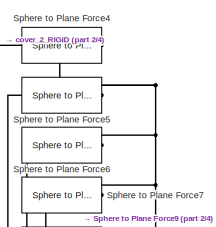
[diagram: root canvas - part 1/4, top center region]
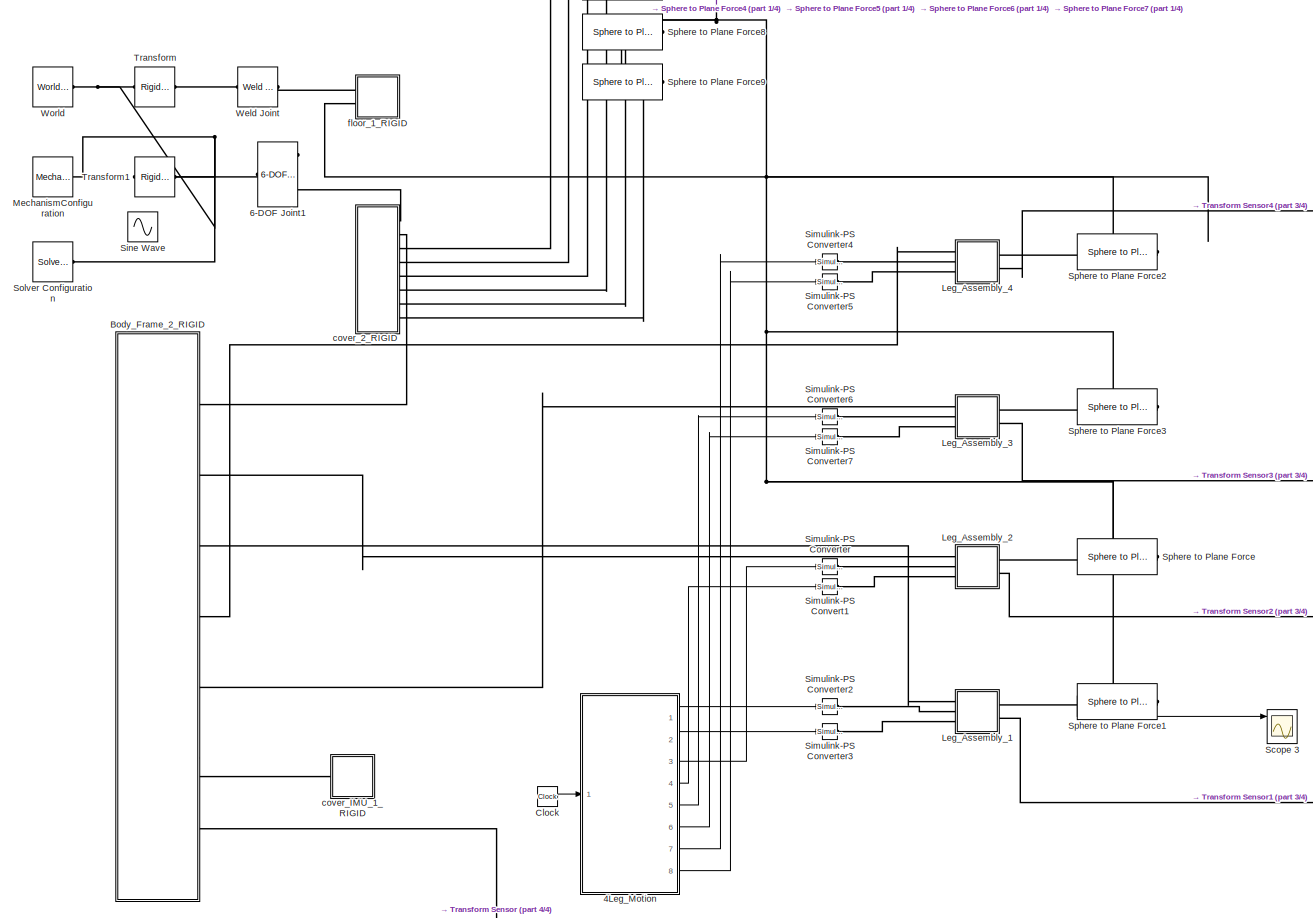
[diagram: root canvas - part 2/4, central region]
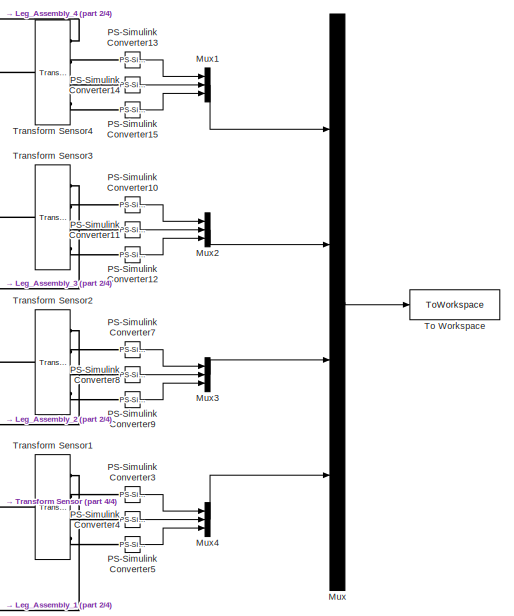
[diagram: root canvas - part 3/4, middle right region]
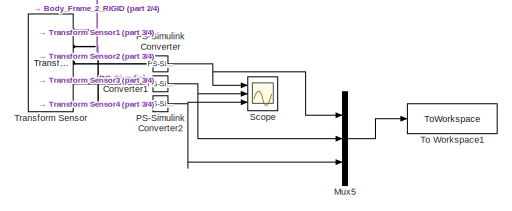
[diagram: root canvas - part 4/4, bottom center region]
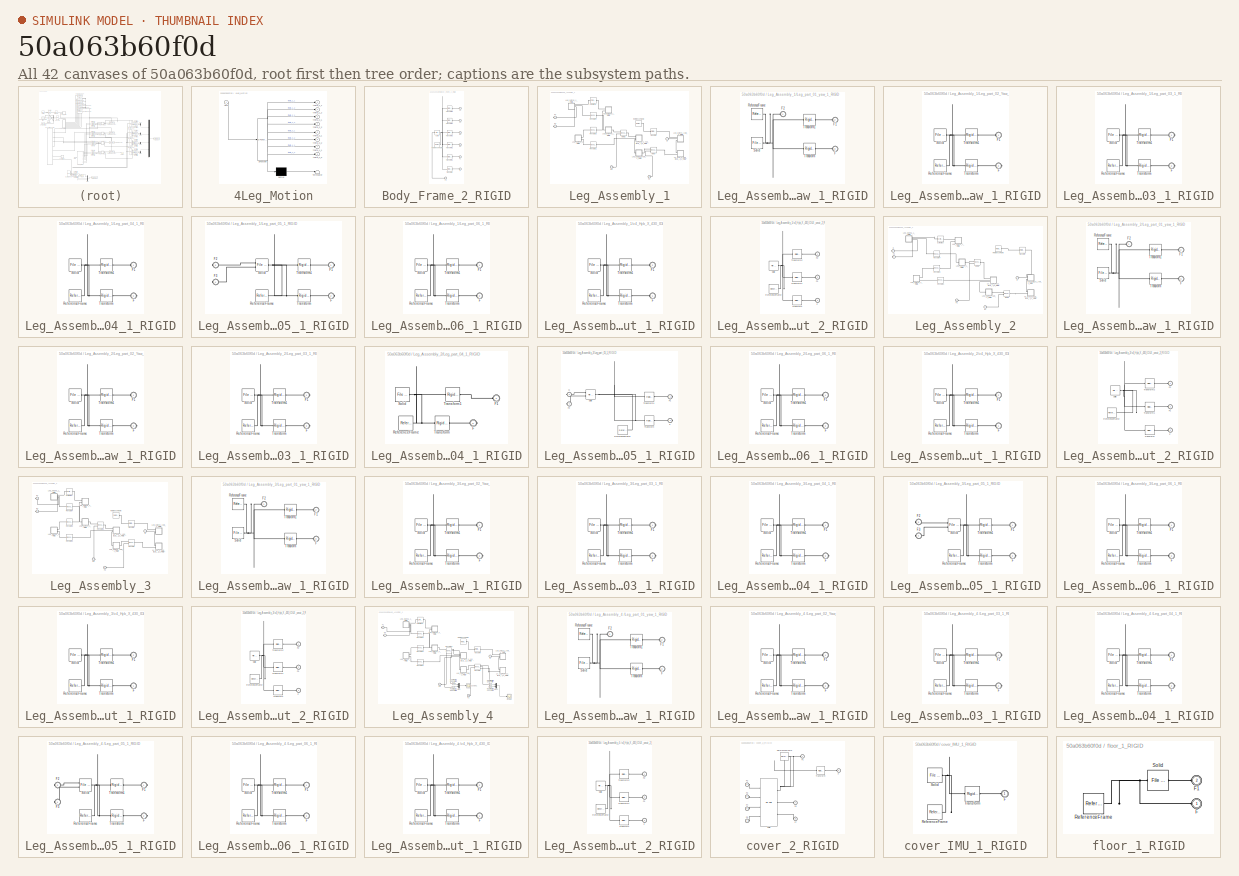
[diagram: thumbnail index - all 42 canvases of the model, root first then tree order]
MODEL slx_50a063b60f0d
KIND model
CONFIG AbsTol = auto
CONFIG EnableMultiTasking = off
CONFIG FixedStep = 0.001
CONFIG InitFcn = SnapbotParameters;
CONFIG MaxStep = auto
CONFIG MinStep = auto
CONFIG PreLoadFcn = startup_Contact_Forces;
CONFIG RelTol = 1e-3
CONFIG SampleTimeConstraint = Unconstrained
CONFIG Solver = FixedStepAuto
CONFIG SolverName = FixedStepAuto
CONFIG StartTime = 0.0
CONFIG StopFcn = plot3(out.simout.data(:,1),out.simout.data(:,2),out.simout.data(:,3))\nhold on;\nplot3(out.simout.data(:,4),out.simout.data(:,5),out.simout.data(:,6))\nplot3(out.simout.data(:,7),out.simout.data(:,8),out.simout.data(:,9))\nplot3(out.simout.data(:,10),out.simout.data(:,11),out.simout.data(:,12))\ngrid on\ngrid minor\naxis square\n\nview(2)
CONFIG StopTime = 10
WORKSPACE source: MATLAB code (in-file)
WORKSPACE code: smiData.RigidTransform(34).translation = [0.0 0.0 0.0];
WORKSPACE code: smiData.RigidTransform(34).angle = 0.0;
WORKSPACE code: smiData.RigidTransform(34).axis = [0.0 0.0 0.0];
WORKSPACE code: smiData.RigidTransform(34).ID = '';
WORKSPACE code: smiData.RigidTransform(1).translation = [0 0 3.5000000000000031];  % mm
WORKSPACE code: smiData.RigidTransform(1).angle = 0;  % rad
WORKSPACE code: smiData.RigidTransform(1).axis = [0 0 0];
WORKSPACE code: smiData.RigidTransform(1).ID = 'B[Leg_Assembly_Y-P:Leg_part_01_yaw-1:-:Leg_Assembly_Y-P:v4_Hyb_X-430_IDLE_uncut-1]';
WORKSPACE code: smiData.RigidTransform(2).translation = [-1.7352785874891197e-13 -35.250000000000064 1.6342482922482304e-13];  % mm
WORKSPACE code: smiData.RigidTransform(2).angle = 3.1415926535897931;  % rad
WORKSPACE code: smiData.RigidTransform(2).axis = [0 0.70710678118654746 0.70710678118654757];
WORKSPACE code: smiData.RigidTransform(2).ID = 'F[Leg_Assembly_Y-P:Leg_part_01_yaw-1:-:Leg_Assembly_Y-P:v4_Hyb_X-430_IDLE_uncut-1]';
WORKSPACE code: smiData.RigidTransform(3).translation = [18.999999999999989 0 -21.500000000000018];  % mm
WORKSPACE code: smiData.RigidTransform(3).angle = 2.0943951023931957;  % rad
WORKSPACE code: smiData.RigidTransform(3).axis = [0.57735026918962562 0.57735026918962584 0.57735026918962584];
WORKSPACE code: smiData.RigidTransform(3).ID = 'B[Leg_Assembly_Y-P:Leg_part_02_Yaw-1:-:Leg_Assembly_Y-P:v4_Hyb_X-430_IDLE_uncut-1]';
WORKSPACE code: smiData.RigidTransform(4).translation = [-1.5265566588595902e-12 -1.2221335055073723e-12 19.000000000000597];  % mm
WORKSPACE code: smiData.RigidTransform(4).angle = 4.7102773760513257e-16;  % rad
WORKSPACE code: smiData.RigidTransform(4).axis = [7.8504622934188734e-17 1 1.8488927466117461e-32];
WORKSPACE code: smiData.RigidTransform(4).ID = 'F[Leg_Assembly_Y-P:Leg_part_02_Yaw-1:-:Leg_Assembly_Y-P:v4_Hyb_X-430_IDLE_uncut-1]';
WORKSPACE code: smiData.RigidTransform(5).translation = [8.3000000000000025 6 -1.5000000000000013];  % mm
WORKSPACE code: smiData.RigidTransform(5).angle = 3.1415926535897931;  % rad
WORKSPACE code: smiData.RigidTransform(5).axis = [1 0 0];
WORKSPACE code: smiData.RigidTransform(5).ID = 'B[Leg_Assembly_Y-P:Leg_part_02_Yaw-1:-:Leg_Assembly_Y-P:v4_Hyb_X-430_IDLE_uncut-2]';
WORKSPACE code: smiData.RigidTransform(6).translation = [-8.0000000000000178 -36.75000000000005 6.0000000000000284];  % mm
WORKSPACE code: smiData.RigidTransform(6).angle = 3.1415926535897931;  % rad
WORKSPACE code: smiData.RigidTransform(6).axis = [-0 0.70710678118654757 -0.70710678118654746];
WORKSPACE code: smiData.RigidTransform(6).ID = 'F[Leg_Assembly_Y-P:Leg_part_02_Yaw-1:-:Leg_Assembly_Y-P:v4_Hyb_X-430_IDLE_uncut-2]';
WORKSPACE code: smiData.RigidTransform(7).translation = [-5.7500000000000053 17.750000000000004 20.999999999999993];  % mm
WORKSPACE code: smiData.RigidTransform(7).angle = 2.0943951023931953;  % rad
WORKSPACE code: smiData.RigidTransform(7).axis = [0.57735026918962584 -0.57735026918962584 0.57735026918962584];
WORKSPACE code: smiData.RigidTransform(7).ID = 'B[Leg_Assembly_Y-P:Leg_part_03-1:-:Leg_Assembly_Y-P:v4_Hyb_X-430_IDLE_uncut-2]';
WORKSPACE code: smiData.RigidTransform(8).translation = [-17.749999999998572 -3.9999999999999183 5.9999999999999556];  % mm
WORKSPACE code: smiData.RigidTransform(8).angle = 2.0943951023931953;  % rad
WORKSPACE code: smiData.RigidTransform(8).axis = [0.57735026918962584 0.57735026918962584 0.57735026918962584];
WORKSPACE code: smiData.RigidTransform(8).ID = 'F[Leg_Assembly_Y-P:Leg_part_03-1:-:Leg_Assembly_Y-P:v4_Hyb_X-430_IDLE_uncut-2]';
WORKSPACE code: smiData.RigidTransform(9).translation = [48 0 0];  % mm
WORKSPACE code: smiData.RigidTransform(9).angle = 2.0943951023931953;  % rad
WORKSPACE code: smiData.RigidTransform(9).axis = [-0.57735026918962584 -0.57735026918962584 0.57735026918962584];
WORKSPACE code: smiData.RigidTransform(9).ID = 'B[Leg_Assembly_Y-P:Leg_part_04-1:-:Leg_Assembly_Y-P:v4_Hyb_X-430_IDLE_uncut-2]';
WORKSPACE code: smiData.RigidTransform(10).translation = [-1.8746248997558723e-10 -7.7324813219092903e-12 24.00000000000599];  % mm
WORKSPACE code: smiData.RigidTransform(10).angle = 3.1415926535897927;  % rad
WORKSPACE code: smiData.RigidTransform(10).axis = [-1 -5.392603844284259e-33 2.7755575615628907e-17];
WORKSPACE code: smiData.RigidTransform(10).ID = 'F[Leg_Assembly_Y-P:Leg_part_04-1:-:Leg_Assembly_Y-P:v4_Hyb_X-430_IDLE_uncut-2]';
WORKSPACE code: smiData.RigidTransform(11).translation = [21.999999999999993 6.0000000000000124 -15.000000000000009];  % mm
WORKSPACE code: smiData.RigidTransform(11).angle = 0;  % rad
WORKSPACE code: smiData.RigidTransform(11).axis = [0 0 0];
WORKSPACE code: smiData.RigidTransform(11).ID = 'B[Leg_Assembly_Y-P:Leg_part_03-1:-:Leg_Assembly_Y-P:Leg_part_06-1]';
WORKSPACE code: smiData.RigidTransform(12).translation = [-25.499999999999105 -3.2214586553891422e-10 -47.43000000032751];  % mm
WORKSPACE code: smiData.RigidTransform(12).angle = 2.0943951023931828;  % rad
WORKSPACE code: smiData.RigidTransform(12).axis = [0.5773502691896234 0.57735026918962151 0.57735026918963239];
WORKSPACE code: smiData.RigidTransform(12).ID = 'F[Leg_Assembly_Y-P:Leg_part_03-1:-:Leg_Assembly_Y-P:Leg_part_06-1]';
WORKSPACE code: smiData.RigidTransform(13).translation = [18.500000000000004 0 0];  % mm
WORKSPACE code: smiData.RigidTransform(13).angle = 2.0943951023931957;  % rad
WORKSPACE code: smiData.RigidTransform(13).axis = [-0.57735026918962584 -0.57735026918962573 0.57735026918962573];
WORKSPACE code: smiData.RigidTransform(13).ID = 'B[Leg_Assembly_Y-P:Leg_part_05-1:-:Leg_Assembly_Y-P:Leg_part_04-1]';
WORKSPACE code: smiData.RigidTransform(14).translation = [5.4999999999949978 -8.3794303905713249e-10 -60.000000000037232];  % mm
WORKSPACE code: smiData.RigidTransform(14).angle = 2.0943951023931917;  % rad
WORKSPACE code: smiData.RigidTransform(14).axis = [0.57735026918961896 0.57735026918962451 0.57735026918963384];
WORKSPACE code: smiData.RigidTransform(14).ID = 'F[Leg_Assembly_Y-P:Leg_part_05-1:-:Leg_Assembly_Y-P:Leg_part_04-1]';
WORKSPACE code: smiData.RigidTransform(15).translation = [-4.5000000000000009 25.000000000000004 0];  % mm
WORKSPACE code: smiData.RigidTransform(15).angle = 2.0943951023931953;  % rad
WORKSPACE code: smiData.RigidTransform(15).axis = [-0.57735026918962584 -0.57735026918962584 0.57735026918962584];
WORKSPACE code: smiData.RigidTransform(15).ID = 'B[Leg_Assembly_Y-P:Leg_part_05-1:-:Leg_Assembly_Y-P:Leg_part_06-1]';
WORKSPACE code: smiData.RigidTransform(16).translation = [9.0000000000012914 1.0276604186564152e-10 7.8563660354995227e-11];  % mm
WORKSPACE code: smiData.RigidTransform(16).angle = 2.0943951023931957;  % rad
WORKSPACE code: smiData.RigidTransform(16).axis = [0.57735026918962573 0.57735026918962595 0.57735026918962562];
WORKSPACE code: smiData.RigidTransform(16).ID = 'F[Leg_Assembly_Y-P:Leg_part_05-1:-:Leg_Assembly_Y-P:Leg_part_06-1]';
WORKSPACE code: smiData.RigidTransform(17).translation = [-29.148138792437695 31.324765133364561 -50.486057334570788];  % mm
WORKSPACE code: smiData.RigidTransform(17).angle = 0.85969556486762955;  % rad
WORKSPACE code: smiData.RigidTransform(17).axis = [-0.88342402684813537 0.43430848851138693 -0.17589236934665334];
WORKSPACE code: smiData.RigidTransform(17).ID = 'B[Body_Frame-2:-:cover_IMU-1]';
WORKSPACE code: smiData.RigidTransform(18).translation = [-29.14813879243771 -3.6752348666354493 -50.486057334570788];  % mm
WORKSPACE code: smiData.RigidTransform(18).angle = 0.85969556486762955;  % rad
WORKSPACE code: smiData.RigidTransform(18).axis = [-0.88342402684813537 0.43430848851138693 -0.17589236934665334];
WORKSPACE code: smiData.RigidTransform(18).ID = 'F[Body_Frame-2:-:cover_IMU-1]';
WORKSPACE code: smiData.RigidTransform(19).translation = [-17.98437038909324 16.010419740604625 -58.898751217406286];  % mm
WORKSPACE code: smiData.RigidTransform(19).angle = 2.5668813081404753;  % rad
WORKSPACE code: smiData.RigidTransform(19).axis = [-0.54469904781872214 -0.67552162020226258 0.49696427230203144];
WORKSPACE code: smiData.RigidTransform(19).ID = 'B[Body_Frame-2:-:Leg_Assembly_Y-P-4:Leg_part_01_yaw-1]';
WORKSPACE code: smiData.RigidTransform(20).translation = [-13.874453980679554 8.010419740604668 -21.000000000000121];  % mm
WORKSPACE code: smiData.RigidTransform(20).angle = 1.5933089052267591;  % rad
WORKSPACE code: smiData.RigidTransform(20).axis = [0.454741574326607 0.14837486987204307 0.87817708838787945];
WORKSPACE code: smiData.RigidTransform(20).ID = 'F[Body_Frame-2:-:Leg_Assembly_Y-P-4:Leg_part_01_yaw-1]';
WORKSPACE code: smiData.RigidTransform(21).translation = [29.999999999999968 24.020839481209347 -51.961524227066349];  % mm
WORKSPACE code: smiData.RigidTransform(21).angle = 2.3875525638501713;  % rad
WORKSPACE code: smiData.RigidTransform(21).axis = [0.97769691900991618 0.078837114487629617 0.19466238449629056];
WORKSPACE code: smiData.RigidTransform(21).ID = 'B[Body_Frame-2:-:Leg_Assembly_Y-P-3:Leg_part_01_yaw-1]';
WORKSPACE code: smiData.RigidTransform(22).translation = [-2.6467716907063732e-13 16.020839481209734 -21.000000000000327];  % mm
WORKSPACE code: smiData.RigidTransform(22).angle = 2.8078721686781996;  % rad
WORKSPACE code: smiData.RigidTransform(22).axis = [0.061302152168851563 -0.3413768904692025 0.9379252980877768];
WORKSPACE code: smiData.RigidTransform(22).ID = 'F[Body_Frame-2:-:Leg_Assembly_Y-P-3:Leg_part_01_yaw-1]';
WORKSPACE code: smiData.RigidTransform(23).translation = [30.000000000000529 24.020839481209347 51.961524227066029];  % mm
WORKSPACE code: smiData.RigidTransform(23).angle = 0.85969556486763532;  % rad
WORKSPACE code: smiData.RigidTransform(23).axis = [0.88342402684813182 0.43430848851139281 0.17589236934665636];
WORKSPACE code: smiData.RigidTransform(23).ID = 'B[Body_Frame-2:-:Leg_Assembly_Y-P-2:Leg_part_01_yaw-1]';
WORKSPACE code: smiData.RigidTransform(24).translation = [3.3395508580724709e-13 16.020839481209283 -21.000000000000096];  % mm
WORKSPACE code: smiData.RigidTransform(24).angle = 0.78005530127659528;  % rad
WORKSPACE code: smiData.RigidTransform(24).axis = [0.88538441591606198 -0.1589913427291928 0.43682512403723089];
WORKSPACE code: smiData.RigidTransform(24).ID = 'F[Body_Frame-2:-:Leg_Assembly_Y-P-2:Leg_part_01_yaw-1]';
WORKSPACE code: smiData.RigidTransform(25).translation = [0 16.0208394812094 -21.000000000000004];  % mm
WORKSPACE code: smiData.RigidTransform(25).angle = 2.4434609527920594;  % rad
WORKSPACE code: smiData.RigidTransform(25).axis = [-1 -2.4245288061633076e-16 6.6613381477509383e-16];
WORKSPACE code: smiData.RigidTransform(25).ID = 'B[Leg_Assembly_Y-P-1:Leg_part_01_yaw-1:-:Body_Frame-2]';
WORKSPACE code: smiData.RigidTransform(26).translation = [-29.999999999999616 24.020839481209507 51.961524227066668];  % mm
WORKSPACE code: smiData.RigidTransform(26).angle = 2.4682098215588222;  % rad
WORKSPACE code: smiData.RigidTransform(26).axis = [-0.96166828182989783 -0.093787209197190524 -0.25767823950294055];
WORKSPACE code: smiData.RigidTransform(26).ID = 'F[Leg_Assembly_Y-P-1:Leg_part_01_yaw-1:-:Body_Frame-2]';
WORKSPACE code: smiData.RigidTransform(27).translation = [58.296277584874822 -3.6752348666354502 0];  % mm
WORKSPACE code: smiData.RigidTransform(27).angle = 1.750366012803156;  % rad
WORKSPACE code: smiData.RigidTransform(27).axis = [0.83481712947898612 0.38928162063502708 0.38928162063502636];
WORKSPACE code: smiData.RigidTransform(27).ID = 'B[cover-2:-:Body_Frame-2]';
WORKSPACE code: smiData.RigidTransform(28).translation = [-58.29627758487473 -15.324765133364487 1.1215639593173864e-12];  % mm
WORKSPACE code: smiData.RigidTransform(28).angle = 2.5346467848844099;  % rad
WORKSPACE code: smiData.RigidTransform(28).axis = [0.31314561301496879 -0.67154293423781619 -0.67154293423782185];
WORKSPACE code: smiData.RigidTransform(28).ID = 'F[cover-2:-:Body_Frame-2]';
WORKSPACE code: smiData.RigidTransform(29).translation = [-0.53570167355018738 37.318511693782625 54.569829435763872];  % mm
WORKSPACE code: smiData.RigidTransform(29).angle = 0;  % rad
WORKSPACE code: smiData.RigidTransform(29).axis = [0 0 0];
WORKSPACE code: smiData.RigidTransform(29).ID = 'AssemblyGround[Leg_Assembly_Y-P-1:Leg_part_01_yaw-1]';
WORKSPACE code: smiData.RigidTransform(30).translation = [-0.53570167355018394 37.318511693782625 54.569829435763872];  % mm
WORKSPACE code: smiData.RigidTransform(30).angle = 0;  % rad
WORKSPACE code: smiData.RigidTransform(30).axis = [0 0 0];
WORKSPACE code: smiData.RigidTransform(30).ID = 'AssemblyGround[Leg_Assembly_Y-P-3:Leg_part_01_yaw-1]';
WORKSPACE code: smiData.RigidTransform(31).translation = [-0.53570167355018217 37.318511693782625 54.56982943576385];  % mm
WORKSPACE code: smiData.RigidTransform(31).angle = 0;  % rad
WORKSPACE code: smiData.RigidTransform(31).axis = [0 0 0];
WORKSPACE code: smiData.RigidTransform(31).ID = 'AssemblyGround[Leg_Assembly_Y-P-4:Leg_part_01_yaw-1]';
WORKSPACE code: smiData.RigidTransform(32).translation = [-0.53570167355018561 37.318511693782625 54.569829435763886];  % mm
WORKSPACE code: smiData.RigidTransform(32).angle = 0;  % rad
WORKSPACE code: smiData.RigidTransform(32).axis = [0 0 0];
WORKSPACE code: smiData.RigidTransform(32).ID = 'AssemblyGround[Leg_Assembly_Y-P-2:Leg_part_01_yaw-1]';
WORKSPACE code: smiData.RigidTransform(33).translation = [16.947427364988048 -132.5 -0.35447398452139084];  % mm
WORKSPACE code: smiData.RigidTransform(33).angle = 0;  % rad
WORKSPACE code: smiData.RigidTransform(33).axis = [0 0 0];
WORKSPACE code: smiData.RigidTransform(33).ID = 'RootGround[floor-1]';
WORKSPACE code: smiData.RigidTransform(34).translation = [2.4083582801206584 -17.449369734884318 -0.97062236223489184];  % mm
WORKSPACE code: smiData.RigidTransform(34).angle = 3.1415926535897927;  % rad
WORKSPACE code: smiData.RigidTransform(34).axis = [-1.8561360843499775e-09 2.3245294513264802e-16 1];
WORKSPACE code: smiData.RigidTransform(34).ID = 'SixDofRigidTransform[cover-2]';
WORKSPACE code: smiData.Solid(11).mass = 0.0;
WORKSPACE code: smiData.Solid(11).CoM = [0.0 0.0 0.0];
WORKSPACE code: smiData.Solid(11).MoI = [0.0 0.0 0.0];
WORKSPACE code: smiData.Solid(11).PoI = [0.0 0.0 0.0];
WORKSPACE code: smiData.Solid(11).color = [0.0 0.0 0.0];
WORKSPACE code: smiData.Solid(11).opacity = 0.0;
WORKSPACE code: smiData.Solid(11).ID = '';
WORKSPACE code: smiData.Solid(1).mass = 0.011859040673008397;  % kg
WORKSPACE code: smiData.Solid(1).CoM = [9.2568952005630604e-05 1.191765890643393 -6.4265217754949023e-05];  % mm
WORKSPACE code: smiData.Solid(1).MoI = [12.336903139260382 24.543407766477525 12.336924066027152];  % kg*mm^2
WORKSPACE code: smiData.Solid(1).PoI = [1.0093449377553896e-06 3.0788090295607977e-05 -1.064469578641841e-06];  % kg*mm^2
WORKSPACE code: smiData.Solid(1).color = [0.792156862745098 0.81960784313725488 0.93333333333333335];
WORKSPACE code: smiData.Solid(1).opacity = 1;
WORKSPACE code: smiData.Solid(1).ID = 'cover*:*Default';
WORKSPACE code: smiData.Solid(2).mass = 0.012023631787858334;  % kg
WORKSPACE code: smiData.Solid(2).CoM = [-0.29734349259876186 1.2054189328895923 0.00017861160100909334];  % mm
WORKSPACE code: smiData.Solid(2).MoI = [12.313344376366921 24.562977425030333 12.378785765398183];  % kg*mm^2
WORKSPACE code: smiData.Solid(2).PoI = [1.0647394470527272e-05 -8.7602005901832794e-05 0.00062815776109033676];  % kg*mm^2
WORKSPACE code: smiData.Solid(2).color = [0.792156862745098 0.81960784313725488 0.93333333333333335];
WORKSPACE code: smiData.Solid(2).opacity = 1;
WORKSPACE code: smiData.Solid(2).ID = 'cover_IMU*:*Default';
WORKSPACE code: smiData.Solid(3).mass = 0.01532092516699415;  % kg
WORKSPACE code: smiData.Solid(3).CoM = [23.99999768920209 1.296167806282416 -35.100094443023529];  % mm
WORKSPACE code: smiData.Solid(3).MoI = [10.22123294031608 14.203511884952171 5.0157635391797406];  % kg*mm^2
WORKSPACE code: smiData.Solid(3).PoI = [0.58071119483444822 9.2473756106630214e-07 -5.4914041407852197e-06];  % kg*mm^2
WORKSPACE code: smiData.Solid(3).color = [1 0.38823529411764707 0.41960784313725491];
WORKSPACE code: smiData.Solid(3).opacity = 1;
WORKSPACE code: smiData.Solid(3).ID = 'Leg_part_04*:*Default';
WORKSPACE code: smiData.Solid(4).mass = 0.022715083434313929;  % kg
WORKSPACE code: smiData.Solid(4).CoM = [4.7495790017590746e-05 -5.291488289899466e-07 0.51650579217012571];  % mm
WORKSPACE code: smiData.Solid(4).MoI = [6.0201227624572118 7.3567997591054697 10.813457729002581];  % kg*mm^2
WORKSPACE code: smiData.Solid(4).PoI = [5.9445977678909571e-08 -2.8721317733849146e-06 -2.6844578170485016e-06];  % kg*mm^2
WORKSPACE code: smiData.Solid(4).color = [0.027450980392156862 1 0.027450980392156862];
WORKSPACE code: smiData.Solid(4).opacity = 1;
WORKSPACE code: smiData.Solid(4).ID = 'Leg_part_02_Yaw*:*Default';
WORKSPACE code: smiData.Solid(5).mass = 0.0061788723822202912;  % kg
WORKSPACE code: smiData.Solid(5).CoM = [4.2543802409912486 -4.6300920972242539 -20.149819352752832];  % mm
WORKSPACE code: smiData.Solid(5).MoI = [2.2893274182864185 2.0053458866812135 0.35993641872183124];  % kg*mm^2
WORKSPACE code: smiData.Solid(5).PoI = [0.20173149787382891 -0.0054107076234519375 0.0070268738351532264];  % kg*mm^2
WORKSPACE code: smiData.Solid(5).color = [0.8666666666666667 0.46666666666666667 0.094117647058823528];
WORKSPACE code: smiData.Solid(5).opacity = 1;
WORKSPACE code: smiData.Solid(5).ID = 'Leg_part_06*:*Default';
WORKSPACE code: smiData.Solid(6).mass = 0.022008322051922567;  % kg
WORKSPACE code: smiData.Solid(6).CoM = [-0.00020078562164607593 -0.086645709821882896 -7.0226871847428294];  % mm
WORKSPACE code: smiData.Solid(6).MoI = [6.5441760223709844 5.812065440337185 5.5882327823375331];  % kg*mm^2
WORKSPACE code: smiData.Solid(6).PoI = [-0.022603449848343178 -3.3526868327938216e-05 -5.8881839764321484e-05];  % kg*mm^2
WORKSPACE code: smiData.Solid(6).color = [0.9882352941176471 0.73725490196078436 0.51764705882352935];
WORKSPACE code: smiData.Solid(6).opacity = 1;
WORKSPACE code: smiData.Solid(6).ID = 'Leg_part_01_yaw*:*Default';
WORKSPACE code: smiData.Solid(7).mass = 0.015928924279537775;  % kg
WORKSPACE code: smiData.Solid(7).CoM = [5.5724533955433548 0.60923661115773253 14.965495324586268];  % mm
WORKSPACE code: smiData.Solid(7).MoI = [6.7178267454302487 3.3961346093070595 5.3516535264104625];  % kg*mm^2
WORKSPACE code: smiData.Solid(7).PoI = [0.0029589860947701109 0.0090414356066351384 -0.14024072638650095];  % kg*mm^2
WORKSPACE code: smiData.Solid(7).color = [0.50196078431372548 1 1];
WORKSPACE code: smiData.Solid(7).opacity = 1;
WORKSPACE code: smiData.Solid(7).ID = 'Leg_part_03*:*Default';
WORKSPACE code: smiData.Solid(8).mass = 0.014765646142892601;  % kg
WORKSPACE code: smiData.Solid(8).CoM = [1.2086758180566385e-05 38.516029865216893 1.6102137949923504e-05];  % mm
WORKSPACE code: smiData.Solid(8).MoI = [11.438112427079185 0.88080259805912409 11.92628093115035];  % kg*mm^2
WORKSPACE code: smiData.Solid(8).PoI = [1.3310978325613474e-06 5.7966270338224739e-06 1.0118234092923484e-06];  % kg*mm^2
WORKSPACE code: smiData.Solid(8).color = [0.039215686274509803 0.63137254901960782 0.90588235294117647];
WORKSPACE code: smiData.Solid(8).opacity = 1;
WORKSPACE code: smiData.Solid(8).ID = 'Leg_part_05*:*Default';
WORKSPACE code: smiData.Solid(9).mass = 0.043283962506312147;  % kg
WORKSPACE code: smiData.Solid(9).CoM = [0 -11.629154441205351 0.58622657822569424];  % mm
WORKSPACE code: smiData.Solid(9).MoI = [11.945660403890638 6.9373449472329343 10.473897647404554];  % kg*mm^2
WORKSPACE code: smiData.Solid(9).PoI = [-0.010479195470367004 0 0];  % kg*mm^2
WORKSPACE code: smiData.Solid(9).color = [0.50196078431372548 0.50196078431372548 0.50196078431372548];
WORKSPACE code: smiData.Solid(9).opacity = 1;
WORKSPACE code: smiData.Solid(9).ID = 'v4_Hyb_X-430_IDLE_uncut*:*Default';
WORKSPACE code: smiData.Solid(10).mass = 0.06914285683427808;  % kg
WORKSPACE code: smiData.Solid(10).CoM = [-6.5363881170266666e-08 8.0286872966298493 -0.84505300940729655];  % mm
WORKSPACE code: smiData.Solid(10).MoI = [133.83817269769423 248.31514966138266 134.30804068565411];  % kg*mm^2
WORKSPACE code: smiData.Solid(10).PoI = [0.10611953301327913 3.6362610588971529e-07 -3.5551675916145607e-07];  % kg*mm^2
WORKSPACE code: smiData.Solid(10).color = [0.75294117647058822 0.75294117647058822 0.75294117647058822];
WORKSPACE code: smiData.Solid(10).opacity = 1;
WORKSPACE code: smiData.Solid(10).ID = 'Body_Frame*:*Default';
WORKSPACE code: smiData.Solid(11).mass = 49.999999999999993;  % kg
WORKSPACE code: smiData.Solid(11).CoM = [0 25.000000000000004 0];  % mm
WORKSPACE code: smiData.Solid(11).MoI = [4177083.333333334 8333333.3333333358 4177083.333333333];  % kg*mm^2
WORKSPACE code: smiData.Solid(11).PoI = [0 -7.6327832942979522e-10 0];  % kg*mm^2
WORKSPACE code: smiData.Solid(11).color = [0.792156862745098 0.81960784313725488 0.93333333333333335];
WORKSPACE code: smiData.Solid(11).opacity = 1;
WORKSPACE code: smiData.Solid(11).ID = 'floor*:*Default';
WORKSPACE code: smiData.CylindricalJoint(4).Rz.Pos = 0.0;
WORKSPACE code: smiData.CylindricalJoint(4).Pz.Pos = 0.0;
WORKSPACE code: smiData.CylindricalJoint(4).ID = '';
WORKSPACE code: smiData.CylindricalJoint(1).Rz.Pos = -40.005411760834875;  % deg
WORKSPACE code: smiData.CylindricalJoint(1).Pz.Pos = 0;  % mm
WORKSPACE code: smiData.CylindricalJoint(1).ID = '[Leg_Assembly_Y-P-1:Leg_part_05-1:-:Leg_Assembly_Y-P-1:Leg_part_06-1]';
WORKSPACE code: smiData.CylindricalJoint(2).Rz.Pos = -40.005411760841149;  % deg
WORKSPACE code: smiData.CylindricalJoint(2).Pz.Pos = 0;  % mm
WORKSPACE code: smiData.CylindricalJoint(2).ID = '[Leg_Assembly_Y-P-3:Leg_part_05-1:-:Leg_Assembly_Y-P-3:Leg_part_06-1]';
WORKSPACE code: smiData.CylindricalJoint(3).Rz.Pos = -40.005411760676694;  % deg
WORKSPACE code: smiData.CylindricalJoint(3).Pz.Pos = 0;  % mm
WORKSPACE code: smiData.CylindricalJoint(3).ID = '[Leg_Assembly_Y-P-4:Leg_part_05-1:-:Leg_Assembly_Y-P-4:Leg_part_06-1]';
WORKSPACE code: smiData.CylindricalJoint(4).Rz.Pos = -40.00541176081142;  % deg
WORKSPACE code: smiData.CylindricalJoint(4).Pz.Pos = 0;  % mm
WORKSPACE code: smiData.CylindricalJoint(4).ID = '[Leg_Assembly_Y-P-2:Leg_part_05-1:-:Leg_Assembly_Y-P-2:Leg_part_06-1]';
WORKSPACE code: smiData.RevoluteJoint(20).Rz.Pos = 0.0;
WORKSPACE code: smiData.RevoluteJoint(20).ID = '';
WORKSPACE code: smiData.RevoluteJoint(1).Rz.Pos = 8.9959671327898853e-15;  % deg
WORKSPACE code: smiData.RevoluteJoint(1).ID = '[Leg_Assembly_Y-P-1:Leg_part_02_Yaw-1:-:Leg_Assembly_Y-P-1:v4_Hyb_X-430_IDLE_uncut-1]';
WORKSPACE code: smiData.RevoluteJoint(2).Rz.Pos = -90;  % deg
WORKSPACE code: smiData.RevoluteJoint(2).ID = '[Leg_Assembly_Y-P-1:Leg_part_03-1:-:Leg_Assembly_Y-P-1:v4_Hyb_X-430_IDLE_uncut-2]';
WORKSPACE code: smiData.RevoluteJoint(3).Rz.Pos = 180;  % deg
WORKSPACE code: smiData.RevoluteJoint(3).ID = '[Leg_Assembly_Y-P-1:Leg_part_04-1:-:Leg_Assembly_Y-P-1:v4_Hyb_X-430_IDLE_uncut-2]';
WORKSPACE code: smiData.RevoluteJoint(4).Rz.Pos = -130.80925683646444;  % deg
WORKSPACE code: smiData.RevoluteJoint(4).ID = '[Leg_Assembly_Y-P-1:Leg_part_03-1:-:Leg_Assembly_Y-P-1:Leg_part_06-1]';
WORKSPACE code: smiData.RevoluteJoint(5).Rz.Pos = -179.19615492437049;  % deg
WORKSPACE code: smiData.RevoluteJoint(5).ID = '[Leg_Assembly_Y-P-1:Leg_part_05-1:-:Leg_Assembly_Y-P-1:Leg_part_04-1]';
WORKSPACE code: smiData.RevoluteJoint(6).Rz.Pos = 9.6985521658607794e-11;  % deg
WORKSPACE code: smiData.RevoluteJoint(6).ID = '[Leg_Assembly_Y-P-3:Leg_part_02_Yaw-1:-:Leg_Assembly_Y-P-3:v4_Hyb_X-430_IDLE_uncut-1]';
WORKSPACE code: smiData.RevoluteJoint(7).Rz.Pos = -90.000000000000014;  % deg
WORKSPACE code: smiData.RevoluteJoint(7).ID = '[Leg_Assembly_Y-P-3:Leg_part_03-1:-:Leg_Assembly_Y-P-3:v4_Hyb_X-430_IDLE_uncut-2]';
WORKSPACE code: smiData.RevoluteJoint(8).Rz.Pos = -179.99999999998752;  % deg
WORKSPACE code: smiData.RevoluteJoint(8).ID = '[Leg_Assembly_Y-P-3:Leg_part_04-1:-:Leg_Assembly_Y-P-3:v4_Hyb_X-430_IDLE_uncut-2]';
WORKSPACE code: smiData.RevoluteJoint(9).Rz.Pos = -130.80925683643747;  % deg
WORKSPACE code: smiData.RevoluteJoint(9).ID = '[Leg_Assembly_Y-P-3:Leg_part_03-1:-:Leg_Assembly_Y-P-3:Leg_part_06-1]';
WORKSPACE code: smiData.RevoluteJoint(10).Rz.Pos = -179.19615492439118;  % deg
WORKSPACE code: smiData.RevoluteJoint(10).ID = '[Leg_Assembly_Y-P-3:Leg_part_05-1:-:Leg_Assembly_Y-P-3:Leg_part_04-1]';
WORKSPACE code: smiData.RevoluteJoint(11).Rz.Pos = 1.7991934265579774e-14;  % deg
WORKSPACE code: smiData.RevoluteJoint(11).ID = '[Leg_Assembly_Y-P-4:Leg_part_02_Yaw-1:-:Leg_Assembly_Y-P-4:v4_Hyb_X-430_IDLE_uncut-1]';
WORKSPACE code: smiData.RevoluteJoint(12).Rz.Pos = -90;  % deg
WORKSPACE code: smiData.RevoluteJoint(12).ID = '[Leg_Assembly_Y-P-4:Leg_part_03-1:-:Leg_Assembly_Y-P-4:v4_Hyb_X-430_IDLE_uncut-2]';
WORKSPACE code: smiData.RevoluteJoint(13).Rz.Pos = 179.99999999960033;  % deg
WORKSPACE code: smiData.RevoluteJoint(13).ID = '[Leg_Assembly_Y-P-4:Leg_part_04-1:-:Leg_Assembly_Y-P-4:v4_Hyb_X-430_IDLE_uncut-2]';
WORKSPACE code: smiData.RevoluteJoint(14).Rz.Pos = -130.80925683712383;  % deg
WORKSPACE code: smiData.RevoluteJoint(14).ID = '[Leg_Assembly_Y-P-4:Leg_part_03-1:-:Leg_Assembly_Y-P-4:Leg_part_06-1]';
WORKSPACE code: smiData.RevoluteJoint(15).Rz.Pos = -179.19615492395255;  % deg
WORKSPACE code: smiData.RevoluteJoint(15).ID = '[Leg_Assembly_Y-P-4:Leg_part_05-1:-:Leg_Assembly_Y-P-4:Leg_part_04-1]';
WORKSPACE code: smiData.RevoluteJoint(16).Rz.Pos = 8.9959671327898869e-15;  % deg
WORKSPACE code: smiData.RevoluteJoint(16).ID = '[Leg_Assembly_Y-P-2:Leg_part_02_Yaw-1:-:Leg_Assembly_Y-P-2:v4_Hyb_X-430_IDLE_uncut-1]';
WORKSPACE code: smiData.RevoluteJoint(17).Rz.Pos = -90;  % deg
WORKSPACE code: smiData.RevoluteJoint(17).ID = '[Leg_Assembly_Y-P-2:Leg_part_03-1:-:Leg_Assembly_Y-P-2:v4_Hyb_X-430_IDLE_uncut-2]';
WORKSPACE code: smiData.RevoluteJoint(18).Rz.Pos = 180;  % deg
WORKSPACE code: smiData.RevoluteJoint(18).ID = '[Leg_Assembly_Y-P-2:Leg_part_04-1:-:Leg_Assembly_Y-P-2:v4_Hyb_X-430_IDLE_uncut-2]';
WORKSPACE code: smiData.RevoluteJoint(19).Rz.Pos = -130.80925683656244;  % deg
WORKSPACE code: smiData.RevoluteJoint(19).ID = '[Leg_Assembly_Y-P-2:Leg_part_03-1:-:Leg_Assembly_Y-P-2:Leg_part_06-1]';
WORKSPACE code: smiData.RevoluteJoint(20).Rz.Pos = -179.19615492424902;  % deg
WORKSPACE code: smiData.RevoluteJoint(20).ID = '[Leg_Assembly_Y-P-2:Leg_part_05-1:-:Leg_Assembly_Y-P-2:Leg_part_04-1]';
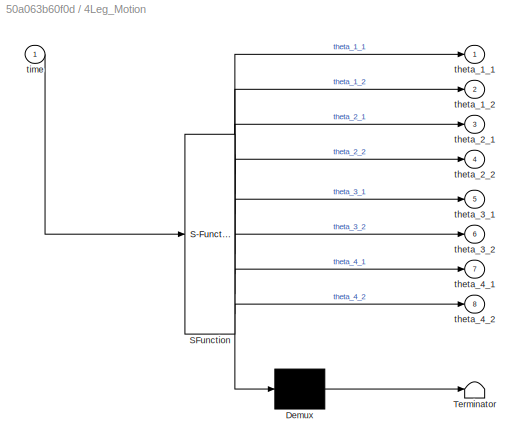
BLOCK [SubSystem] 4Leg_Motion
  ErrorFcn = Stateflow.Translate.translate
  PermitHierarchicalResolution = ExplicitOnly
  Ports = [1, 8]
  RequestExecContextInheritance = off
  SFBlockType = MATLAB Function
  TreatAsAtomicUnit = on
BLOCK [Demux] 4Leg_Motion/ Demux 
  Outputs = 1
  Ports = [1, 1]
BLOCK [S-Function] 4Leg_Motion/ SFunction 
  EnableBusSupport = on
  FunctionName = sf_sfun
  PortCounts = [1 9]
  Ports = [1, 9]
  SFcnIsStateOwnerBlock = off
  SFunctionDeploymentMode = off
  Tag = Stateflow S-Function 2
BLOCK [Terminator] 4Leg_Motion/ Terminator 
BLOCK [Outport] 4Leg_Motion/theta_1_1
  IconDisplay = Port number
BLOCK [Outport] 4Leg_Motion/theta_1_2
  IconDisplay = Port number
  Port = 2
BLOCK [Outport] 4Leg_Motion/theta_2_1
  IconDisplay = Port number
  Port = 3
BLOCK [Outport] 4Leg_Motion/theta_2_2
  IconDisplay = Port number
  Port = 4
BLOCK [Outport] 4Leg_Motion/theta_3_1
  IconDisplay = Port number
  Port = 5
BLOCK [Outport] 4Leg_Motion/theta_3_2
  IconDisplay = Port number
  Port = 6
BLOCK [Outport] 4Leg_Motion/theta_4_1
  IconDisplay = Port number
  Port = 7
BLOCK [Outport] 4Leg_Motion/theta_4_2
  IconDisplay = Port number
  Port = 8
BLOCK [Inport] 4Leg_Motion/time
  IconDisplay = Port number
BLOCK [Reference] 6-DOF Joint1  REF=sm_lib/Joints/6-DOF Joint
  Ports = [0, 0, 0, 0, 0, 1, 4]
  SourceBlock = sm_lib/Joints/6-DOF Joint
  SourceProductBaseCode = MS
  SourceProductName = Simscape Multibody
  SourceType = 6-DOF Joint
BLOCK [SubSystem] Body_Frame_2_RIGID
  Ports = [0, 0, 0, 0, 0, 7]
  RequestExecContextInheritance = off
BLOCK [PMIOPort] Body_Frame_2_RIGID/F
  Port = 6
  Side = Left
BLOCK [PMIOPort] Body_Frame_2_RIGID/F1
  Port = 5
  Side = Left
BLOCK [PMIOPort] Body_Frame_2_RIGID/F2
  Port = 4
  Side = Left
BLOCK [PMIOPort] Body_Frame_2_RIGID/F3
  Port = 3
  Side = Left
BLOCK [PMIOPort] Body_Frame_2_RIGID/F4
  Port = 2
  Side = Left
BLOCK [PMIOPort] Body_Frame_2_RIGID/F5
  Side = Left
BLOCK [PMIOPort] Body_Frame_2_RIGID/F6
  Port = 7
  Side = Left
BLOCK [Reference] Body_Frame_2_RIGID/ReferenceFrame  REF=sm_lib/Frames and
Transforms/Reference
Frame
  Ports = [0, 0, 0, 0, 0, 0, 1]
  SourceBlock = sm_lib/Frames and\nTransforms/Reference\nFrame
  SourceProductBaseCode = MS
  SourceProductName = Simscape Multibody
  SourceType = Reference\nFrame
BLOCK [Reference] Body_Frame_2_RIGID/Solid  REF=sm_lib/Body Elements/File Solid
  Ports = [0, 0, 0, 0, 0, 1, 1]
  SourceBlock = sm_lib/Body Elements/File Solid
  SourceProductBaseCode = MS
  SourceProductName = Simscape Multibody
  SourceType = File Solid
BLOCK [Reference] Body_Frame_2_RIGID/Transform  REF=sm_lib/Frames and
Transforms/Rigid
Transform
  Ports = [0, 0, 0, 0, 0, 1, 1]
  SourceBlock = sm_lib/Frames and\nTransforms/Rigid\nTransform
  SourceProductBaseCode = MS
  SourceProductName = Simscape Multibody
  SourceType = Rigid\nTransform
BLOCK [Reference] Body_Frame_2_RIGID/Transform1  REF=sm_lib/Frames and
Transforms/Rigid
Transform
  Ports = [0, 0, 0, 0, 0, 1, 1]
  SourceBlock = sm_lib/Frames and\nTransforms/Rigid\nTransform
  SourceProductBaseCode = MS
  SourceProductName = Simscape Multibody
  SourceType = Rigid\nTransform
BLOCK [Reference] Body_Frame_2_RIGID/Transform2  REF=sm_lib/Frames and
Transforms/Rigid
Transform
  Ports = [0, 0, 0, 0, 0, 1, 1]
  SourceBlock = sm_lib/Frames and\nTransforms/Rigid\nTransform
  SourceProductBaseCode = MS
  SourceProductName = Simscape Multibody
  SourceType = Rigid\nTransform
BLOCK [Reference] Body_Frame_2_RIGID/Transform3  REF=sm_lib/Frames and
Transforms/Rigid
Transform
  Ports = [0, 0, 0, 0, 0, 1, 1]
  SourceBlock = sm_lib/Frames and\nTransforms/Rigid\nTransform
  SourceProductBaseCode = MS
  SourceProductName = Simscape Multibody
  SourceType = Rigid\nTransform
BLOCK [Reference] Body_Frame_2_RIGID/Transform4  REF=sm_lib/Frames and
Transforms/Rigid
Transform
  Ports = [0, 0, 0, 0, 0, 1, 1]
  SourceBlock = sm_lib/Frames and\nTransforms/Rigid\nTransform
  SourceProductBaseCode = MS
  SourceProductName = Simscape Multibody
  SourceType = Rigid\nTransform
BLOCK [Reference] Body_Frame_2_RIGID/Transform5  REF=sm_lib/Frames and
Transforms/Rigid
Transform
  Ports = [0, 0, 0, 0, 0, 1, 1]
  SourceBlock = sm_lib/Frames and\nTransforms/Rigid\nTransform
  SourceProductBaseCode = MS
  SourceProductName = Simscape Multibody
  SourceType = Rigid\nTransform
BLOCK [Clock] Clock
BLOCK [SubSystem] Leg_Assembly_1
  Ports = [0, 0, 0, 0, 0, 3, 2]
  RequestExecContextInheritance = off
BLOCK [Reference] Leg_Assembly_1/Cylindrical  REF=sm_lib/Joints/Cylindrical
Joint
  Ports = [0, 0, 0, 0, 0, 1, 1]
  SourceBlock = sm_lib/Joints/Cylindrical\nJoint
  SourceProductBaseCode = MS
  SourceProductName = Simscape Multibody
  SourceType = Cylindrical\nJoint
BLOCK [PMIOPort] Leg_Assembly_1/F
  Side = Left
BLOCK [PMIOPort] Leg_Assembly_1/F1
  Port = 2
  Side = Right
BLOCK [PMIOPort] Leg_Assembly_1/F2
  Port = 3
  Side = Left
BLOCK [PMIOPort] Leg_Assembly_1/F3
  Port = 4
  Side = Left
BLOCK [PMIOPort] Leg_Assembly_1/F4
  Port = 5
  Side = Right
BLOCK [SubSystem] Leg_Assembly_1/Leg_part_01_yaw_1_RIGID
  Ports = [0, 0, 0, 0, 0, 3]
  RequestExecContextInheritance = off
BLOCK [PMIOPort] Leg_Assembly_1/Leg_part_01_yaw_1_RIGID/F
  Port = 3
  Side = Left
BLOCK [PMIOPort] Leg_Assembly_1/Leg_part_01_yaw_1_RIGID/F1
  Port = 2
  Side = Left
BLOCK [PMIOPort] Leg_Assembly_1/Leg_part_01_yaw_1_RIGID/F2
  Side = Left
BLOCK [Reference] Leg_Assembly_1/Leg_part_01_yaw_1_RIGID/ReferenceFrame  REF=sm_lib/Frames and
Transforms/Reference
Frame
  Ports = [0, 0, 0, 0, 0, 0, 1]
  SourceBlock = sm_lib/Frames and\nTransforms/Reference\nFrame
  SourceProductBaseCode = MS
  SourceProductName = Simscape Multibody
  SourceType = Reference\nFrame
BLOCK [Reference] Leg_Assembly_1/Leg_part_01_yaw_1_RIGID/Solid  REF=sm_lib/Body Elements/File Solid
  Ports = [0, 0, 0, 0, 0, 0, 1]
  SourceBlock = sm_lib/Body Elements/File Solid
  SourceProductBaseCode = MS
  SourceProductName = Simscape Multibody
  SourceType = File Solid
BLOCK [Reference] Leg_Assembly_1/Leg_part_01_yaw_1_RIGID/Transform  REF=sm_lib/Frames and
Transforms/Rigid
Transform
  Ports = [0, 0, 0, 0, 0, 1, 1]
  SourceBlock = sm_lib/Frames and\nTransforms/Rigid\nTransform
  SourceProductBaseCode = MS
  SourceProductName = Simscape Multibody
  SourceType = Rigid\nTransform
BLOCK [Reference] Leg_Assembly_1/Leg_part_01_yaw_1_RIGID/Transform1  REF=sm_lib/Frames and
Transforms/Rigid
Transform
  Ports = [0, 0, 0, 0, 0, 1, 1]
  SourceBlock = sm_lib/Frames and\nTransforms/Rigid\nTransform
  SourceProductBaseCode = MS
  SourceProductName = Simscape Multibody
  SourceType = Rigid\nTransform
BLOCK [SubSystem] Leg_Assembly_1/Leg_part_02_Yaw_1_RIGID
  Ports = [0, 0, 0, 0, 0, 1, 1]
  RequestExecContextInheritance = off
BLOCK [PMIOPort] Leg_Assembly_1/Leg_part_02_Yaw_1_RIGID/F
  Port = 2
  Side = Right
BLOCK [PMIOPort] Leg_Assembly_1/Leg_part_02_Yaw_1_RIGID/F1
  Side = Left
BLOCK [Reference] Leg_Assembly_1/Leg_part_02_Yaw_1_RIGID/ReferenceFrame  REF=sm_lib/Frames and
Transforms/Reference
Frame
  Ports = [0, 0, 0, 0, 0, 0, 1]
  SourceBlock = sm_lib/Frames and\nTransforms/Reference\nFrame
  SourceProductBaseCode = MS
  SourceProductName = Simscape Multibody
  SourceType = Reference\nFrame
BLOCK [Reference] Leg_Assembly_1/Leg_part_02_Yaw_1_RIGID/Solid  REF=sm_lib/Body Elements/File Solid
  Ports = [0, 0, 0, 0, 0, 0, 1]
  SourceBlock = sm_lib/Body Elements/File Solid
  SourceProductBaseCode = MS
  SourceProductName = Simscape Multibody
  SourceType = File Solid
BLOCK [Reference] Leg_Assembly_1/Leg_part_02_Yaw_1_RIGID/Transform  REF=sm_lib/Frames and
Transforms/Rigid
Transform
  Ports = [0, 0, 0, 0, 0, 1, 1]
  SourceBlock = sm_lib/Frames and\nTransforms/Rigid\nTransform
  SourceProductBaseCode = MS
  SourceProductName = Simscape Multibody
  SourceType = Rigid\nTransform
BLOCK [Reference] Leg_Assembly_1/Leg_part_02_Yaw_1_RIGID/Transform1  REF=sm_lib/Frames and
Transforms/Rigid
Transform
  Ports = [0, 0, 0, 0, 0, 1, 1]
  SourceBlock = sm_lib/Frames and\nTransforms/Rigid\nTransform
  SourceProductBaseCode = MS
  SourceProductName = Simscape Multibody
  SourceType = Rigid\nTransform
BLOCK [SubSystem] Leg_Assembly_1/Leg_part_03_1_RIGID
  Ports = [0, 0, 0, 0, 0, 0, 2]
  RequestExecContextInheritance = off
BLOCK [PMIOPort] Leg_Assembly_1/Leg_part_03_1_RIGID/F
  Port = 2
  Side = Right
BLOCK [PMIOPort] Leg_Assembly_1/Leg_part_03_1_RIGID/F1
  Side = Right
BLOCK [Reference] Leg_Assembly_1/Leg_part_03_1_RIGID/ReferenceFrame  REF=sm_lib/Frames and
Transforms/Reference
Frame
  Ports = [0, 0, 0, 0, 0, 0, 1]
  SourceBlock = sm_lib/Frames and\nTransforms/Reference\nFrame
  SourceProductBaseCode = MS
  SourceProductName = Simscape Multibody
  SourceType = Reference\nFrame
BLOCK [Reference] Leg_Assembly_1/Leg_part_03_1_RIGID/Solid  REF=sm_lib/Body Elements/File Solid
  Ports = [0, 0, 0, 0, 0, 0, 1]
  SourceBlock = sm_lib/Body Elements/File Solid
  SourceProductBaseCode = MS
  SourceProductName = Simscape Multibody
  SourceType = File Solid
BLOCK [Reference] Leg_Assembly_1/Leg_part_03_1_RIGID/Transform  REF=sm_lib/Frames and
Transforms/Rigid
Transform
  Ports = [0, 0, 0, 0, 0, 1, 1]
  SourceBlock = sm_lib/Frames and\nTransforms/Rigid\nTransform
  SourceProductBaseCode = MS
  SourceProductName = Simscape Multibody
  SourceType = Rigid\nTransform
BLOCK [Reference] Leg_Assembly_1/Leg_part_03_1_RIGID/Transform1  REF=sm_lib/Frames and
Transforms/Rigid
Transform
  Ports = [0, 0, 0, 0, 0, 1, 1]
  SourceBlock = sm_lib/Frames and\nTransforms/Rigid\nTransform
  SourceProductBaseCode = MS
  SourceProductName = Simscape Multibody
  SourceType = Rigid\nTransform
BLOCK [SubSystem] Leg_Assembly_1/Leg_part_04_1_RIGID
  Ports = [0, 0, 0, 0, 0, 1, 1]
  RequestExecContextInheritance = off
BLOCK [PMIOPort] Leg_Assembly_1/Leg_part_04_1_RIGID/F
  Port = 2
  Side = Right
BLOCK [PMIOPort] Leg_Assembly_1/Leg_part_04_1_RIGID/F1
  Side = Left
BLOCK [Reference] Leg_Assembly_1/Leg_part_04_1_RIGID/ReferenceFrame  REF=sm_lib/Frames and
Transforms/Reference
Frame
  Ports = [0, 0, 0, 0, 0, 0, 1]
  SourceBlock = sm_lib/Frames and\nTransforms/Reference\nFrame
  SourceProductBaseCode = MS
  SourceProductName = Simscape Multibody
  SourceType = Reference\nFrame
BLOCK [Reference] Leg_Assembly_1/Leg_part_04_1_RIGID/Solid  REF=sm_lib/Body Elements/File Solid
  Ports = [0, 0, 0, 0, 0, 0, 1]
  SourceBlock = sm_lib/Body Elements/File Solid
  SourceProductBaseCode = MS
  SourceProductName = Simscape Multibody
  SourceType = File Solid
BLOCK [Reference] Leg_Assembly_1/Leg_part_04_1_RIGID/Transform  REF=sm_lib/Frames and
Transforms/Rigid
Transform
  Ports = [0, 0, 0, 0, 0, 1, 1]
  SourceBlock = sm_lib/Frames and\nTransforms/Rigid\nTransform
  SourceProductBaseCode = MS
  SourceProductName = Simscape Multibody
  SourceType = Rigid\nTransform
BLOCK [Reference] Leg_Assembly_1/Leg_part_04_1_RIGID/Transform1  REF=sm_lib/Frames and
Transforms/Rigid
Transform
  Ports = [0, 0, 0, 0, 0, 1, 1]
  SourceBlock = sm_lib/Frames and\nTransforms/Rigid\nTransform
  SourceProductBaseCode = MS
  SourceProductName = Simscape Multibody
  SourceType = Rigid\nTransform
BLOCK [SubSystem] Leg_Assembly_1/Leg_part_05_1_RIGID
  Ports = [0, 0, 0, 0, 0, 0, 4]
  RequestExecContextInheritance = off
BLOCK [PMIOPort] Leg_Assembly_1/Leg_part_05_1_RIGID/F
  Port = 2
  Side = Right
BLOCK [PMIOPort] Leg_Assembly_1/Leg_part_05_1_RIGID/F1
  Side = Right
BLOCK [PMIOPort] Leg_Assembly_1/Leg_part_05_1_RIGID/F2
  Port = 3
  Side = Right
BLOCK [PMIOPort] Leg_Assembly_1/Leg_part_05_1_RIGID/F3
  Port = 4
  Side = Right
BLOCK [Reference] Leg_Assembly_1/Leg_part_05_1_RIGID/ReferenceFrame  REF=sm_lib/Frames and
Transforms/Reference
Frame
  Ports = [0, 0, 0, 0, 0, 0, 1]
  SourceBlock = sm_lib/Frames and\nTransforms/Reference\nFrame
  SourceProductBaseCode = MS
  SourceProductName = Simscape Multibody
  SourceType = Reference\nFrame
BLOCK [Reference] Leg_Assembly_1/Leg_part_05_1_RIGID/Solid  REF=sm_lib/Body Elements/File Solid
  Ports = [0, 0, 0, 0, 0, 2, 1]
  SourceBlock = sm_lib/Body Elements/File Solid
  SourceProductBaseCode = MS
  SourceProductName = Simscape Multibody
  SourceType = File Solid
BLOCK [Reference] Leg_Assembly_1/Leg_part_05_1_RIGID/Transform  REF=sm_lib/Frames and
Transforms/Rigid
Transform
  Ports = [0, 0, 0, 0, 0, 1, 1]
  SourceBlock = sm_lib/Frames and\nTransforms/Rigid\nTransform
  SourceProductBaseCode = MS
  SourceProductName = Simscape Multibody
  SourceType = Rigid\nTransform
BLOCK [Reference] Leg_Assembly_1/Leg_part_05_1_RIGID/Transform1  REF=sm_lib/Frames and
Transforms/Rigid
Transform
  Ports = [0, 0, 0, 0, 0, 1, 1]
  SourceBlock = sm_lib/Frames and\nTransforms/Rigid\nTransform
  SourceProductBaseCode = MS
  SourceProductName = Simscape Multibody
  SourceType = Rigid\nTransform
BLOCK [SubSystem] Leg_Assembly_1/Leg_part_06_1_RIGID
  Ports = [0, 0, 0, 0, 0, 2]
  RequestExecContextInheritance = off
BLOCK [PMIOPort] Leg_Assembly_1/Leg_part_06_1_RIGID/F
  Port = 2
  Side = Left
BLOCK [PMIOPort] Leg_Assembly_1/Leg_part_06_1_RIGID/F1
  Side = Left
BLOCK [Reference] Leg_Assembly_1/Leg_part_06_1_RIGID/ReferenceFrame  REF=sm_lib/Frames and
Transforms/Reference
Frame
  Ports = [0, 0, 0, 0, 0, 0, 1]
  SourceBlock = sm_lib/Frames and\nTransforms/Reference\nFrame
  SourceProductBaseCode = MS
  SourceProductName = Simscape Multibody
  SourceType = Reference\nFrame
BLOCK [Reference] Leg_Assembly_1/Leg_part_06_1_RIGID/Solid  REF=sm_lib/Body Elements/File Solid
  Ports = [0, 0, 0, 0, 0, 0, 1]
  SourceBlock = sm_lib/Body Elements/File Solid
  SourceProductBaseCode = MS
  SourceProductName = Simscape Multibody
  SourceType = File Solid
BLOCK [Reference] Leg_Assembly_1/Leg_part_06_1_RIGID/Transform  REF=sm_lib/Frames and
Transforms/Rigid
Transform
  Ports = [0, 0, 0, 0, 0, 1, 1]
  SourceBlock = sm_lib/Frames and\nTransforms/Rigid\nTransform
  SourceProductBaseCode = MS
  SourceProductName = Simscape Multibody
  SourceType = Rigid\nTransform
BLOCK [Reference] Leg_Assembly_1/Leg_part_06_1_RIGID/Transform1  REF=sm_lib/Frames and
Transforms/Rigid
Transform
  Ports = [0, 0, 0, 0, 0, 1, 1]
  SourceBlock = sm_lib/Frames and\nTransforms/Rigid\nTransform
  SourceProductBaseCode = MS
  SourceProductName = Simscape Multibody
  SourceType = Rigid\nTransform
BLOCK [Reference] Leg_Assembly_1/Motor  REF=sm_lib/Joints/Revolute Joint
  Ports = [0, 0, 0, 0, 0, 2, 1]
  SourceBlock = sm_lib/Joints/Revolute Joint
  SourceProductBaseCode = MS
  SourceProductName = Simscape Multibody
  SourceType = Revolute Joint
BLOCK [Reference] Leg_Assembly_1/Motor2  REF=sm_lib/Joints/Revolute Joint
  Ports = [0, 0, 0, 0, 0, 2, 1]
  SourceBlock = sm_lib/Joints/Revolute Joint
  SourceProductBaseCode = MS
  SourceProductName = Simscape Multibody
  SourceType = Revolute Joint
BLOCK [Reference] Leg_Assembly_1/ReferenceFrame  REF=sm_lib/Frames and
Transforms/Reference
Frame
  Ports = [0, 0, 0, 0, 0, 0, 1]
  SourceBlock = sm_lib/Frames and\nTransforms/Reference\nFrame
  SourceProductBaseCode = MS
  SourceProductName = Simscape Multibody
  SourceType = Reference\nFrame
BLOCK [Reference] Leg_Assembly_1/Revolute1  REF=sm_lib/Joints/Revolute Joint
  Ports = [0, 0, 0, 0, 0, 1, 1]
  SourceBlock = sm_lib/Joints/Revolute Joint
  SourceProductBaseCode = MS
  SourceProductName = Simscape Multibody
  SourceType = Revolute Joint
BLOCK [Reference] Leg_Assembly_1/Revolute3  REF=sm_lib/Joints/Revolute Joint
  Ports = [0, 0, 0, 0, 0, 1, 1]
  SourceBlock = sm_lib/Joints/Revolute Joint
  SourceProductBaseCode = MS
  SourceProductName = Simscape Multibody
  SourceType = Revolute Joint
BLOCK [Reference] Leg_Assembly_1/Revolute4  REF=sm_lib/Joints/Revolute Joint
  Ports = [0, 0, 0, 0, 0, 1, 1]
  SourceBlock = sm_lib/Joints/Revolute Joint
  SourceProductBaseCode = MS
  SourceProductName = Simscape Multibody
  SourceType = Revolute Joint
BLOCK [Reference] Leg_Assembly_1/Transform  REF=sm_lib/Frames and
Transforms/Rigid
Transform
  Ports = [0, 0, 0, 0, 0, 1, 1]
  SourceBlock = sm_lib/Frames and\nTransforms/Rigid\nTransform
  SourceProductBaseCode = MS
  SourceProductName = Simscape Multibody
  SourceType = Rigid\nTransform
BLOCK [SubSystem] Leg_Assembly_1/v4_Hyb_X_430_IDLE_uncut_1_RIGID
  Ports = [0, 0, 0, 0, 0, 2]
  RequestExecContextInheritance = off
BLOCK [PMIOPort] Leg_Assembly_1/v4_Hyb_X_430_IDLE_uncut_1_RIGID/F
  Side = Left
BLOCK [PMIOPort] Leg_Assembly_1/v4_Hyb_X_430_IDLE_uncut_1_RIGID/F1
  Port = 2
  Side = Left
BLOCK [Reference] Leg_Assembly_1/v4_Hyb_X_430_IDLE_uncut_1_RIGID/ReferenceFrame  REF=sm_lib/Frames and
Transforms/Reference
Frame
  Ports = [0, 0, 0, 0, 0, 0, 1]
  SourceBlock = sm_lib/Frames and\nTransforms/Reference\nFrame
  SourceProductBaseCode = MS
  SourceProductName = Simscape Multibody
  SourceType = Reference\nFrame
BLOCK [Reference] Leg_Assembly_1/v4_Hyb_X_430_IDLE_uncut_1_RIGID/Solid  REF=sm_lib/Body Elements/File Solid
  Ports = [0, 0, 0, 0, 0, 0, 1]
  SourceBlock = sm_lib/Body Elements/File Solid
  SourceProductBaseCode = MS
  SourceProductName = Simscape Multibody
  SourceType = File Solid
BLOCK [Reference] Leg_Assembly_1/v4_Hyb_X_430_IDLE_uncut_1_RIGID/Transform  REF=sm_lib/Frames and
Transforms/Rigid
Transform
  Ports = [0, 0, 0, 0, 0, 1, 1]
  SourceBlock = sm_lib/Frames and\nTransforms/Rigid\nTransform
  SourceProductBaseCode = MS
  SourceProductName = Simscape Multibody
  SourceType = Rigid\nTransform
BLOCK [Reference] Leg_Assembly_1/v4_Hyb_X_430_IDLE_uncut_1_RIGID/Transform1  REF=sm_lib/Frames and
Transforms/Rigid
Transform
  Ports = [0, 0, 0, 0, 0, 1, 1]
  SourceBlock = sm_lib/Frames and\nTransforms/Rigid\nTransform
  SourceProductBaseCode = MS
  SourceProductName = Simscape Multibody
  SourceType = Rigid\nTransform
BLOCK [SubSystem] Leg_Assembly_1/v4_Hyb_X_430_IDLE_uncut_2_RIGID
  Ports = [0, 0, 0, 0, 0, 3]
  RequestExecContextInheritance = off
BLOCK [PMIOPort] Leg_Assembly_1/v4_Hyb_X_430_IDLE_uncut_2_RIGID/F
  Port = 3
  Side = Left
BLOCK [PMIOPort] Leg_Assembly_1/v4_Hyb_X_430_IDLE_uncut_2_RIGID/F1
  Port = 2
  Side = Left
BLOCK [PMIOPort] Leg_Assembly_1/v4_Hyb_X_430_IDLE_uncut_2_RIGID/F2
  Side = Left
BLOCK [Reference] Leg_Assembly_1/v4_Hyb_X_430_IDLE_uncut_2_RIGID/ReferenceFrame  REF=sm_lib/Frames and
Transforms/Reference
Frame
  Ports = [0, 0, 0, 0, 0, 0, 1]
  SourceBlock = sm_lib/Frames and\nTransforms/Reference\nFrame
  SourceProductBaseCode = MS
  SourceProductName = Simscape Multibody
  SourceType = Reference\nFrame
BLOCK [Reference] Leg_Assembly_1/v4_Hyb_X_430_IDLE_uncut_2_RIGID/Solid  REF=sm_lib/Body Elements/File Solid
  Ports = [0, 0, 0, 0, 0, 1, 1]
  SourceBlock = sm_lib/Body Elements/File Solid
  SourceProductBaseCode = MS
  SourceProductName = Simscape Multibody
  SourceType = File Solid
BLOCK [Reference] Leg_Assembly_1/v4_Hyb_X_430_IDLE_uncut_2_RIGID/Transform  REF=sm_lib/Frames and
Transforms/Rigid
Transform
  Ports = [0, 0, 0, 0, 0, 1, 1]
  SourceBlock = sm_lib/Frames and\nTransforms/Rigid\nTransform
  SourceProductBaseCode = MS
  SourceProductName = Simscape Multibody
  SourceType = Rigid\nTransform
BLOCK [Reference] Leg_Assembly_1/v4_Hyb_X_430_IDLE_uncut_2_RIGID/Transform1  REF=sm_lib/Frames and
Transforms/Rigid
Transform
  Ports = [0, 0, 0, 0, 0, 1, 1]
  SourceBlock = sm_lib/Frames and\nTransforms/Rigid\nTransform
  SourceProductBaseCode = MS
  SourceProductName = Simscape Multibody
  SourceType = Rigid\nTransform
BLOCK [Reference] Leg_Assembly_1/v4_Hyb_X_430_IDLE_uncut_2_RIGID/Transform2  REF=sm_lib/Frames and
Transforms/Rigid
Transform
  Ports = [0, 0, 0, 0, 0, 1, 1]
  SourceBlock = sm_lib/Frames and\nTransforms/Rigid\nTransform
  SourceProductBaseCode = MS
  SourceProductName = Simscape Multibody
  SourceType = Rigid\nTransform
BLOCK [SubSystem] Leg_Assembly_2
  Ports = [0, 0, 0, 0, 0, 3, 2]
  RequestExecContextInheritance = off
BLOCK [Reference] Leg_Assembly_2/Cylindrical  REF=sm_lib/Joints/Cylindrical
Joint
  Ports = [0, 0, 0, 0, 0, 1, 1]
  SourceBlock = sm_lib/Joints/Cylindrical\nJoint
  SourceProductBaseCode = MS
  SourceProductName = Simscape Multibody
  SourceType = Cylindrical\nJoint
BLOCK [PMIOPort] Leg_Assembly_2/F
  Side = Left
BLOCK [PMIOPort] Leg_Assembly_2/F1
  Port = 3
  Side = Left
BLOCK [PMIOPort] Leg_Assembly_2/F2
  Port = 4
  Side = Left
BLOCK [PMIOPort] Leg_Assembly_2/F3
  Port = 5
  Side = Right
BLOCK [PMIOPort] Leg_Assembly_2/G
  Port = 2
  Side = Right
BLOCK [SubSystem] Leg_Assembly_2/Leg_part_01_yaw_1_RIGID
  Ports = [0, 0, 0, 0, 0, 3]
  RequestExecContextInheritance = off
BLOCK [PMIOPort] Leg_Assembly_2/Leg_part_01_yaw_1_RIGID/F
  Port = 3
  Side = Left
BLOCK [PMIOPort] Leg_Assembly_2/Leg_part_01_yaw_1_RIGID/F1
  Port = 2
  Side = Left
BLOCK [PMIOPort] Leg_Assembly_2/Leg_part_01_yaw_1_RIGID/F2
  Side = Left
BLOCK [Reference] Leg_Assembly_2/Leg_part_01_yaw_1_RIGID/ReferenceFrame  REF=sm_lib/Frames and
Transforms/Reference
Frame
  Ports = [0, 0, 0, 0, 0, 0, 1]
  SourceBlock = sm_lib/Frames and\nTransforms/Reference\nFrame
  SourceProductBaseCode = MS
  SourceProductName = Simscape Multibody
  SourceType = Reference\nFrame
BLOCK [Reference] Leg_Assembly_2/Leg_part_01_yaw_1_RIGID/Solid  REF=sm_lib/Body Elements/File Solid
  Ports = [0, 0, 0, 0, 0, 0, 1]
  SourceBlock = sm_lib/Body Elements/File Solid
  SourceProductBaseCode = MS
  SourceProductName = Simscape Multibody
  SourceType = File Solid
BLOCK [Reference] Leg_Assembly_2/Leg_part_01_yaw_1_RIGID/Transform  REF=sm_lib/Frames and
Transforms/Rigid
Transform
  Ports = [0, 0, 0, 0, 0, 1, 1]
  SourceBlock = sm_lib/Frames and\nTransforms/Rigid\nTransform
  SourceProductBaseCode = MS
  SourceProductName = Simscape Multibody
  SourceType = Rigid\nTransform
BLOCK [Reference] Leg_Assembly_2/Leg_part_01_yaw_1_RIGID/Transform1  REF=sm_lib/Frames and
Transforms/Rigid
Transform
  Ports = [0, 0, 0, 0, 0, 1, 1]
  SourceBlock = sm_lib/Frames and\nTransforms/Rigid\nTransform
  SourceProductBaseCode = MS
  SourceProductName = Simscape Multibody
  SourceType = Rigid\nTransform
BLOCK [SubSystem] Leg_Assembly_2/Leg_part_02_Yaw_1_RIGID
  Ports = [0, 0, 0, 0, 0, 1, 1]
  RequestExecContextInheritance = off
BLOCK [PMIOPort] Leg_Assembly_2/Leg_part_02_Yaw_1_RIGID/F
  Port = 2
  Side = Right
BLOCK [PMIOPort] Leg_Assembly_2/Leg_part_02_Yaw_1_RIGID/F1
  Side = Left
BLOCK [Reference] Leg_Assembly_2/Leg_part_02_Yaw_1_RIGID/ReferenceFrame  REF=sm_lib/Frames and
Transforms/Reference
Frame
  Ports = [0, 0, 0, 0, 0, 0, 1]
  SourceBlock = sm_lib/Frames and\nTransforms/Reference\nFrame
  SourceProductBaseCode = MS
  SourceProductName = Simscape Multibody
  SourceType = Reference\nFrame
BLOCK [Reference] Leg_Assembly_2/Leg_part_02_Yaw_1_RIGID/Solid  REF=sm_lib/Body Elements/File Solid
  Ports = [0, 0, 0, 0, 0, 0, 1]
  SourceBlock = sm_lib/Body Elements/File Solid
  SourceProductBaseCode = MS
  SourceProductName = Simscape Multibody
  SourceType = File Solid
BLOCK [Reference] Leg_Assembly_2/Leg_part_02_Yaw_1_RIGID/Transform  REF=sm_lib/Frames and
Transforms/Rigid
Transform
  Ports = [0, 0, 0, 0, 0, 1, 1]
  SourceBlock = sm_lib/Frames and\nTransforms/Rigid\nTransform
  SourceProductBaseCode = MS
  SourceProductName = Simscape Multibody
  SourceType = Rigid\nTransform
BLOCK [Reference] Leg_Assembly_2/Leg_part_02_Yaw_1_RIGID/Transform1  REF=sm_lib/Frames and
Transforms/Rigid
Transform
  Ports = [0, 0, 0, 0, 0, 1, 1]
  SourceBlock = sm_lib/Frames and\nTransforms/Rigid\nTransform
  SourceProductBaseCode = MS
  SourceProductName = Simscape Multibody
  SourceType = Rigid\nTransform
BLOCK [SubSystem] Leg_Assembly_2/Leg_part_03_1_RIGID
  Ports = [0, 0, 0, 0, 0, 0, 2]
  RequestExecContextInheritance = off
BLOCK [PMIOPort] Leg_Assembly_2/Leg_part_03_1_RIGID/F
  Port = 2
  Side = Right
BLOCK [PMIOPort] Leg_Assembly_2/Leg_part_03_1_RIGID/F1
  Side = Right
BLOCK [Reference] Leg_Assembly_2/Leg_part_03_1_RIGID/ReferenceFrame  REF=sm_lib/Frames and
Transforms/Reference
Frame
  Ports = [0, 0, 0, 0, 0, 0, 1]
  SourceBlock = sm_lib/Frames and\nTransforms/Reference\nFrame
  SourceProductBaseCode = MS
  SourceProductName = Simscape Multibody
  SourceType = Reference\nFrame
BLOCK [Reference] Leg_Assembly_2/Leg_part_03_1_RIGID/Solid  REF=sm_lib/Body Elements/File Solid
  Ports = [0, 0, 0, 0, 0, 0, 1]
  SourceBlock = sm_lib/Body Elements/File Solid
  SourceProductBaseCode = MS
  SourceProductName = Simscape Multibody
  SourceType = File Solid
BLOCK [Reference] Leg_Assembly_2/Leg_part_03_1_RIGID/Transform  REF=sm_lib/Frames and
Transforms/Rigid
Transform
  Ports = [0, 0, 0, 0, 0, 1, 1]
  SourceBlock = sm_lib/Frames and\nTransforms/Rigid\nTransform
  SourceProductBaseCode = MS
  SourceProductName = Simscape Multibody
  SourceType = Rigid\nTransform
BLOCK [Reference] Leg_Assembly_2/Leg_part_03_1_RIGID/Transform1  REF=sm_lib/Frames and
Transforms/Rigid
Transform
  Ports = [0, 0, 0, 0, 0, 1, 1]
  SourceBlock = sm_lib/Frames and\nTransforms/Rigid\nTransform
  SourceProductBaseCode = MS
  SourceProductName = Simscape Multibody
  SourceType = Rigid\nTransform
BLOCK [SubSystem] Leg_Assembly_2/Leg_part_04_1_RIGID
  Ports = [0, 0, 0, 0, 0, 1, 1]
  RequestExecContextInheritance = off
BLOCK [PMIOPort] Leg_Assembly_2/Leg_part_04_1_RIGID/F
  Port = 2
  Side = Right
BLOCK [PMIOPort] Leg_Assembly_2/Leg_part_04_1_RIGID/F1
  Side = Left
BLOCK [Reference] Leg_Assembly_2/Leg_part_04_1_RIGID/ReferenceFrame  REF=sm_lib/Frames and
Transforms/Reference
Frame
  Ports = [0, 0, 0, 0, 0, 0, 1]
  SourceBlock = sm_lib/Frames and\nTransforms/Reference\nFrame
  SourceProductBaseCode = MS
  SourceProductName = Simscape Multibody
  SourceType = Reference\nFrame
BLOCK [Reference] Leg_Assembly_2/Leg_part_04_1_RIGID/Solid  REF=sm_lib/Body Elements/File Solid
  Ports = [0, 0, 0, 0, 0, 0, 1]
  SourceBlock = sm_lib/Body Elements/File Solid
  SourceProductBaseCode = MS
  SourceProductName = Simscape Multibody
  SourceType = File Solid
BLOCK [Reference] Leg_Assembly_2/Leg_part_04_1_RIGID/Transform  REF=sm_lib/Frames and
Transforms/Rigid
Transform
  Ports = [0, 0, 0, 0, 0, 1, 1]
  SourceBlock = sm_lib/Frames and\nTransforms/Rigid\nTransform
  SourceProductBaseCode = MS
  SourceProductName = Simscape Multibody
  SourceType = Rigid\nTransform
BLOCK [Reference] Leg_Assembly_2/Leg_part_04_1_RIGID/Transform1  REF=sm_lib/Frames and
Transforms/Rigid
Transform
  Ports = [0, 0, 0, 0, 0, 1, 1]
  SourceBlock = sm_lib/Frames and\nTransforms/Rigid\nTransform
  SourceProductBaseCode = MS
  SourceProductName = Simscape Multibody
  SourceType = Rigid\nTransform
BLOCK [SubSystem] Leg_Assembly_2/Leg_part_05_1_RIGID
  Ports = [0, 0, 0, 0, 0, 0, 4]
  RequestExecContextInheritance = off
BLOCK [PMIOPort] Leg_Assembly_2/Leg_part_05_1_RIGID/F
  Port = 2
  Side = Right
BLOCK [PMIOPort] Leg_Assembly_2/Leg_part_05_1_RIGID/F1
  Side = Right
BLOCK [PMIOPort] Leg_Assembly_2/Leg_part_05_1_RIGID/F2
  Port = 4
  Side = Right
BLOCK [PMIOPort] Leg_Assembly_2/Leg_part_05_1_RIGID/G
  Port = 3
  Side = Right
BLOCK [Reference] Leg_Assembly_2/Leg_part_05_1_RIGID/ReferenceFrame  REF=sm_lib/Frames and
Transforms/Reference
Frame
  Ports = [0, 0, 0, 0, 0, 0, 1]
  SourceBlock = sm_lib/Frames and\nTransforms/Reference\nFrame
  SourceProductBaseCode = MS
  SourceProductName = Simscape Multibody
  SourceType = Reference\nFrame
BLOCK [Reference] Leg_Assembly_2/Leg_part_05_1_RIGID/Solid  REF=sm_lib/Body Elements/File Solid
  Ports = [0, 0, 0, 0, 0, 2, 1]
  SourceBlock = sm_lib/Body Elements/File Solid
  SourceProductBaseCode = MS
  SourceProductName = Simscape Multibody
  SourceType = File Solid
BLOCK [Reference] Leg_Assembly_2/Leg_part_05_1_RIGID/Transform  REF=sm_lib/Frames and
Transforms/Rigid
Transform
  Ports = [0, 0, 0, 0, 0, 1, 1]
  SourceBlock = sm_lib/Frames and\nTransforms/Rigid\nTransform
  SourceProductBaseCode = MS
  SourceProductName = Simscape Multibody
  SourceType = Rigid\nTransform
BLOCK [Reference] Leg_Assembly_2/Leg_part_05_1_RIGID/Transform1  REF=sm_lib/Frames and
Transforms/Rigid
Transform
  Ports = [0, 0, 0, 0, 0, 1, 1]
  SourceBlock = sm_lib/Frames and\nTransforms/Rigid\nTransform
  SourceProductBaseCode = MS
  SourceProductName = Simscape Multibody
  SourceType = Rigid\nTransform
BLOCK [SubSystem] Leg_Assembly_2/Leg_part_06_1_RIGID
  Ports = [0, 0, 0, 0, 0, 2]
  RequestExecContextInheritance = off
BLOCK [PMIOPort] Leg_Assembly_2/Leg_part_06_1_RIGID/F
  Port = 2
  Side = Left
BLOCK [PMIOPort] Leg_Assembly_2/Leg_part_06_1_RIGID/F1
  Side = Left
BLOCK [Reference] Leg_Assembly_2/Leg_part_06_1_RIGID/ReferenceFrame  REF=sm_lib/Frames and
Transforms/Reference
Frame
  Ports = [0, 0, 0, 0, 0, 0, 1]
  SourceBlock = sm_lib/Frames and\nTransforms/Reference\nFrame
  SourceProductBaseCode = MS
  SourceProductName = Simscape Multibody
  SourceType = Reference\nFrame
BLOCK [Reference] Leg_Assembly_2/Leg_part_06_1_RIGID/Solid  REF=sm_lib/Body Elements/File Solid
  Ports = [0, 0, 0, 0, 0, 0, 1]
  SourceBlock = sm_lib/Body Elements/File Solid
  SourceProductBaseCode = MS
  SourceProductName = Simscape Multibody
  SourceType = File Solid
BLOCK [Reference] Leg_Assembly_2/Leg_part_06_1_RIGID/Transform  REF=sm_lib/Frames and
Transforms/Rigid
Transform
  Ports = [0, 0, 0, 0, 0, 1, 1]
  SourceBlock = sm_lib/Frames and\nTransforms/Rigid\nTransform
  SourceProductBaseCode = MS
  SourceProductName = Simscape Multibody
  SourceType = Rigid\nTransform
BLOCK [Reference] Leg_Assembly_2/Leg_part_06_1_RIGID/Transform1  REF=sm_lib/Frames and
Transforms/Rigid
Transform
  Ports = [0, 0, 0, 0, 0, 1, 1]
  SourceBlock = sm_lib/Frames and\nTransforms/Rigid\nTransform
  SourceProductBaseCode = MS
  SourceProductName = Simscape Multibody
  SourceType = Rigid\nTransform
BLOCK [Reference] Leg_Assembly_2/Motor1  REF=sm_lib/Joints/Revolute Joint
  Ports = [0, 0, 0, 0, 0, 2, 1]
  SourceBlock = sm_lib/Joints/Revolute Joint
  SourceProductBaseCode = MS
  SourceProductName = Simscape Multibody
  SourceType = Revolute Joint
BLOCK [Reference] Leg_Assembly_2/Motor2  REF=sm_lib/Joints/Revolute Joint
  Ports = [0, 0, 0, 0, 0, 2, 1]
  SourceBlock = sm_lib/Joints/Revolute Joint
  SourceProductBaseCode = MS
  SourceProductName = Simscape Multibody
  SourceType = Revolute Joint
BLOCK [Reference] Leg_Assembly_2/ReferenceFrame  REF=sm_lib/Frames and
Transforms/Reference
Frame
  Ports = [0, 0, 0, 0, 0, 0, 1]
  SourceBlock = sm_lib/Frames and\nTransforms/Reference\nFrame
  SourceProductBaseCode = MS
  SourceProductName = Simscape Multibody
  SourceType = Reference\nFrame
BLOCK [Reference] Leg_Assembly_2/Revolute1  REF=sm_lib/Joints/Revolute Joint
  Ports = [0, 0, 0, 0, 0, 1, 1]
  SourceBlock = sm_lib/Joints/Revolute Joint
  SourceProductBaseCode = MS
  SourceProductName = Simscape Multibody
  SourceType = Revolute Joint
BLOCK [Reference] Leg_Assembly_2/Revolute3  REF=sm_lib/Joints/Revolute Joint
  Ports = [0, 0, 0, 0, 0, 1, 1]
  SourceBlock = sm_lib/Joints/Revolute Joint
  SourceProductBaseCode = MS
  SourceProductName = Simscape Multibody
  SourceType = Revolute Joint
BLOCK [Reference] Leg_Assembly_2/Revolute4  REF=sm_lib/Joints/Revolute Joint
  Ports = [0, 0, 0, 0, 0, 1, 1]
  SourceBlock = sm_lib/Joints/Revolute Joint
  SourceProductBaseCode = MS
  SourceProductName = Simscape Multibody
  SourceType = Revolute Joint
BLOCK [Reference] Leg_Assembly_2/Transform  REF=sm_lib/Frames and
Transforms/Rigid
Transform
  Ports = [0, 0, 0, 0, 0, 1, 1]
  SourceBlock = sm_lib/Frames and\nTransforms/Rigid\nTransform
  SourceProductBaseCode = MS
  SourceProductName = Simscape Multibody
  SourceType = Rigid\nTransform
BLOCK [SubSystem] Leg_Assembly_2/v4_Hyb_X_430_IDLE_uncut_1_RIGID
  Ports = [0, 0, 0, 0, 0, 2]
  RequestExecContextInheritance = off
BLOCK [PMIOPort] Leg_Assembly_2/v4_Hyb_X_430_IDLE_uncut_1_RIGID/F
  Side = Left
BLOCK [PMIOPort] Leg_Assembly_2/v4_Hyb_X_430_IDLE_uncut_1_RIGID/F1
  Port = 2
  Side = Left
BLOCK [Reference] Leg_Assembly_2/v4_Hyb_X_430_IDLE_uncut_1_RIGID/ReferenceFrame  REF=sm_lib/Frames and
Transforms/Reference
Frame
  Ports = [0, 0, 0, 0, 0, 0, 1]
  SourceBlock = sm_lib/Frames and\nTransforms/Reference\nFrame
  SourceProductBaseCode = MS
  SourceProductName = Simscape Multibody
  SourceType = Reference\nFrame
BLOCK [Reference] Leg_Assembly_2/v4_Hyb_X_430_IDLE_uncut_1_RIGID/Solid  REF=sm_lib/Body Elements/File Solid
  Ports = [0, 0, 0, 0, 0, 0, 1]
  SourceBlock = sm_lib/Body Elements/File Solid
  SourceProductBaseCode = MS
  SourceProductName = Simscape Multibody
  SourceType = File Solid
BLOCK [Reference] Leg_Assembly_2/v4_Hyb_X_430_IDLE_uncut_1_RIGID/Transform  REF=sm_lib/Frames and
Transforms/Rigid
Transform
  Ports = [0, 0, 0, 0, 0, 1, 1]
  SourceBlock = sm_lib/Frames and\nTransforms/Rigid\nTransform
  SourceProductBaseCode = MS
  SourceProductName = Simscape Multibody
  SourceType = Rigid\nTransform
BLOCK [Reference] Leg_Assembly_2/v4_Hyb_X_430_IDLE_uncut_1_RIGID/Transform1  REF=sm_lib/Frames and
Transforms/Rigid
Transform
  Ports = [0, 0, 0, 0, 0, 1, 1]
  SourceBlock = sm_lib/Frames and\nTransforms/Rigid\nTransform
  SourceProductBaseCode = MS
  SourceProductName = Simscape Multibody
  SourceType = Rigid\nTransform
BLOCK [SubSystem] Leg_Assembly_2/v4_Hyb_X_430_IDLE_uncut_2_RIGID
  Ports = [0, 0, 0, 0, 0, 3]
  RequestExecContextInheritance = off
BLOCK [PMIOPort] Leg_Assembly_2/v4_Hyb_X_430_IDLE_uncut_2_RIGID/F
  Port = 3
  Side = Left
BLOCK [PMIOPort] Leg_Assembly_2/v4_Hyb_X_430_IDLE_uncut_2_RIGID/F1
  Port = 2
  Side = Left
BLOCK [PMIOPort] Leg_Assembly_2/v4_Hyb_X_430_IDLE_uncut_2_RIGID/F2
  Side = Left
BLOCK [Reference] Leg_Assembly_2/v4_Hyb_X_430_IDLE_uncut_2_RIGID/ReferenceFrame  REF=sm_lib/Frames and
Transforms/Reference
Frame
  Ports = [0, 0, 0, 0, 0, 0, 1]
  SourceBlock = sm_lib/Frames and\nTransforms/Reference\nFrame
  SourceProductBaseCode = MS
  SourceProductName = Simscape Multibody
  SourceType = Reference\nFrame
BLOCK [Reference] Leg_Assembly_2/v4_Hyb_X_430_IDLE_uncut_2_RIGID/Solid  REF=sm_lib/Body Elements/File Solid
  Ports = [0, 0, 0, 0, 0, 0, 1]
  SourceBlock = sm_lib/Body Elements/File Solid
  SourceProductBaseCode = MS
  SourceProductName = Simscape Multibody
  SourceType = File Solid
BLOCK [Reference] Leg_Assembly_2/v4_Hyb_X_430_IDLE_uncut_2_RIGID/Transform  REF=sm_lib/Frames and
Transforms/Rigid
Transform
  Ports = [0, 0, 0, 0, 0, 1, 1]
  SourceBlock = sm_lib/Frames and\nTransforms/Rigid\nTransform
  SourceProductBaseCode = MS
  SourceProductName = Simscape Multibody
  SourceType = Rigid\nTransform
BLOCK [Reference] Leg_Assembly_2/v4_Hyb_X_430_IDLE_uncut_2_RIGID/Transform1  REF=sm_lib/Frames and
Transforms/Rigid
Transform
  Ports = [0, 0, 0, 0, 0, 1, 1]
  SourceBlock = sm_lib/Frames and\nTransforms/Rigid\nTransform
  SourceProductBaseCode = MS
  SourceProductName = Simscape Multibody
  SourceType = Rigid\nTransform
BLOCK [Reference] Leg_Assembly_2/v4_Hyb_X_430_IDLE_uncut_2_RIGID/Transform2  REF=sm_lib/Frames and
Transforms/Rigid
Transform
  Ports = [0, 0, 0, 0, 0, 1, 1]
  SourceBlock = sm_lib/Frames and\nTransforms/Rigid\nTransform
  SourceProductBaseCode = MS
  SourceProductName = Simscape Multibody
  SourceType = Rigid\nTransform
BLOCK [SubSystem] Leg_Assembly_3
  Ports = [0, 0, 0, 0, 0, 3, 2]
  RequestExecContextInheritance = off
BLOCK [Reference] Leg_Assembly_3/Cylindrical  REF=sm_lib/Joints/Cylindrical
Joint
  Ports = [0, 0, 0, 0, 0, 1, 1]
  SourceBlock = sm_lib/Joints/Cylindrical\nJoint
  SourceProductBaseCode = MS
  SourceProductName = Simscape Multibody
  SourceType = Cylindrical\nJoint
BLOCK [PMIOPort] Leg_Assembly_3/F
  Side = Left
BLOCK [PMIOPort] Leg_Assembly_3/F1
  Port = 2
  Side = Right
BLOCK [PMIOPort] Leg_Assembly_3/F2
  Port = 3
  Side = Left
BLOCK [PMIOPort] Leg_Assembly_3/F3
  Port = 4
  Side = Left
BLOCK [PMIOPort] Leg_Assembly_3/F4
  Port = 5
  Side = Right
BLOCK [SubSystem] Leg_Assembly_3/Leg_part_01_yaw_1_RIGID
  Ports = [0, 0, 0, 0, 0, 3]
  RequestExecContextInheritance = off
BLOCK [PMIOPort] Leg_Assembly_3/Leg_part_01_yaw_1_RIGID/F
  Port = 3
  Side = Left
BLOCK [PMIOPort] Leg_Assembly_3/Leg_part_01_yaw_1_RIGID/F1
  Port = 2
  Side = Left
BLOCK [PMIOPort] Leg_Assembly_3/Leg_part_01_yaw_1_RIGID/F2
  Side = Left
BLOCK [Reference] Leg_Assembly_3/Leg_part_01_yaw_1_RIGID/ReferenceFrame  REF=sm_lib/Frames and
Transforms/Reference
Frame
  Ports = [0, 0, 0, 0, 0, 0, 1]
  SourceBlock = sm_lib/Frames and\nTransforms/Reference\nFrame
  SourceProductBaseCode = MS
  SourceProductName = Simscape Multibody
  SourceType = Reference\nFrame
BLOCK [Reference] Leg_Assembly_3/Leg_part_01_yaw_1_RIGID/Solid  REF=sm_lib/Body Elements/File Solid
  Ports = [0, 0, 0, 0, 0, 0, 1]
  SourceBlock = sm_lib/Body Elements/File Solid
  SourceProductBaseCode = MS
  SourceProductName = Simscape Multibody
  SourceType = File Solid
BLOCK [Reference] Leg_Assembly_3/Leg_part_01_yaw_1_RIGID/Transform  REF=sm_lib/Frames and
Transforms/Rigid
Transform
  Ports = [0, 0, 0, 0, 0, 1, 1]
  SourceBlock = sm_lib/Frames and\nTransforms/Rigid\nTransform
  SourceProductBaseCode = MS
  SourceProductName = Simscape Multibody
  SourceType = Rigid\nTransform
BLOCK [Reference] Leg_Assembly_3/Leg_part_01_yaw_1_RIGID/Transform1  REF=sm_lib/Frames and
Transforms/Rigid
Transform
  Ports = [0, 0, 0, 0, 0, 1, 1]
  SourceBlock = sm_lib/Frames and\nTransforms/Rigid\nTransform
  SourceProductBaseCode = MS
  SourceProductName = Simscape Multibody
  SourceType = Rigid\nTransform
BLOCK [SubSystem] Leg_Assembly_3/Leg_part_02_Yaw_1_RIGID
  Ports = [0, 0, 0, 0, 0, 1, 1]
  RequestExecContextInheritance = off
BLOCK [PMIOPort] Leg_Assembly_3/Leg_part_02_Yaw_1_RIGID/F
  Port = 2
  Side = Right
BLOCK [PMIOPort] Leg_Assembly_3/Leg_part_02_Yaw_1_RIGID/F1
  Side = Left
BLOCK [Reference] Leg_Assembly_3/Leg_part_02_Yaw_1_RIGID/ReferenceFrame  REF=sm_lib/Frames and
Transforms/Reference
Frame
  Ports = [0, 0, 0, 0, 0, 0, 1]
  SourceBlock = sm_lib/Frames and\nTransforms/Reference\nFrame
  SourceProductBaseCode = MS
  SourceProductName = Simscape Multibody
  SourceType = Reference\nFrame
BLOCK [Reference] Leg_Assembly_3/Leg_part_02_Yaw_1_RIGID/Solid  REF=sm_lib/Body Elements/File Solid
  Ports = [0, 0, 0, 0, 0, 0, 1]
  SourceBlock = sm_lib/Body Elements/File Solid
  SourceProductBaseCode = MS
  SourceProductName = Simscape Multibody
  SourceType = File Solid
BLOCK [Reference] Leg_Assembly_3/Leg_part_02_Yaw_1_RIGID/Transform  REF=sm_lib/Frames and
Transforms/Rigid
Transform
  Ports = [0, 0, 0, 0, 0, 1, 1]
  SourceBlock = sm_lib/Frames and\nTransforms/Rigid\nTransform
  SourceProductBaseCode = MS
  SourceProductName = Simscape Multibody
  SourceType = Rigid\nTransform
BLOCK [Reference] Leg_Assembly_3/Leg_part_02_Yaw_1_RIGID/Transform1  REF=sm_lib/Frames and
Transforms/Rigid
Transform
  Ports = [0, 0, 0, 0, 0, 1, 1]
  SourceBlock = sm_lib/Frames and\nTransforms/Rigid\nTransform
  SourceProductBaseCode = MS
  SourceProductName = Simscape Multibody
  SourceType = Rigid\nTransform
BLOCK [SubSystem] Leg_Assembly_3/Leg_part_03_1_RIGID
  Ports = [0, 0, 0, 0, 0, 0, 2]
  RequestExecContextInheritance = off
BLOCK [PMIOPort] Leg_Assembly_3/Leg_part_03_1_RIGID/F
  Port = 2
  Side = Right
BLOCK [PMIOPort] Leg_Assembly_3/Leg_part_03_1_RIGID/F1
  Side = Right
BLOCK [Reference] Leg_Assembly_3/Leg_part_03_1_RIGID/ReferenceFrame  REF=sm_lib/Frames and
Transforms/Reference
Frame
  Ports = [0, 0, 0, 0, 0, 0, 1]
  SourceBlock = sm_lib/Frames and\nTransforms/Reference\nFrame
  SourceProductBaseCode = MS
  SourceProductName = Simscape Multibody
  SourceType = Reference\nFrame
BLOCK [Reference] Leg_Assembly_3/Leg_part_03_1_RIGID/Solid  REF=sm_lib/Body Elements/File Solid
  Ports = [0, 0, 0, 0, 0, 0, 1]
  SourceBlock = sm_lib/Body Elements/File Solid
  SourceProductBaseCode = MS
  SourceProductName = Simscape Multibody
  SourceType = File Solid
BLOCK [Reference] Leg_Assembly_3/Leg_part_03_1_RIGID/Transform  REF=sm_lib/Frames and
Transforms/Rigid
Transform
  Ports = [0, 0, 0, 0, 0, 1, 1]
  SourceBlock = sm_lib/Frames and\nTransforms/Rigid\nTransform
  SourceProductBaseCode = MS
  SourceProductName = Simscape Multibody
  SourceType = Rigid\nTransform
BLOCK [Reference] Leg_Assembly_3/Leg_part_03_1_RIGID/Transform1  REF=sm_lib/Frames and
Transforms/Rigid
Transform
  Ports = [0, 0, 0, 0, 0, 1, 1]
  SourceBlock = sm_lib/Frames and\nTransforms/Rigid\nTransform
  SourceProductBaseCode = MS
  SourceProductName = Simscape Multibody
  SourceType = Rigid\nTransform
BLOCK [SubSystem] Leg_Assembly_3/Leg_part_04_1_RIGID
  Ports = [0, 0, 0, 0, 0, 1, 1]
  RequestExecContextInheritance = off
BLOCK [PMIOPort] Leg_Assembly_3/Leg_part_04_1_RIGID/F
  Port = 2
  Side = Right
BLOCK [PMIOPort] Leg_Assembly_3/Leg_part_04_1_RIGID/F1
  Side = Left
BLOCK [Reference] Leg_Assembly_3/Leg_part_04_1_RIGID/ReferenceFrame  REF=sm_lib/Frames and
Transforms/Reference
Frame
  Ports = [0, 0, 0, 0, 0, 0, 1]
  SourceBlock = sm_lib/Frames and\nTransforms/Reference\nFrame
  SourceProductBaseCode = MS
  SourceProductName = Simscape Multibody
  SourceType = Reference\nFrame
BLOCK [Reference] Leg_Assembly_3/Leg_part_04_1_RIGID/Solid  REF=sm_lib/Body Elements/File Solid
  Ports = [0, 0, 0, 0, 0, 0, 1]
  SourceBlock = sm_lib/Body Elements/File Solid
  SourceProductBaseCode = MS
  SourceProductName = Simscape Multibody
  SourceType = File Solid
BLOCK [Reference] Leg_Assembly_3/Leg_part_04_1_RIGID/Transform  REF=sm_lib/Frames and
Transforms/Rigid
Transform
  Ports = [0, 0, 0, 0, 0, 1, 1]
  SourceBlock = sm_lib/Frames and\nTransforms/Rigid\nTransform
  SourceProductBaseCode = MS
  SourceProductName = Simscape Multibody
  SourceType = Rigid\nTransform
BLOCK [Reference] Leg_Assembly_3/Leg_part_04_1_RIGID/Transform1  REF=sm_lib/Frames and
Transforms/Rigid
Transform
  Ports = [0, 0, 0, 0, 0, 1, 1]
  SourceBlock = sm_lib/Frames and\nTransforms/Rigid\nTransform
  SourceProductBaseCode = MS
  SourceProductName = Simscape Multibody
  SourceType = Rigid\nTransform
BLOCK [SubSystem] Leg_Assembly_3/Leg_part_05_1_RIGID
  Ports = [0, 0, 0, 0, 0, 0, 4]
  RequestExecContextInheritance = off
BLOCK [PMIOPort] Leg_Assembly_3/Leg_part_05_1_RIGID/F
  Port = 2
  Side = Right
BLOCK [PMIOPort] Leg_Assembly_3/Leg_part_05_1_RIGID/F1
  Side = Right
BLOCK [PMIOPort] Leg_Assembly_3/Leg_part_05_1_RIGID/F2
  Port = 3
  Side = Right
BLOCK [PMIOPort] Leg_Assembly_3/Leg_part_05_1_RIGID/F3
  Port = 4
  Side = Right
BLOCK [Reference] Leg_Assembly_3/Leg_part_05_1_RIGID/ReferenceFrame  REF=sm_lib/Frames and
Transforms/Reference
Frame
  Ports = [0, 0, 0, 0, 0, 0, 1]
  SourceBlock = sm_lib/Frames and\nTransforms/Reference\nFrame
  SourceProductBaseCode = MS
  SourceProductName = Simscape Multibody
  SourceType = Reference\nFrame
BLOCK [Reference] Leg_Assembly_3/Leg_part_05_1_RIGID/Solid  REF=sm_lib/Body Elements/File Solid
  Ports = [0, 0, 0, 0, 0, 2, 1]
  SourceBlock = sm_lib/Body Elements/File Solid
  SourceProductBaseCode = MS
  SourceProductName = Simscape Multibody
  SourceType = File Solid
BLOCK [Reference] Leg_Assembly_3/Leg_part_05_1_RIGID/Transform  REF=sm_lib/Frames and
Transforms/Rigid
Transform
  Ports = [0, 0, 0, 0, 0, 1, 1]
  SourceBlock = sm_lib/Frames and\nTransforms/Rigid\nTransform
  SourceProductBaseCode = MS
  SourceProductName = Simscape Multibody
  SourceType = Rigid\nTransform
BLOCK [Reference] Leg_Assembly_3/Leg_part_05_1_RIGID/Transform1  REF=sm_lib/Frames and
Transforms/Rigid
Transform
  Ports = [0, 0, 0, 0, 0, 1, 1]
  SourceBlock = sm_lib/Frames and\nTransforms/Rigid\nTransform
  SourceProductBaseCode = MS
  SourceProductName = Simscape Multibody
  SourceType = Rigid\nTransform
BLOCK [SubSystem] Leg_Assembly_3/Leg_part_06_1_RIGID
  Ports = [0, 0, 0, 0, 0, 2]
  RequestExecContextInheritance = off
BLOCK [PMIOPort] Leg_Assembly_3/Leg_part_06_1_RIGID/F
  Port = 2
  Side = Left
BLOCK [PMIOPort] Leg_Assembly_3/Leg_part_06_1_RIGID/F1
  Side = Left
BLOCK [Reference] Leg_Assembly_3/Leg_part_06_1_RIGID/ReferenceFrame  REF=sm_lib/Frames and
Transforms/Reference
Frame
  Ports = [0, 0, 0, 0, 0, 0, 1]
  SourceBlock = sm_lib/Frames and\nTransforms/Reference\nFrame
  SourceProductBaseCode = MS
  SourceProductName = Simscape Multibody
  SourceType = Reference\nFrame
BLOCK [Reference] Leg_Assembly_3/Leg_part_06_1_RIGID/Solid  REF=sm_lib/Body Elements/File Solid
  Ports = [0, 0, 0, 0, 0, 0, 1]
  SourceBlock = sm_lib/Body Elements/File Solid
  SourceProductBaseCode = MS
  SourceProductName = Simscape Multibody
  SourceType = File Solid
BLOCK [Reference] Leg_Assembly_3/Leg_part_06_1_RIGID/Transform  REF=sm_lib/Frames and
Transforms/Rigid
Transform
  Ports = [0, 0, 0, 0, 0, 1, 1]
  SourceBlock = sm_lib/Frames and\nTransforms/Rigid\nTransform
  SourceProductBaseCode = MS
  SourceProductName = Simscape Multibody
  SourceType = Rigid\nTransform
BLOCK [Reference] Leg_Assembly_3/Leg_part_06_1_RIGID/Transform1  REF=sm_lib/Frames and
Transforms/Rigid
Transform
  Ports = [0, 0, 0, 0, 0, 1, 1]
  SourceBlock = sm_lib/Frames and\nTransforms/Rigid\nTransform
  SourceProductBaseCode = MS
  SourceProductName = Simscape Multibody
  SourceType = Rigid\nTransform
BLOCK [Reference] Leg_Assembly_3/ReferenceFrame  REF=sm_lib/Frames and
Transforms/Reference
Frame
  Ports = [0, 0, 0, 0, 0, 0, 1]
  SourceBlock = sm_lib/Frames and\nTransforms/Reference\nFrame
  SourceProductBaseCode = MS
  SourceProductName = Simscape Multibody
  SourceType = Reference\nFrame
BLOCK [Reference] Leg_Assembly_3/Revolute  REF=sm_lib/Joints/Revolute Joint
  Ports = [0, 0, 0, 0, 0, 2, 1]
  SourceBlock = sm_lib/Joints/Revolute Joint
  SourceProductBaseCode = MS
  SourceProductName = Simscape Multibody
  SourceType = Revolute Joint
BLOCK [Reference] Leg_Assembly_3/Revolute1  REF=sm_lib/Joints/Revolute Joint
  Ports = [0, 0, 0, 0, 0, 1, 1]
  SourceBlock = sm_lib/Joints/Revolute Joint
  SourceProductBaseCode = MS
  SourceProductName = Simscape Multibody
  SourceType = Revolute Joint
BLOCK [Reference] Leg_Assembly_3/Revolute2  REF=sm_lib/Joints/Revolute Joint
  Ports = [0, 0, 0, 0, 0, 2, 1]
  SourceBlock = sm_lib/Joints/Revolute Joint
  SourceProductBaseCode = MS
  SourceProductName = Simscape Multibody
  SourceType = Revolute Joint
BLOCK [Reference] Leg_Assembly_3/Revolute3  REF=sm_lib/Joints/Revolute Joint
  Ports = [0, 0, 0, 0, 0, 1, 1]
  SourceBlock = sm_lib/Joints/Revolute Joint
  SourceProductBaseCode = MS
  SourceProductName = Simscape Multibody
  SourceType = Revolute Joint
BLOCK [Reference] Leg_Assembly_3/Revolute4  REF=sm_lib/Joints/Revolute Joint
  Ports = [0, 0, 0, 0, 0, 1, 1]
  SourceBlock = sm_lib/Joints/Revolute Joint
  SourceProductBaseCode = MS
  SourceProductName = Simscape Multibody
  SourceType = Revolute Joint
BLOCK [Reference] Leg_Assembly_3/Transform  REF=sm_lib/Frames and
Transforms/Rigid
Transform
  Ports = [0, 0, 0, 0, 0, 1, 1]
  SourceBlock = sm_lib/Frames and\nTransforms/Rigid\nTransform
  SourceProductBaseCode = MS
  SourceProductName = Simscape Multibody
  SourceType = Rigid\nTransform
BLOCK [SubSystem] Leg_Assembly_3/v4_Hyb_X_430_IDLE_uncut_1_RIGID
  Ports = [0, 0, 0, 0, 0, 2]
  RequestExecContextInheritance = off
BLOCK [PMIOPort] Leg_Assembly_3/v4_Hyb_X_430_IDLE_uncut_1_RIGID/F
  Side = Left
BLOCK [PMIOPort] Leg_Assembly_3/v4_Hyb_X_430_IDLE_uncut_1_RIGID/F1
  Port = 2
  Side = Left
BLOCK [Reference] Leg_Assembly_3/v4_Hyb_X_430_IDLE_uncut_1_RIGID/ReferenceFrame  REF=sm_lib/Frames and
Transforms/Reference
Frame
  Ports = [0, 0, 0, 0, 0, 0, 1]
  SourceBlock = sm_lib/Frames and\nTransforms/Reference\nFrame
  SourceProductBaseCode = MS
  SourceProductName = Simscape Multibody
  SourceType = Reference\nFrame
BLOCK [Reference] Leg_Assembly_3/v4_Hyb_X_430_IDLE_uncut_1_RIGID/Solid  REF=sm_lib/Body Elements/File Solid
  Ports = [0, 0, 0, 0, 0, 0, 1]
  SourceBlock = sm_lib/Body Elements/File Solid
  SourceProductBaseCode = MS
  SourceProductName = Simscape Multibody
  SourceType = File Solid
BLOCK [Reference] Leg_Assembly_3/v4_Hyb_X_430_IDLE_uncut_1_RIGID/Transform  REF=sm_lib/Frames and
Transforms/Rigid
Transform
  Ports = [0, 0, 0, 0, 0, 1, 1]
  SourceBlock = sm_lib/Frames and\nTransforms/Rigid\nTransform
  SourceProductBaseCode = MS
  SourceProductName = Simscape Multibody
  SourceType = Rigid\nTransform
BLOCK [Reference] Leg_Assembly_3/v4_Hyb_X_430_IDLE_uncut_1_RIGID/Transform1  REF=sm_lib/Frames and
Transforms/Rigid
Transform
  Ports = [0, 0, 0, 0, 0, 1, 1]
  SourceBlock = sm_lib/Frames and\nTransforms/Rigid\nTransform
  SourceProductBaseCode = MS
  SourceProductName = Simscape Multibody
  SourceType = Rigid\nTransform
BLOCK [SubSystem] Leg_Assembly_3/v4_Hyb_X_430_IDLE_uncut_2_RIGID
  Ports = [0, 0, 0, 0, 0, 3]
  RequestExecContextInheritance = off
BLOCK [PMIOPort] Leg_Assembly_3/v4_Hyb_X_430_IDLE_uncut_2_RIGID/F
  Port = 3
  Side = Left
BLOCK [PMIOPort] Leg_Assembly_3/v4_Hyb_X_430_IDLE_uncut_2_RIGID/F1
  Port = 2
  Side = Left
BLOCK [PMIOPort] Leg_Assembly_3/v4_Hyb_X_430_IDLE_uncut_2_RIGID/F2
  Side = Left
BLOCK [Reference] Leg_Assembly_3/v4_Hyb_X_430_IDLE_uncut_2_RIGID/ReferenceFrame  REF=sm_lib/Frames and
Transforms/Reference
Frame
  Ports = [0, 0, 0, 0, 0, 0, 1]
  SourceBlock = sm_lib/Frames and\nTransforms/Reference\nFrame
  SourceProductBaseCode = MS
  SourceProductName = Simscape Multibody
  SourceType = Reference\nFrame
BLOCK [Reference] Leg_Assembly_3/v4_Hyb_X_430_IDLE_uncut_2_RIGID/Solid  REF=sm_lib/Body Elements/File Solid
  Ports = [0, 0, 0, 0, 0, 0, 1]
  SourceBlock = sm_lib/Body Elements/File Solid
  SourceProductBaseCode = MS
  SourceProductName = Simscape Multibody
  SourceType = File Solid
BLOCK [Reference] Leg_Assembly_3/v4_Hyb_X_430_IDLE_uncut_2_RIGID/Transform  REF=sm_lib/Frames and
Transforms/Rigid
Transform
  Ports = [0, 0, 0, 0, 0, 1, 1]
  SourceBlock = sm_lib/Frames and\nTransforms/Rigid\nTransform
  SourceProductBaseCode = MS
  SourceProductName = Simscape Multibody
  SourceType = Rigid\nTransform
BLOCK [Reference] Leg_Assembly_3/v4_Hyb_X_430_IDLE_uncut_2_RIGID/Transform1  REF=sm_lib/Frames and
Transforms/Rigid
Transform
  Ports = [0, 0, 0, 0, 0, 1, 1]
  SourceBlock = sm_lib/Frames and\nTransforms/Rigid\nTransform
  SourceProductBaseCode = MS
  SourceProductName = Simscape Multibody
  SourceType = Rigid\nTransform
BLOCK [Reference] Leg_Assembly_3/v4_Hyb_X_430_IDLE_uncut_2_RIGID/Transform2  REF=sm_lib/Frames and
Transforms/Rigid
Transform
  Ports = [0, 0, 0, 0, 0, 1, 1]
  SourceBlock = sm_lib/Frames and\nTransforms/Rigid\nTransform
  SourceProductBaseCode = MS
  SourceProductName = Simscape Multibody
  SourceType = Rigid\nTransform
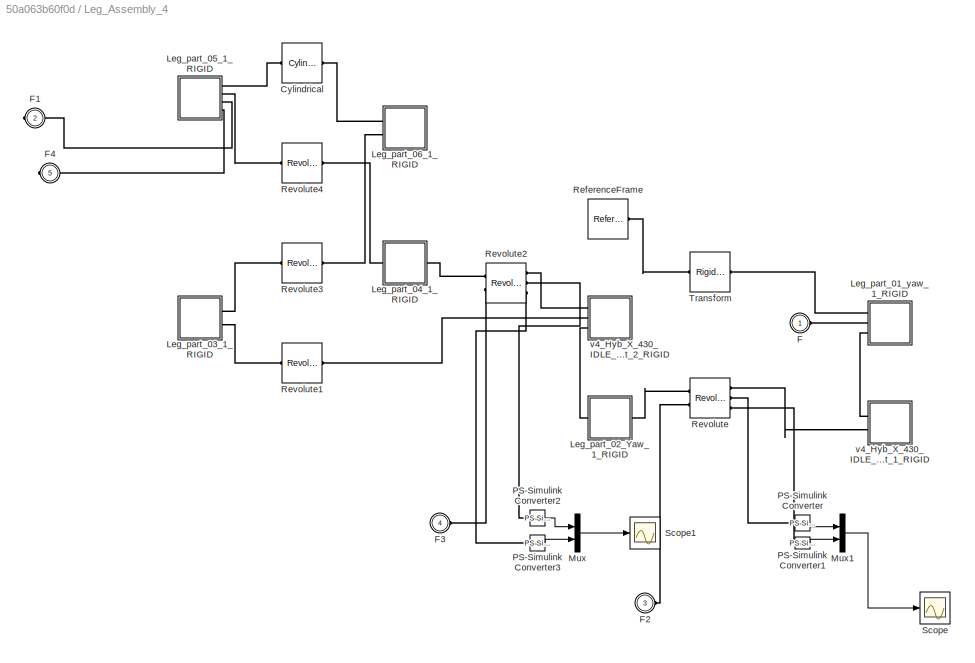
BLOCK [SubSystem] Leg_Assembly_4 
  Ports = [0, 0, 0, 0, 0, 3, 2]
  RequestExecContextInheritance = off
BLOCK [Reference] Leg_Assembly_4 /Cylindrical  REF=sm_lib/Joints/Cylindrical
Joint
  Ports = [0, 0, 0, 0, 0, 1, 1]
  SourceBlock = sm_lib/Joints/Cylindrical\nJoint
  SourceProductBaseCode = MS
  SourceProductName = Simscape Multibody
  SourceType = Cylindrical\nJoint
BLOCK [PMIOPort] Leg_Assembly_4 /F
  Side = Left
BLOCK [PMIOPort] Leg_Assembly_4 /F1
  Port = 2
  Side = Right
BLOCK [PMIOPort] Leg_Assembly_4 /F2
  Port = 3
  Side = Left
BLOCK [PMIOPort] Leg_Assembly_4 /F3
  Port = 4
  Side = Left
BLOCK [PMIOPort] Leg_Assembly_4 /F4
  Port = 5
  Side = Right
BLOCK [SubSystem] Leg_Assembly_4 /Leg_part_01_yaw_1_RIGID
  Ports = [0, 0, 0, 0, 0, 3]
  RequestExecContextInheritance = off
BLOCK [PMIOPort] Leg_Assembly_4 /Leg_part_01_yaw_1_RIGID/F
  Port = 3
  Side = Left
BLOCK [PMIOPort] Leg_Assembly_4 /Leg_part_01_yaw_1_RIGID/F1
  Port = 2
  Side = Left
BLOCK [PMIOPort] Leg_Assembly_4 /Leg_part_01_yaw_1_RIGID/F2
  Side = Left
BLOCK [Reference] Leg_Assembly_4 /Leg_part_01_yaw_1_RIGID/ReferenceFrame  REF=sm_lib/Frames and
Transforms/Reference
Frame
  Ports = [0, 0, 0, 0, 0, 0, 1]
  SourceBlock = sm_lib/Frames and\nTransforms/Reference\nFrame
  SourceProductBaseCode = MS
  SourceProductName = Simscape Multibody
  SourceType = Reference\nFrame
BLOCK [Reference] Leg_Assembly_4 /Leg_part_01_yaw_1_RIGID/Solid  REF=sm_lib/Body Elements/File Solid
  Ports = [0, 0, 0, 0, 0, 0, 1]
  SourceBlock = sm_lib/Body Elements/File Solid
  SourceProductBaseCode = MS
  SourceProductName = Simscape Multibody
  SourceType = File Solid
BLOCK [Reference] Leg_Assembly_4 /Leg_part_01_yaw_1_RIGID/Transform  REF=sm_lib/Frames and
Transforms/Rigid
Transform
  Ports = [0, 0, 0, 0, 0, 1, 1]
  SourceBlock = sm_lib/Frames and\nTransforms/Rigid\nTransform
  SourceProductBaseCode = MS
  SourceProductName = Simscape Multibody
  SourceType = Rigid\nTransform
BLOCK [Reference] Leg_Assembly_4 /Leg_part_01_yaw_1_RIGID/Transform1  REF=sm_lib/Frames and
Transforms/Rigid
Transform
  Ports = [0, 0, 0, 0, 0, 1, 1]
  SourceBlock = sm_lib/Frames and\nTransforms/Rigid\nTransform
  SourceProductBaseCode = MS
  SourceProductName = Simscape Multibody
  SourceType = Rigid\nTransform
BLOCK [SubSystem] Leg_Assembly_4 /Leg_part_02_Yaw_1_RIGID
  Ports = [0, 0, 0, 0, 0, 1, 1]
  RequestExecContextInheritance = off
BLOCK [PMIOPort] Leg_Assembly_4 /Leg_part_02_Yaw_1_RIGID/F
  Port = 2
  Side = Right
BLOCK [PMIOPort] Leg_Assembly_4 /Leg_part_02_Yaw_1_RIGID/F1
  Side = Left
BLOCK [Reference] Leg_Assembly_4 /Leg_part_02_Yaw_1_RIGID/ReferenceFrame  REF=sm_lib/Frames and
Transforms/Reference
Frame
  Ports = [0, 0, 0, 0, 0, 0, 1]
  SourceBlock = sm_lib/Frames and\nTransforms/Reference\nFrame
  SourceProductBaseCode = MS
  SourceProductName = Simscape Multibody
  SourceType = Reference\nFrame
BLOCK [Reference] Leg_Assembly_4 /Leg_part_02_Yaw_1_RIGID/Solid  REF=sm_lib/Body Elements/File Solid
  Ports = [0, 0, 0, 0, 0, 0, 1]
  SourceBlock = sm_lib/Body Elements/File Solid
  SourceProductBaseCode = MS
  SourceProductName = Simscape Multibody
  SourceType = File Solid
BLOCK [Reference] Leg_Assembly_4 /Leg_part_02_Yaw_1_RIGID/Transform  REF=sm_lib/Frames and
Transforms/Rigid
Transform
  Ports = [0, 0, 0, 0, 0, 1, 1]
  SourceBlock = sm_lib/Frames and\nTransforms/Rigid\nTransform
  SourceProductBaseCode = MS
  SourceProductName = Simscape Multibody
  SourceType = Rigid\nTransform
BLOCK [Reference] Leg_Assembly_4 /Leg_part_02_Yaw_1_RIGID/Transform1  REF=sm_lib/Frames and
Transforms/Rigid
Transform
  Ports = [0, 0, 0, 0, 0, 1, 1]
  SourceBlock = sm_lib/Frames and\nTransforms/Rigid\nTransform
  SourceProductBaseCode = MS
  SourceProductName = Simscape Multibody
  SourceType = Rigid\nTransform
BLOCK [SubSystem] Leg_Assembly_4 /Leg_part_03_1_RIGID
  Ports = [0, 0, 0, 0, 0, 0, 2]
  RequestExecContextInheritance = off
BLOCK [PMIOPort] Leg_Assembly_4 /Leg_part_03_1_RIGID/F
  Port = 2
  Side = Right
BLOCK [PMIOPort] Leg_Assembly_4 /Leg_part_03_1_RIGID/F1
  Side = Right
BLOCK [Reference] Leg_Assembly_4 /Leg_part_03_1_RIGID/ReferenceFrame  REF=sm_lib/Frames and
Transforms/Reference
Frame
  Ports = [0, 0, 0, 0, 0, 0, 1]
  SourceBlock = sm_lib/Frames and\nTransforms/Reference\nFrame
  SourceProductBaseCode = MS
  SourceProductName = Simscape Multibody
  SourceType = Reference\nFrame
BLOCK [Reference] Leg_Assembly_4 /Leg_part_03_1_RIGID/Solid  REF=sm_lib/Body Elements/File Solid
  Ports = [0, 0, 0, 0, 0, 0, 1]
  SourceBlock = sm_lib/Body Elements/File Solid
  SourceProductBaseCode = MS
  SourceProductName = Simscape Multibody
  SourceType = File Solid
BLOCK [Reference] Leg_Assembly_4 /Leg_part_03_1_RIGID/Transform  REF=sm_lib/Frames and
Transforms/Rigid
Transform
  Ports = [0, 0, 0, 0, 0, 1, 1]
  SourceBlock = sm_lib/Frames and\nTransforms/Rigid\nTransform
  SourceProductBaseCode = MS
  SourceProductName = Simscape Multibody
  SourceType = Rigid\nTransform
BLOCK [Reference] Leg_Assembly_4 /Leg_part_03_1_RIGID/Transform1  REF=sm_lib/Frames and
Transforms/Rigid
Transform
  Ports = [0, 0, 0, 0, 0, 1, 1]
  SourceBlock = sm_lib/Frames and\nTransforms/Rigid\nTransform
  SourceProductBaseCode = MS
  SourceProductName = Simscape Multibody
  SourceType = Rigid\nTransform
BLOCK [SubSystem] Leg_Assembly_4 /Leg_part_04_1_RIGID
  Ports = [0, 0, 0, 0, 0, 1, 1]
  RequestExecContextInheritance = off
BLOCK [PMIOPort] Leg_Assembly_4 /Leg_part_04_1_RIGID/F
  Port = 2
  Side = Right
BLOCK [PMIOPort] Leg_Assembly_4 /Leg_part_04_1_RIGID/F1
  Side = Left
BLOCK [Reference] Leg_Assembly_4 /Leg_part_04_1_RIGID/ReferenceFrame  REF=sm_lib/Frames and
Transforms/Reference
Frame
  Ports = [0, 0, 0, 0, 0, 0, 1]
  SourceBlock = sm_lib/Frames and\nTransforms/Reference\nFrame
  SourceProductBaseCode = MS
  SourceProductName = Simscape Multibody
  SourceType = Reference\nFrame
BLOCK [Reference] Leg_Assembly_4 /Leg_part_04_1_RIGID/Solid  REF=sm_lib/Body Elements/File Solid
  Ports = [0, 0, 0, 0, 0, 0, 1]
  SourceBlock = sm_lib/Body Elements/File Solid
  SourceProductBaseCode = MS
  SourceProductName = Simscape Multibody
  SourceType = File Solid
BLOCK [Reference] Leg_Assembly_4 /Leg_part_04_1_RIGID/Transform  REF=sm_lib/Frames and
Transforms/Rigid
Transform
  Ports = [0, 0, 0, 0, 0, 1, 1]
  SourceBlock = sm_lib/Frames and\nTransforms/Rigid\nTransform
  SourceProductBaseCode = MS
  SourceProductName = Simscape Multibody
  SourceType = Rigid\nTransform
BLOCK [Reference] Leg_Assembly_4 /Leg_part_04_1_RIGID/Transform1  REF=sm_lib/Frames and
Transforms/Rigid
Transform
  Ports = [0, 0, 0, 0, 0, 1, 1]
  SourceBlock = sm_lib/Frames and\nTransforms/Rigid\nTransform
  SourceProductBaseCode = MS
  SourceProductName = Simscape Multibody
  SourceType = Rigid\nTransform
BLOCK [SubSystem] Leg_Assembly_4 /Leg_part_05_1_RIGID
  Ports = [0, 0, 0, 0, 0, 0, 4]
  RequestExecContextInheritance = off
BLOCK [PMIOPort] Leg_Assembly_4 /Leg_part_05_1_RIGID/F
  Port = 2
  Side = Right
BLOCK [PMIOPort] Leg_Assembly_4 /Leg_part_05_1_RIGID/F1
  Side = Right
BLOCK [PMIOPort] Leg_Assembly_4 /Leg_part_05_1_RIGID/F2
  Port = 3
  Side = Right
BLOCK [PMIOPort] Leg_Assembly_4 /Leg_part_05_1_RIGID/F3
  Port = 4
  Side = Right
BLOCK [Reference] Leg_Assembly_4 /Leg_part_05_1_RIGID/ReferenceFrame  REF=sm_lib/Frames and
Transforms/Reference
Frame
  Ports = [0, 0, 0, 0, 0, 0, 1]
  SourceBlock = sm_lib/Frames and\nTransforms/Reference\nFrame
  SourceProductBaseCode = MS
  SourceProductName = Simscape Multibody
  SourceType = Reference\nFrame
BLOCK [Reference] Leg_Assembly_4 /Leg_part_05_1_RIGID/Solid  REF=sm_lib/Body Elements/File Solid
  Ports = [0, 0, 0, 0, 0, 2, 1]
  SourceBlock = sm_lib/Body Elements/File Solid
  SourceProductBaseCode = MS
  SourceProductName = Simscape Multibody
  SourceType = File Solid
BLOCK [Reference] Leg_Assembly_4 /Leg_part_05_1_RIGID/Transform  REF=sm_lib/Frames and
Transforms/Rigid
Transform
  Ports = [0, 0, 0, 0, 0, 1, 1]
  SourceBlock = sm_lib/Frames and\nTransforms/Rigid\nTransform
  SourceProductBaseCode = MS
  SourceProductName = Simscape Multibody
  SourceType = Rigid\nTransform
BLOCK [Reference] Leg_Assembly_4 /Leg_part_05_1_RIGID/Transform1  REF=sm_lib/Frames and
Transforms/Rigid
Transform
  Ports = [0, 0, 0, 0, 0, 1, 1]
  SourceBlock = sm_lib/Frames and\nTransforms/Rigid\nTransform
  SourceProductBaseCode = MS
  SourceProductName = Simscape Multibody
  SourceType = Rigid\nTransform
BLOCK [SubSystem] Leg_Assembly_4 /Leg_part_06_1_RIGID
  Ports = [0, 0, 0, 0, 0, 2]
  RequestExecContextInheritance = off
BLOCK [PMIOPort] Leg_Assembly_4 /Leg_part_06_1_RIGID/F
  Port = 2
  Side = Left
BLOCK [PMIOPort] Leg_Assembly_4 /Leg_part_06_1_RIGID/F1
  Side = Left
BLOCK [Reference] Leg_Assembly_4 /Leg_part_06_1_RIGID/ReferenceFrame  REF=sm_lib/Frames and
Transforms/Reference
Frame
  Ports = [0, 0, 0, 0, 0, 0, 1]
  SourceBlock = sm_lib/Frames and\nTransforms/Reference\nFrame
  SourceProductBaseCode = MS
  SourceProductName = Simscape Multibody
  SourceType = Reference\nFrame
BLOCK [Reference] Leg_Assembly_4 /Leg_part_06_1_RIGID/Solid  REF=sm_lib/Body Elements/File Solid
  Ports = [0, 0, 0, 0, 0, 0, 1]
  SourceBlock = sm_lib/Body Elements/File Solid
  SourceProductBaseCode = MS
  SourceProductName = Simscape Multibody
  SourceType = File Solid
BLOCK [Reference] Leg_Assembly_4 /Leg_part_06_1_RIGID/Transform  REF=sm_lib/Frames and
Transforms/Rigid
Transform
  Ports = [0, 0, 0, 0, 0, 1, 1]
  SourceBlock = sm_lib/Frames and\nTransforms/Rigid\nTransform
  SourceProductBaseCode = MS
  SourceProductName = Simscape Multibody
  SourceType = Rigid\nTransform
BLOCK [Reference] Leg_Assembly_4 /Leg_part_06_1_RIGID/Transform1  REF=sm_lib/Frames and
Transforms/Rigid
Transform
  Ports = [0, 0, 0, 0, 0, 1, 1]
  SourceBlock = sm_lib/Frames and\nTransforms/Rigid\nTransform
  SourceProductBaseCode = MS
  SourceProductName = Simscape Multibody
  SourceType = Rigid\nTransform
BLOCK [Mux] Leg_Assembly_4 /Mux
  DisplayOption = bar
  Inputs = 2
  Ports = [2, 1]
BLOCK [Mux] Leg_Assembly_4 /Mux1
  DisplayOption = bar
  Inputs = 2
  Ports = [2, 1]
BLOCK [Reference] Leg_Assembly_4 /PS-Simulink Converter  REF=nesl_utility/PS-Simulink
Converter
  Ports = [0, 1, 0, 0, 0, 1]
  SourceBlock = nesl_utility/PS-Simulink\nConverter
  SourceProductBaseCode = SS
  SourceProductName = Simscape
  SourceType = PS-Simulink\nConverter
BLOCK [Reference] Leg_Assembly_4 /PS-Simulink Converter1  REF=nesl_utility/PS-Simulink
Converter
  Ports = [0, 1, 0, 0, 0, 1]
  SourceBlock = nesl_utility/PS-Simulink\nConverter
  SourceProductBaseCode = SS
  SourceProductName = Simscape
  SourceType = PS-Simulink\nConverter
BLOCK [Reference] Leg_Assembly_4 /PS-Simulink Converter2  REF=nesl_utility/PS-Simulink
Converter
  Ports = [0, 1, 0, 0, 0, 1]
  SourceBlock = nesl_utility/PS-Simulink\nConverter
  SourceProductBaseCode = SS
  SourceProductName = Simscape
  SourceType = PS-Simulink\nConverter
BLOCK [Reference] Leg_Assembly_4 /PS-Simulink Converter3  REF=nesl_utility/PS-Simulink
Converter
  Ports = [0, 1, 0, 0, 0, 1]
  SourceBlock = nesl_utility/PS-Simulink\nConverter
  SourceProductBaseCode = SS
  SourceProductName = Simscape
  SourceType = PS-Simulink\nConverter
BLOCK [Reference] Leg_Assembly_4 /ReferenceFrame  REF=sm_lib/Frames and
Transforms/Reference
Frame
  Ports = [0, 0, 0, 0, 0, 0, 1]
  SourceBlock = sm_lib/Frames and\nTransforms/Reference\nFrame
  SourceProductBaseCode = MS
  SourceProductName = Simscape Multibody
  SourceType = Reference\nFrame
BLOCK [Reference] Leg_Assembly_4 /Revolute  REF=sm_lib/Joints/Revolute Joint
  Ports = [0, 0, 0, 0, 0, 2, 3]
  SourceBlock = sm_lib/Joints/Revolute Joint
  SourceProductBaseCode = MS
  SourceProductName = Simscape Multibody
  SourceType = Revolute Joint
BLOCK [Reference] Leg_Assembly_4 /Revolute1  REF=sm_lib/Joints/Revolute Joint
  Ports = [0, 0, 0, 0, 0, 1, 1]
  SourceBlock = sm_lib/Joints/Revolute Joint
  SourceProductBaseCode = MS
  SourceProductName = Simscape Multibody
  SourceType = Revolute Joint
BLOCK [Reference] Leg_Assembly_4 /Revolute2  REF=sm_lib/Joints/Revolute Joint
  Ports = [0, 0, 0, 0, 0, 2, 3]
  SourceBlock = sm_lib/Joints/Revolute Joint
  SourceProductBaseCode = MS
  SourceProductName = Simscape Multibody
  SourceType = Revolute Joint
BLOCK [Reference] Leg_Assembly_4 /Revolute3  REF=sm_lib/Joints/Revolute Joint
  Ports = [0, 0, 0, 0, 0, 1, 1]
  SourceBlock = sm_lib/Joints/Revolute Joint
  SourceProductBaseCode = MS
  SourceProductName = Simscape Multibody
  SourceType = Revolute Joint
BLOCK [Reference] Leg_Assembly_4 /Revolute4  REF=sm_lib/Joints/Revolute Joint
  Ports = [0, 0, 0, 0, 0, 1, 1]
  SourceBlock = sm_lib/Joints/Revolute Joint
  SourceProductBaseCode = MS
  SourceProductName = Simscape Multibody
  SourceType = Revolute Joint
BLOCK [Scope] Leg_Assembly_4 /Scope
  Floating = off
  NumInputPorts = 1
  Ports = [1]
  ScopeSpecificationString = Simulink.scopes.TimeScopeBlockCfg('CurrentConfiguration', extmgr.ConfigurationSet(extmgr.Configuration('Core','General UI',true),extmgr.Configuration('Core','Source UI',true),extmgr.Configuration('Sources','WiredSimulink',true,'DataLoggingVariableName','ScopeData1'),extmgr.Configuration('Visuals','Time Domain',true,'SerializedDisplays',{struct('MinYLimReal','-66.74727','MaxYLimReal','87.22335','YL...<+1486ch>
BLOCK [Scope] Leg_Assembly_4 /Scope1
  Floating = off
  NumInputPorts = 1
  Ports = [1]
  ScopeSpecificationString = Simulink.scopes.TimeScopeBlockCfg('CurrentConfiguration', extmgr.ConfigurationSet(extmgr.Configuration('Core','General UI',true),extmgr.Configuration('Core','Source UI',true),extmgr.Configuration('Sources','WiredSimulink',true,'DataLoggingVariableName','ScopeData2'),extmgr.Configuration('Visuals','Time Domain',true,'SerializedDisplays',{struct('MinYLimReal','-78.53186','MaxYLimReal','78.53426','YL...<+1486ch>
BLOCK [Reference] Leg_Assembly_4 /Transform  REF=sm_lib/Frames and
Transforms/Rigid
Transform
  Ports = [0, 0, 0, 0, 0, 1, 1]
  SourceBlock = sm_lib/Frames and\nTransforms/Rigid\nTransform
  SourceProductBaseCode = MS
  SourceProductName = Simscape Multibody
  SourceType = Rigid\nTransform
BLOCK [SubSystem] Leg_Assembly_4 /v4_Hyb_X_430_IDLE_uncut_1_RIGID
  Ports = [0, 0, 0, 0, 0, 2]
  RequestExecContextInheritance = off
BLOCK [PMIOPort] Leg_Assembly_4 /v4_Hyb_X_430_IDLE_uncut_1_RIGID/F
  Side = Left
BLOCK [PMIOPort] Leg_Assembly_4 /v4_Hyb_X_430_IDLE_uncut_1_RIGID/F1
  Port = 2
  Side = Left
BLOCK [Reference] Leg_Assembly_4 /v4_Hyb_X_430_IDLE_uncut_1_RIGID/ReferenceFrame  REF=sm_lib/Frames and
Transforms/Reference
Frame
  Ports = [0, 0, 0, 0, 0, 0, 1]
  SourceBlock = sm_lib/Frames and\nTransforms/Reference\nFrame
  SourceProductBaseCode = MS
  SourceProductName = Simscape Multibody
  SourceType = Reference\nFrame
BLOCK [Reference] Leg_Assembly_4 /v4_Hyb_X_430_IDLE_uncut_1_RIGID/Solid  REF=sm_lib/Body Elements/File Solid
  Ports = [0, 0, 0, 0, 0, 0, 1]
  SourceBlock = sm_lib/Body Elements/File Solid
  SourceProductBaseCode = MS
  SourceProductName = Simscape Multibody
  SourceType = File Solid
BLOCK [Reference] Leg_Assembly_4 /v4_Hyb_X_430_IDLE_uncut_1_RIGID/Transform  REF=sm_lib/Frames and
Transforms/Rigid
Transform
  Ports = [0, 0, 0, 0, 0, 1, 1]
  SourceBlock = sm_lib/Frames and\nTransforms/Rigid\nTransform
  SourceProductBaseCode = MS
  SourceProductName = Simscape Multibody
  SourceType = Rigid\nTransform
BLOCK [Reference] Leg_Assembly_4 /v4_Hyb_X_430_IDLE_uncut_1_RIGID/Transform1  REF=sm_lib/Frames and
Transforms/Rigid
Transform
  Ports = [0, 0, 0, 0, 0, 1, 1]
  SourceBlock = sm_lib/Frames and\nTransforms/Rigid\nTransform
  SourceProductBaseCode = MS
  SourceProductName = Simscape Multibody
  SourceType = Rigid\nTransform
BLOCK [SubSystem] Leg_Assembly_4 /v4_Hyb_X_430_IDLE_uncut_2_RIGID
  Ports = [0, 0, 0, 0, 0, 3]
  RequestExecContextInheritance = off
BLOCK [PMIOPort] Leg_Assembly_4 /v4_Hyb_X_430_IDLE_uncut_2_RIGID/F
  Port = 3
  Side = Left
BLOCK [PMIOPort] Leg_Assembly_4 /v4_Hyb_X_430_IDLE_uncut_2_RIGID/F1
  Port = 2
  Side = Left
BLOCK [PMIOPort] Leg_Assembly_4 /v4_Hyb_X_430_IDLE_uncut_2_RIGID/F2
  Side = Left
BLOCK [Reference] Leg_Assembly_4 /v4_Hyb_X_430_IDLE_uncut_2_RIGID/ReferenceFrame  REF=sm_lib/Frames and
Transforms/Reference
Frame
  Ports = [0, 0, 0, 0, 0, 0, 1]
  SourceBlock = sm_lib/Frames and\nTransforms/Reference\nFrame
  SourceProductBaseCode = MS
  SourceProductName = Simscape Multibody
  SourceType = Reference\nFrame
BLOCK [Reference] Leg_Assembly_4 /v4_Hyb_X_430_IDLE_uncut_2_RIGID/Solid  REF=sm_lib/Body Elements/File Solid
  Ports = [0, 0, 0, 0, 0, 0, 1]
  SourceBlock = sm_lib/Body Elements/File Solid
  SourceProductBaseCode = MS
  SourceProductName = Simscape Multibody
  SourceType = File Solid
BLOCK [Reference] Leg_Assembly_4 /v4_Hyb_X_430_IDLE_uncut_2_RIGID/Transform  REF=sm_lib/Frames and
Transforms/Rigid
Transform
  Ports = [0, 0, 0, 0, 0, 1, 1]
  SourceBlock = sm_lib/Frames and\nTransforms/Rigid\nTransform
  SourceProductBaseCode = MS
  SourceProductName = Simscape Multibody
  SourceType = Rigid\nTransform
BLOCK [Reference] Leg_Assembly_4 /v4_Hyb_X_430_IDLE_uncut_2_RIGID/Transform1  REF=sm_lib/Frames and
Transforms/Rigid
Transform
  Ports = [0, 0, 0, 0, 0, 1, 1]
  SourceBlock = sm_lib/Frames and\nTransforms/Rigid\nTransform
  SourceProductBaseCode = MS
  SourceProductName = Simscape Multibody
  SourceType = Rigid\nTransform
BLOCK [Reference] Leg_Assembly_4 /v4_Hyb_X_430_IDLE_uncut_2_RIGID/Transform2  REF=sm_lib/Frames and
Transforms/Rigid
Transform
  Ports = [0, 0, 0, 0, 0, 1, 1]
  SourceBlock = sm_lib/Frames and\nTransforms/Rigid\nTransform
  SourceProductBaseCode = MS
  SourceProductName = Simscape Multibody
  SourceType = Rigid\nTransform
BLOCK [Reference] MechanismConfiguration  REF=sm_lib/Utilities/Mechanism
Configuration
  Ports = [0, 0, 0, 0, 0, 0, 1]
  SourceBlock = sm_lib/Utilities/Mechanism\nConfiguration
  SourceProductBaseCode = MS
  SourceProductName = Simscape Multibody
  SourceType = Mechanism\nConfiguration
BLOCK [Mux] Mux
  DisplayOption = bar
  Ports = [4, 1]
BLOCK [Mux] Mux1
  DisplayOption = bar
  Inputs = 3
  Ports = [3, 1]
BLOCK [Mux] Mux2
  DisplayOption = bar
  Inputs = 3
  Ports = [3, 1]
BLOCK [Mux] Mux3
  DisplayOption = bar
  Inputs = 3
  Ports = [3, 1]
BLOCK [Mux] Mux4
  DisplayOption = bar
  Inputs = 3
  Ports = [3, 1]
BLOCK [Mux] Mux5
  DisplayOption = bar
  Inputs = 3
  Ports = [3, 1]
BLOCK [Reference] PS-Simulink Converter  REF=nesl_utility/PS-Simulink
Converter
  Ports = [0, 1, 0, 0, 0, 1]
  SourceBlock = nesl_utility/PS-Simulink\nConverter
  SourceProductBaseCode = SS
  SourceProductName = Simscape
  SourceType = PS-Simulink\nConverter
BLOCK [Reference] PS-Simulink Converter1  REF=nesl_utility/PS-Simulink
Converter
  Ports = [0, 1, 0, 0, 0, 1]
  SourceBlock = nesl_utility/PS-Simulink\nConverter
  SourceProductBaseCode = SS
  SourceProductName = Simscape
  SourceType = PS-Simulink\nConverter
BLOCK [Reference] PS-Simulink Converter10  REF=nesl_utility/PS-Simulink
Converter
  Ports = [0, 1, 0, 0, 0, 1]
  SourceBlock = nesl_utility/PS-Simulink\nConverter
  SourceProductBaseCode = SS
  SourceProductName = Simscape
  SourceType = PS-Simulink\nConverter
BLOCK [Reference] PS-Simulink Converter11  REF=nesl_utility/PS-Simulink
Converter
  Ports = [0, 1, 0, 0, 0, 1]
  SourceBlock = nesl_utility/PS-Simulink\nConverter
  SourceProductBaseCode = SS
  SourceProductName = Simscape
  SourceType = PS-Simulink\nConverter
BLOCK [Reference] PS-Simulink Converter12  REF=nesl_utility/PS-Simulink
Converter
  Ports = [0, 1, 0, 0, 0, 1]
  SourceBlock = nesl_utility/PS-Simulink\nConverter
  SourceProductBaseCode = SS
  SourceProductName = Simscape
  SourceType = PS-Simulink\nConverter
BLOCK [Reference] PS-Simulink Converter13  REF=nesl_utility/PS-Simulink
Converter
  Ports = [0, 1, 0, 0, 0, 1]
  SourceBlock = nesl_utility/PS-Simulink\nConverter
  SourceProductBaseCode = SS
  SourceProductName = Simscape
  SourceType = PS-Simulink\nConverter
BLOCK [Reference] PS-Simulink Converter14  REF=nesl_utility/PS-Simulink
Converter
  Ports = [0, 1, 0, 0, 0, 1]
  SourceBlock = nesl_utility/PS-Simulink\nConverter
  SourceProductBaseCode = SS
  SourceProductName = Simscape
  SourceType = PS-Simulink\nConverter
BLOCK [Reference] PS-Simulink Converter15  REF=nesl_utility/PS-Simulink
Converter
  Ports = [0, 1, 0, 0, 0, 1]
  SourceBlock = nesl_utility/PS-Simulink\nConverter
  SourceProductBaseCode = SS
  SourceProductName = Simscape
  SourceType = PS-Simulink\nConverter
BLOCK [Reference] PS-Simulink Converter2  REF=nesl_utility/PS-Simulink
Converter
  Ports = [0, 1, 0, 0, 0, 1]
  SourceBlock = nesl_utility/PS-Simulink\nConverter
  SourceProductBaseCode = SS
  SourceProductName = Simscape
  SourceType = PS-Simulink\nConverter
BLOCK [Reference] PS-Simulink Converter3  REF=nesl_utility/PS-Simulink
Converter
  Ports = [0, 1, 0, 0, 0, 1]
  SourceBlock = nesl_utility/PS-Simulink\nConverter
  SourceProductBaseCode = SS
  SourceProductName = Simscape
  SourceType = PS-Simulink\nConverter
BLOCK [Reference] PS-Simulink Converter4  REF=nesl_utility/PS-Simulink
Converter
  Ports = [0, 1, 0, 0, 0, 1]
  SourceBlock = nesl_utility/PS-Simulink\nConverter
  SourceProductBaseCode = SS
  SourceProductName = Simscape
  SourceType = PS-Simulink\nConverter
BLOCK [Reference] PS-Simulink Converter5  REF=nesl_utility/PS-Simulink
Converter
  Ports = [0, 1, 0, 0, 0, 1]
  SourceBlock = nesl_utility/PS-Simulink\nConverter
  SourceProductBaseCode = SS
  SourceProductName = Simscape
  SourceType = PS-Simulink\nConverter
BLOCK [Reference] PS-Simulink Converter7  REF=nesl_utility/PS-Simulink
Converter
  Ports = [0, 1, 0, 0, 0, 1]
  SourceBlock = nesl_utility/PS-Simulink\nConverter
  SourceProductBaseCode = SS
  SourceProductName = Simscape
  SourceType = PS-Simulink\nConverter
BLOCK [Reference] PS-Simulink Converter8  REF=nesl_utility/PS-Simulink
Converter
  Ports = [0, 1, 0, 0, 0, 1]
  SourceBlock = nesl_utility/PS-Simulink\nConverter
  SourceProductBaseCode = SS
  SourceProductName = Simscape
  SourceType = PS-Simulink\nConverter
BLOCK [Reference] PS-Simulink Converter9  REF=nesl_utility/PS-Simulink
Converter
  Ports = [0, 1, 0, 0, 0, 1]
  SourceBlock = nesl_utility/PS-Simulink\nConverter
  SourceProductBaseCode = SS
  SourceProductName = Simscape
  SourceType = PS-Simulink\nConverter
BLOCK [Scope] Scope 
  Floating = off
  NumInputPorts = 3
  Ports = [3]
  ScopeSpecificationString = Simulink.scopes.TimeScopeBlockCfg('CurrentConfiguration', extmgr.ConfigurationSet(extmgr.Configuration('Core','General UI',true),extmgr.Configuration('Core','Source UI',true),extmgr.Configuration('Sources','WiredSimulink',true),extmgr.Configuration('Visuals','Time Domain',true,'SerializedDisplays',{struct('MinYLimReal','-118.58216','MaxYLimReal','975.93521','YLabelReal','','MinYLimMag',' 0.00000',...<+1884ch>
BLOCK [Scope] Scope 3
  Floating = off
  NumInputPorts = 4
  Ports = [4]
  ScopeSpecificationString = Simulink.scopes.TimeScopeBlockCfg('CurrentConfiguration', extmgr.ConfigurationSet(extmgr.Configuration('Core','General UI',true),extmgr.Configuration('Core','Source UI',true),extmgr.Configuration('Sources','WiredSimulink',true,'DataLoggingVariableName','ScopeData1'),extmgr.Configuration('Visuals','Time Domain',true,'SerializedDisplays',{struct('MinYLimReal','-14.23531','MaxYLimReal','96.94549','YL...<+1966ch>
BLOCK [Reference] Simulink-PS Convert1  REF=nesl_utility/Simulink-PS
Converter
  Ports = [1, 0, 0, 0, 0, 0, 1]
  SourceBlock = nesl_utility/Simulink-PS\nConverter
  SourceProductBaseCode = SS
  SourceProductName = Simscape
  SourceType = Simulink-PS\nConverter
BLOCK [Reference] Simulink-PS Converter  REF=nesl_utility/Simulink-PS
Converter
  Ports = [1, 0, 0, 0, 0, 0, 1]
  SourceBlock = nesl_utility/Simulink-PS\nConverter
  SourceProductBaseCode = SS
  SourceProductName = Simscape
  SourceType = Simulink-PS\nConverter
BLOCK [Reference] Simulink-PS Converter2  REF=nesl_utility/Simulink-PS
Converter
  Ports = [1, 0, 0, 0, 0, 0, 1]
  SourceBlock = nesl_utility/Simulink-PS\nConverter
  SourceProductBaseCode = SS
  SourceProductName = Simscape
  SourceType = Simulink-PS\nConverter
BLOCK [Reference] Simulink-PS Converter3  REF=nesl_utility/Simulink-PS
Converter
  Ports = [1, 0, 0, 0, 0, 0, 1]
  SourceBlock = nesl_utility/Simulink-PS\nConverter
  SourceProductBaseCode = SS
  SourceProductName = Simscape
  SourceType = Simulink-PS\nConverter
BLOCK [Reference] Simulink-PS Converter4  REF=nesl_utility/Simulink-PS
Converter
  Ports = [1, 0, 0, 0, 0, 0, 1]
  SourceBlock = nesl_utility/Simulink-PS\nConverter
  SourceProductBaseCode = SS
  SourceProductName = Simscape
  SourceType = Simulink-PS\nConverter
BLOCK [Reference] Simulink-PS Converter5  REF=nesl_utility/Simulink-PS
Converter
  Ports = [1, 0, 0, 0, 0, 0, 1]
  SourceBlock = nesl_utility/Simulink-PS\nConverter
  SourceProductBaseCode = SS
  SourceProductName = Simscape
  SourceType = Simulink-PS\nConverter
BLOCK [Reference] Simulink-PS Converter6  REF=nesl_utility/Simulink-PS
Converter
  Ports = [1, 0, 0, 0, 0, 0, 1]
  SourceBlock = nesl_utility/Simulink-PS\nConverter
  SourceProductBaseCode = SS
  SourceProductName = Simscape
  SourceType = Simulink-PS\nConverter
BLOCK [Reference] Simulink-PS Converter7  REF=nesl_utility/Simulink-PS
Converter
  Ports = [1, 0, 0, 0, 0, 0, 1]
  SourceBlock = nesl_utility/Simulink-PS\nConverter
  SourceProductBaseCode = SS
  SourceProductName = Simscape
  SourceType = Simulink-PS\nConverter
BLOCK [Sin] Sine Wave
  IOType = siggen
  Ports = [0, 1]
  SampleTime = 0
BLOCK [Reference] Solver Configuration  REF=nesl_utility/Solver
Configuration
  Ports = [0, 0, 0, 0, 0, 0, 1]
  SourceBlock = nesl_utility/Solver\nConfiguration
  SourceProductBaseCode = SS
  SourceProductName = Simscape
  SourceType = Solver\nConfiguration
BLOCK [Reference] Sphere to Plane Force  REF=Contact_Forces_Lib/3D/Sphere to Plane Force
  Ports = [0, 1, 0, 0, 0, 1, 1]
  SourceBlock = Contact_Forces_Lib/3D/Sphere to Plane Force
  SourceProductName = Simscape Multibody Contact Forces Library
  SourceType = Sphere to Plane Force
BLOCK [Reference] Sphere to Plane Force1  REF=Contact_Forces_Lib/3D/Sphere to Plane Force
  Ports = [0, 1, 0, 0, 0, 1, 1]
  SourceBlock = Contact_Forces_Lib/3D/Sphere to Plane Force
  SourceProductName = Simscape Multibody Contact Forces Library
  SourceType = Sphere to Plane Force
BLOCK [Reference] Sphere to Plane Force2  REF=Contact_Forces_Lib/3D/Sphere to Plane Force
  Ports = [0, 1, 0, 0, 0, 1, 1]
  SourceBlock = Contact_Forces_Lib/3D/Sphere to Plane Force
  SourceProductName = Simscape Multibody Contact Forces Library
  SourceType = Sphere to Plane Force
BLOCK [Reference] Sphere to Plane Force3  REF=Contact_Forces_Lib/3D/Sphere to Plane Force
  Ports = [0, 1, 0, 0, 0, 1, 1]
  SourceBlock = Contact_Forces_Lib/3D/Sphere to Plane Force
  SourceProductName = Simscape Multibody Contact Forces Library
  SourceType = Sphere to Plane Force
BLOCK [Reference] Sphere to Plane Force4  REF=Contact_Forces_Lib/3D/Sphere to Plane Force
  Ports = [0, 1, 0, 0, 0, 1, 1]
  SourceBlock = Contact_Forces_Lib/3D/Sphere to Plane Force
  SourceProductName = Simscape Multibody Contact Forces Library
  SourceType = Sphere to Plane Force
BLOCK [Reference] Sphere to Plane Force5  REF=Contact_Forces_Lib/3D/Sphere to Plane Force
  Ports = [0, 1, 0, 0, 0, 1, 1]
  SourceBlock = Contact_Forces_Lib/3D/Sphere to Plane Force
  SourceProductName = Simscape Multibody Contact Forces Library
  SourceType = Sphere to Plane Force
BLOCK [Reference] Sphere to Plane Force6  REF=Contact_Forces_Lib/3D/Sphere to Plane Force
  Ports = [0, 1, 0, 0, 0, 1, 1]
  SourceBlock = Contact_Forces_Lib/3D/Sphere to Plane Force
  SourceProductName = Simscape Multibody Contact Forces Library
  SourceType = Sphere to Plane Force
BLOCK [Reference] Sphere to Plane Force7  REF=Contact_Forces_Lib/3D/Sphere to Plane Force
  Ports = [0, 1, 0, 0, 0, 1, 1]
  SourceBlock = Contact_Forces_Lib/3D/Sphere to Plane Force
  SourceProductName = Simscape Multibody Contact Forces Library
  SourceType = Sphere to Plane Force
BLOCK [Reference] Sphere to Plane Force8  REF=Contact_Forces_Lib/3D/Sphere to Plane Force
  Ports = [0, 1, 0, 0, 0, 1, 1]
  SourceBlock = Contact_Forces_Lib/3D/Sphere to Plane Force
  SourceProductName = Simscape Multibody Contact Forces Library
  SourceType = Sphere to Plane Force
BLOCK [Reference] Sphere to Plane Force9  REF=Contact_Forces_Lib/3D/Sphere to Plane Force
  Ports = [0, 1, 0, 0, 0, 1, 1]
  SourceBlock = Contact_Forces_Lib/3D/Sphere to Plane Force
  SourceProductName = Simscape Multibody Contact Forces Library
  SourceType = Sphere to Plane Force
BLOCK [ToWorkspace] To Workspace
  FixptAsFi = on
  MaxDataPoints = inf
  Ports = [1]
  SampleTime = -1
  SaveFormat = Timeseries
  VariableName = simout
BLOCK [ToWorkspace] To Workspace1
  FixptAsFi = on
  MaxDataPoints = inf
  Ports = [1]
  SampleTime = -1
  SaveFormat = Timeseries
  VariableName = simout1
BLOCK [Reference] Transform  REF=sm_lib/Frames and
Transforms/Rigid
Transform
  Ports = [0, 0, 0, 0, 0, 1, 1]
  SourceBlock = sm_lib/Frames and\nTransforms/Rigid\nTransform
  SourceProductBaseCode = MS
  SourceProductName = Simscape Multibody
  SourceType = Rigid\nTransform
BLOCK [Reference] Transform Sensor  REF=sm_lib/Frames and
Transforms/Transform
Sensor
  Ports = [0, 0, 0, 0, 0, 1, 5]
  SourceBlock = sm_lib/Frames and\nTransforms/Transform\nSensor
  SourceProductBaseCode = MS
  SourceProductName = Simscape Multibody
  SourceType = Transform\nSensor
BLOCK [Reference] Transform Sensor1  REF=sm_lib/Frames and
Transforms/Transform
Sensor
  Ports = [0, 0, 0, 0, 0, 1, 4]
  SourceBlock = sm_lib/Frames and\nTransforms/Transform\nSensor
  SourceProductBaseCode = MS
  SourceProductName = Simscape Multibody
  SourceType = Transform\nSensor
BLOCK [Reference] Transform Sensor2  REF=sm_lib/Frames and
Transforms/Transform
Sensor
  Ports = [0, 0, 0, 0, 0, 1, 4]
  SourceBlock = sm_lib/Frames and\nTransforms/Transform\nSensor
  SourceProductBaseCode = MS
  SourceProductName = Simscape Multibody
  SourceType = Transform\nSensor
BLOCK [Reference] Transform Sensor3  REF=sm_lib/Frames and
Transforms/Transform
Sensor
  Ports = [0, 0, 0, 0, 0, 1, 4]
  SourceBlock = sm_lib/Frames and\nTransforms/Transform\nSensor
  SourceProductBaseCode = MS
  SourceProductName = Simscape Multibody
  SourceType = Transform\nSensor
BLOCK [Reference] Transform Sensor4  REF=sm_lib/Frames and
Transforms/Transform
Sensor
  Ports = [0, 0, 0, 0, 0, 1, 4]
  SourceBlock = sm_lib/Frames and\nTransforms/Transform\nSensor
  SourceProductBaseCode = MS
  SourceProductName = Simscape Multibody
  SourceType = Transform\nSensor
BLOCK [Reference] Transform1  REF=sm_lib/Frames and
Transforms/Rigid
Transform
  Ports = [0, 0, 0, 0, 0, 1, 1]
  SourceBlock = sm_lib/Frames and\nTransforms/Rigid\nTransform
  SourceProductBaseCode = MS
  SourceProductName = Simscape Multibody
  SourceType = Rigid\nTransform
BLOCK [Reference] Weld Joint  REF=sm_lib/Joints/Weld Joint
  Ports = [0, 0, 0, 0, 0, 1, 1]
  SourceBlock = sm_lib/Joints/Weld Joint
  SourceProductBaseCode = MS
  SourceProductName = Simscape Multibody
  SourceType = Weld Joint
BLOCK [Reference] World  REF=sm_lib/Frames and
Transforms/World Frame
  Ports = [0, 0, 0, 0, 0, 0, 1]
  SourceBlock = sm_lib/Frames and\nTransforms/World Frame
  SourceProductBaseCode = MS
  SourceProductName = Simscape Multibody
  SourceType = World Frame
BLOCK [SubSystem] cover_2_RIGID
  Ports = [0, 0, 0, 0, 0, 8]
  RequestExecContextInheritance = off
BLOCK [PMIOPort] cover_2_RIGID/F
  Port = 2
  Side = Left
BLOCK [PMIOPort] cover_2_RIGID/F1
  Side = Left
BLOCK [PMIOPort] cover_2_RIGID/F2
  Port = 3
  Side = Left
BLOCK [PMIOPort] cover_2_RIGID/F3
  Port = 4
  Side = Left
BLOCK [PMIOPort] cover_2_RIGID/F4
  Port = 5
  Side = Left
BLOCK [PMIOPort] cover_2_RIGID/F5
  Port = 6
  Side = Left
BLOCK [PMIOPort] cover_2_RIGID/F6
  Port = 7
  Side = Left
BLOCK [PMIOPort] cover_2_RIGID/F7
  Port = 8
  Side = Left
BLOCK [Reference] cover_2_RIGID/ReferenceFrame  REF=sm_lib/Frames and
Transforms/Reference
Frame
  Ports = [0, 0, 0, 0, 0, 0, 1]
  SourceBlock = sm_lib/Frames and\nTransforms/Reference\nFrame
  SourceProductBaseCode = MS
  SourceProductName = Simscape Multibody
  SourceType = Reference\nFrame
BLOCK [Reference] cover_2_RIGID/Solid  REF=sm_lib/Body Elements/File Solid
  Ports = [0, 0, 0, 0, 0, 4, 3]
  SourceBlock = sm_lib/Body Elements/File Solid
  SourceProductBaseCode = MS
  SourceProductName = Simscape Multibody
  SourceType = File Solid
BLOCK [Reference] cover_2_RIGID/Transform  REF=sm_lib/Frames and
Transforms/Rigid
Transform
  Ports = [0, 0, 0, 0, 0, 1, 1]
  SourceBlock = sm_lib/Frames and\nTransforms/Rigid\nTransform
  SourceProductBaseCode = MS
  SourceProductName = Simscape Multibody
  SourceType = Rigid\nTransform
BLOCK [SubSystem] cover_IMU_1_RIGID
  Ports = [0, 0, 0, 0, 0, 1]
  RequestExecContextInheritance = off
BLOCK [PMIOPort] cover_IMU_1_RIGID/F
  Side = Left
BLOCK [Reference] cover_IMU_1_RIGID/ReferenceFrame  REF=sm_lib/Frames and
Transforms/Reference
Frame
  Ports = [0, 0, 0, 0, 0, 0, 1]
  SourceBlock = sm_lib/Frames and\nTransforms/Reference\nFrame
  SourceProductBaseCode = MS
  SourceProductName = Simscape Multibody
  SourceType = Reference\nFrame
BLOCK [Reference] cover_IMU_1_RIGID/Solid  REF=sm_lib/Body Elements/File Solid
  Ports = [0, 0, 0, 0, 0, 0, 1]
  SourceBlock = sm_lib/Body Elements/File Solid
  SourceProductBaseCode = MS
  SourceProductName = Simscape Multibody
  SourceType = File Solid
BLOCK [Reference] cover_IMU_1_RIGID/Transform  REF=sm_lib/Frames and
Transforms/Rigid
Transform
  Ports = [0, 0, 0, 0, 0, 1, 1]
  SourceBlock = sm_lib/Frames and\nTransforms/Rigid\nTransform
  SourceProductBaseCode = MS
  SourceProductName = Simscape Multibody
  SourceType = Rigid\nTransform
BLOCK [SubSystem] floor_1_RIGID
  Ports = [0, 0, 0, 0, 0, 2]
  RequestExecContextInheritance = off
BLOCK [PMIOPort] floor_1_RIGID/F
  Side = Left
BLOCK [PMIOPort] floor_1_RIGID/F1
  Port = 2
  Side = Left
BLOCK [Reference] floor_1_RIGID/ReferenceFrame  REF=sm_lib/Frames and
Transforms/Reference
Frame
  Ports = [0, 0, 0, 0, 0, 0, 1]
  SourceBlock = sm_lib/Frames and\nTransforms/Reference\nFrame
  SourceProductBaseCode = MS
  SourceProductName = Simscape Multibody
  SourceType = Reference\nFrame
BLOCK [Reference] floor_1_RIGID/Solid  REF=sm_lib/Body Elements/File Solid
  Ports = [0, 0, 0, 0, 0, 1, 1]
  SourceBlock = sm_lib/Body Elements/File Solid
  SourceProductBaseCode = MS
  SourceProductName = Simscape Multibody
  SourceType = File Solid
LINE 4Leg_Motion:1 -> Simulink-PS Converter2:1
LINE 4Leg_Motion:2 -> Simulink-PS Converter3:1
LINE 4Leg_Motion:3 -> Simulink-PS Converter:1
LINE 4Leg_Motion:4 -> Simulink-PS Convert1:1
LINE 4Leg_Motion:5 -> Simulink-PS Converter6:1
LINE 4Leg_Motion:6 -> Simulink-PS Converter7:1
LINE 4Leg_Motion:7 -> Simulink-PS Converter4:1
LINE 4Leg_Motion:8 -> Simulink-PS Converter5:1
LINE Clock:1 -> 4Leg_Motion:1
LINE Leg_Assembly_4 /Mux1:1 -> Leg_Assembly_4 /Scope:1
LINE Leg_Assembly_4 /Mux:1 -> Leg_Assembly_4 /Scope1:1
LINE Leg_Assembly_4 /PS-Simulink Converter1:1 -> Leg_Assembly_4 /Mux1:2
LINE Leg_Assembly_4 /PS-Simulink Converter2:1 -> Leg_Assembly_4 /Mux:1
LINE Leg_Assembly_4 /PS-Simulink Converter3:1 -> Leg_Assembly_4 /Mux:2
LINE Leg_Assembly_4 /PS-Simulink Converter:1 -> Leg_Assembly_4 /Mux1:1
LINE Mux1:1 -> Mux:1
LINE Mux2:1 -> Mux:2
LINE Mux3:1 -> Mux:3
LINE Mux4:1 -> Mux:4
LINE Mux5:1 -> To Workspace1:1
LINE Mux:1 -> To Workspace:1
LINE PS-Simulink Converter10:1 -> Mux2:1
LINE PS-Simulink Converter11:1 -> Mux2:2
LINE PS-Simulink Converter12:1 -> Mux2:3
LINE PS-Simulink Converter13:1 -> Mux1:1
LINE PS-Simulink Converter14:1 -> Mux1:2
LINE PS-Simulink Converter15:1 -> Mux1:3
NET PS-Simulink Converter1:1 -> Mux5:2, Scope :2
NET PS-Simulink Converter2:1 -> Mux5:3, Scope :3
LINE PS-Simulink Converter3:1 -> Mux4:1
LINE PS-Simulink Converter4:1 -> Mux4:2
LINE PS-Simulink Converter5:1 -> Mux4:3
LINE PS-Simulink Converter7:1 -> Mux3:1
LINE PS-Simulink Converter8:1 -> Mux3:2
LINE PS-Simulink Converter9:1 -> Mux3:3
NET PS-Simulink Converter:1 -> Mux5:1, Scope :1
LINE Sphere to Plane Force1:1 -> Scope 3:1
PLINE 6-DOF Joint1:LConn1 -- Transform1:RConn1
PLINE 6-DOF Joint1:RConn1 -- cover_2_RIGID:LConn1
PLINE Body_Frame_2_RIGID/F1:RConn1 -- Body_Frame_2_RIGID/Transform1:RConn1
PLINE Body_Frame_2_RIGID/F2:RConn1 -- Body_Frame_2_RIGID/Transform2:RConn1
PLINE Body_Frame_2_RIGID/F3:RConn1 -- Body_Frame_2_RIGID/Transform3:RConn1
PLINE Body_Frame_2_RIGID/F4:RConn1 -- Body_Frame_2_RIGID/Transform4:RConn1
PLINE Body_Frame_2_RIGID/F5:RConn1 -- Body_Frame_2_RIGID/Transform5:RConn1
PLINE Body_Frame_2_RIGID/F6:RConn1 -- Body_Frame_2_RIGID/Solid:LConn1
PLINE Body_Frame_2_RIGID/F:RConn1 -- Body_Frame_2_RIGID/Transform:RConn1
PNET net1: Body_Frame_2_RIGID/ReferenceFrame:RConn1 -- Body_Frame_2_RIGID/Solid:RConn1 -- Body_Frame_2_RIGID/Transform1:LConn1 -- Body_Frame_2_RIGID/Transform2:LConn1 -- Body_Frame_2_RIGID/Transform3:LConn1 -- Body_Frame_2_RIGID/Transform4:LConn1 -- Body_Frame_2_RIGID/Transform5:LConn1 -- Body_Frame_2_RIGID/Transform:LConn1
PLINE Body_Frame_2_RIGID:LConn1 -- cover_2_RIGID:LConn2
PLINE Body_Frame_2_RIGID:LConn2 -- Leg_Assembly_2:LConn1
PLINE Body_Frame_2_RIGID:LConn3 -- Leg_Assembly_1:LConn1
PLINE Body_Frame_2_RIGID:LConn4 -- Leg_Assembly_4 :LConn1
PLINE Body_Frame_2_RIGID:LConn5 -- Leg_Assembly_3:LConn1
PLINE Body_Frame_2_RIGID:LConn6 -- cover_IMU_1_RIGID:LConn1
PNET net2: Body_Frame_2_RIGID:LConn7 -- Transform Sensor1:LConn1 -- Transform Sensor2:LConn1 -- Transform Sensor3:LConn1 -- Transform Sensor4:LConn1 -- Transform Sensor:RConn1
PLINE Leg_Assembly_1/Cylindrical:LConn1 -- Leg_Assembly_1/Leg_part_05_1_RIGID:RConn1
PLINE Leg_Assembly_1/Cylindrical:RConn1 -- Leg_Assembly_1/Leg_part_06_1_RIGID:LConn1
PLINE Leg_Assembly_1/F1:RConn1 -- Leg_Assembly_1/Leg_part_05_1_RIGID:RConn3
PLINE Leg_Assembly_1/F2:RConn1 -- Leg_Assembly_1/Motor:LConn2
PLINE Leg_Assembly_1/F3:RConn1 -- Leg_Assembly_1/Motor2:LConn2
PLINE Leg_Assembly_1/F4:RConn1 -- Leg_Assembly_1/Leg_part_05_1_RIGID:RConn4
PLINE Leg_Assembly_1/F:RConn1 -- Leg_Assembly_1/Leg_part_01_yaw_1_RIGID:LConn2
PLINE Leg_Assembly_1/Leg_part_01_yaw_1_RIGID/F1:RConn1 -- Leg_Assembly_1/Leg_part_01_yaw_1_RIGID/Transform1:RConn1
PNET net3: Leg_Assembly_1/Leg_part_01_yaw_1_RIGID/F2:RConn1 -- Leg_Assembly_1/Leg_part_01_yaw_1_RIGID/ReferenceFrame:RConn1 -- Leg_Assembly_1/Leg_part_01_yaw_1_RIGID/Solid:RConn1 -- Leg_Assembly_1/Leg_part_01_yaw_1_RIGID/Transform1:LConn1 -- Leg_Assembly_1/Leg_part_01_yaw_1_RIGID/Transform:LConn1
PLINE Leg_Assembly_1/Leg_part_01_yaw_1_RIGID/F:RConn1 -- Leg_Assembly_1/Leg_part_01_yaw_1_RIGID/Transform:RConn1
PLINE Leg_Assembly_1/Leg_part_01_yaw_1_RIGID:LConn1 -- Leg_Assembly_1/Transform:RConn1
PLINE Leg_Assembly_1/Leg_part_01_yaw_1_RIGID:LConn3 -- Leg_Assembly_1/v4_Hyb_X_430_IDLE_uncut_1_RIGID:LConn1
PLINE Leg_Assembly_1/Leg_part_02_Yaw_1_RIGID/F1:RConn1 -- Leg_Assembly_1/Leg_part_02_Yaw_1_RIGID/Transform1:RConn1
PLINE Leg_Assembly_1/Leg_part_02_Yaw_1_RIGID/F:RConn1 -- Leg_Assembly_1/Leg_part_02_Yaw_1_RIGID/Transform:RConn1
PNET net4: Leg_Assembly_1/Leg_part_02_Yaw_1_RIGID/ReferenceFrame:RConn1 -- Leg_Assembly_1/Leg_part_02_Yaw_1_RIGID/Solid:RConn1 -- Leg_Assembly_1/Leg_part_02_Yaw_1_RIGID/Transform1:LConn1 -- Leg_Assembly_1/Leg_part_02_Yaw_1_RIGID/Transform:LConn1
PLINE Leg_Assembly_1/Leg_part_02_Yaw_1_RIGID:LConn1 -- Leg_Assembly_1/v4_Hyb_X_430_IDLE_uncut_2_RIGID:LConn3
PLINE Leg_Assembly_1/Leg_part_02_Yaw_1_RIGID:RConn1 -- Leg_Assembly_1/Motor:LConn1
PLINE Leg_Assembly_1/Leg_part_03_1_RIGID/F1:RConn1 -- Leg_Assembly_1/Leg_part_03_1_RIGID/Transform1:RConn1
PLINE Leg_Assembly_1/Leg_part_03_1_RIGID/F:RConn1 -- Leg_Assembly_1/Leg_part_03_1_RIGID/Transform:RConn1
PNET net5: Leg_Assembly_1/Leg_part_03_1_RIGID/ReferenceFrame:RConn1 -- Leg_Assembly_1/Leg_part_03_1_RIGID/Solid:RConn1 -- Leg_Assembly_1/Leg_part_03_1_RIGID/Transform1:LConn1 -- Leg_Assembly_1/Leg_part_03_1_RIGID/Transform:LConn1
PLINE Leg_Assembly_1/Leg_part_03_1_RIGID:RConn1 -- Leg_Assembly_1/Revolute3:LConn1
PLINE Leg_Assembly_1/Leg_part_03_1_RIGID:RConn2 -- Leg_Assembly_1/Revolute1:LConn1
PLINE Leg_Assembly_1/Leg_part_04_1_RIGID/F1:RConn1 -- Leg_Assembly_1/Leg_part_04_1_RIGID/Transform1:RConn1
PLINE Leg_Assembly_1/Leg_part_04_1_RIGID/F:RConn1 -- Leg_Assembly_1/Leg_part_04_1_RIGID/Transform:RConn1
PNET net6: Leg_Assembly_1/Leg_part_04_1_RIGID/ReferenceFrame:RConn1 -- Leg_Assembly_1/Leg_part_04_1_RIGID/Solid:RConn1 -- Leg_Assembly_1/Leg_part_04_1_RIGID/Transform1:LConn1 -- Leg_Assembly_1/Leg_part_04_1_RIGID/Transform:LConn1
PLINE Leg_Assembly_1/Leg_part_04_1_RIGID:LConn1 -- Leg_Assembly_1/Revolute4:RConn1
PLINE Leg_Assembly_1/Leg_part_04_1_RIGID:RConn1 -- Leg_Assembly_1/Motor2:LConn1
PLINE Leg_Assembly_1/Leg_part_05_1_RIGID/F1:RConn1 -- Leg_Assembly_1/Leg_part_05_1_RIGID/Transform1:RConn1
PLINE Leg_Assembly_1/Leg_part_05_1_RIGID/F2:RConn1 -- Leg_Assembly_1/Leg_part_05_1_RIGID/Solid:LConn1
PLINE Leg_Assembly_1/Leg_part_05_1_RIGID/F3:RConn1 -- Leg_Assembly_1/Leg_part_05_1_RIGID/Solid:LConn2
PLINE Leg_Assembly_1/Leg_part_05_1_RIGID/F:RConn1 -- Leg_Assembly_1/Leg_part_05_1_RIGID/Transform:RConn1
PNET net7: Leg_Assembly_1/Leg_part_05_1_RIGID/ReferenceFrame:RConn1 -- Leg_Assembly_1/Leg_part_05_1_RIGID/Solid:RConn1 -- Leg_Assembly_1/Leg_part_05_1_RIGID/Transform1:LConn1 -- Leg_Assembly_1/Leg_part_05_1_RIGID/Transform:LConn1
PLINE Leg_Assembly_1/Leg_part_05_1_RIGID:RConn2 -- Leg_Assembly_1/Revolute4:LConn1
PLINE Leg_Assembly_1/Leg_part_06_1_RIGID/F1:RConn1 -- Leg_Assembly_1/Leg_part_06_1_RIGID/Transform1:RConn1
PLINE Leg_Assembly_1/Leg_part_06_1_RIGID/F:RConn1 -- Leg_Assembly_1/Leg_part_06_1_RIGID/Transform:RConn1
PNET net8: Leg_Assembly_1/Leg_part_06_1_RIGID/ReferenceFrame:RConn1 -- Leg_Assembly_1/Leg_part_06_1_RIGID/Solid:RConn1 -- Leg_Assembly_1/Leg_part_06_1_RIGID/Transform1:LConn1 -- Leg_Assembly_1/Leg_part_06_1_RIGID/Transform:LConn1
PLINE Leg_Assembly_1/Leg_part_06_1_RIGID:LConn2 -- Leg_Assembly_1/Revolute3:RConn1
PLINE Leg_Assembly_1/Motor2:RConn1 -- Leg_Assembly_1/v4_Hyb_X_430_IDLE_uncut_2_RIGID:LConn1
PLINE Leg_Assembly_1/Motor:RConn1 -- Leg_Assembly_1/v4_Hyb_X_430_IDLE_uncut_1_RIGID:LConn2
PLINE Leg_Assembly_1/ReferenceFrame:RConn1 -- Leg_Assembly_1/Transform:LConn1
PLINE Leg_Assembly_1/Revolute1:RConn1 -- Leg_Assembly_1/v4_Hyb_X_430_IDLE_uncut_2_RIGID:LConn2
PLINE Leg_Assembly_1/v4_Hyb_X_430_IDLE_uncut_1_RIGID/F1:RConn1 -- Leg_Assembly_1/v4_Hyb_X_430_IDLE_uncut_1_RIGID/Transform1:RConn1
PLINE Leg_Assembly_1/v4_Hyb_X_430_IDLE_uncut_1_RIGID/F:RConn1 -- Leg_Assembly_1/v4_Hyb_X_430_IDLE_uncut_1_RIGID/Transform:RConn1
PNET net9: Leg_Assembly_1/v4_Hyb_X_430_IDLE_uncut_1_RIGID/ReferenceFrame:RConn1 -- Leg_Assembly_1/v4_Hyb_X_430_IDLE_uncut_1_RIGID/Solid:RConn1 -- Leg_Assembly_1/v4_Hyb_X_430_IDLE_uncut_1_RIGID/Transform1:LConn1 -- Leg_Assembly_1/v4_Hyb_X_430_IDLE_uncut_1_RIGID/Transform:LConn1
PLINE Leg_Assembly_1/v4_Hyb_X_430_IDLE_uncut_2_RIGID/F1:RConn1 -- Leg_Assembly_1/v4_Hyb_X_430_IDLE_uncut_2_RIGID/Transform1:RConn1
PLINE Leg_Assembly_1/v4_Hyb_X_430_IDLE_uncut_2_RIGID/F2:RConn1 -- Leg_Assembly_1/v4_Hyb_X_430_IDLE_uncut_2_RIGID/Transform2:RConn1
PLINE Leg_Assembly_1/v4_Hyb_X_430_IDLE_uncut_2_RIGID/F:RConn1 -- Leg_Assembly_1/v4_Hyb_X_430_IDLE_uncut_2_RIGID/Transform:RConn1
PNET net10: Leg_Assembly_1/v4_Hyb_X_430_IDLE_uncut_2_RIGID/ReferenceFrame:RConn1 -- Leg_Assembly_1/v4_Hyb_X_430_IDLE_uncut_2_RIGID/Solid:RConn1 -- Leg_Assembly_1/v4_Hyb_X_430_IDLE_uncut_2_RIGID/Transform1:LConn1 -- Leg_Assembly_1/v4_Hyb_X_430_IDLE_uncut_2_RIGID/Transform2:LConn1 -- Leg_Assembly_1/v4_Hyb_X_430_IDLE_uncut_2_RIGID/Transform:LConn1
PLINE Leg_Assembly_1:LConn2 -- Simulink-PS Converter2:RConn1
PLINE Leg_Assembly_1:LConn3 -- Simulink-PS Converter3:RConn1
PLINE Leg_Assembly_1:RConn1 -- Sphere to Plane Force1:LConn1
PLINE Leg_Assembly_1:RConn2 -- Transform Sensor1:RConn1
PLINE Leg_Assembly_2/Cylindrical:LConn1 -- Leg_Assembly_2/Leg_part_05_1_RIGID:RConn1
PLINE Leg_Assembly_2/Cylindrical:RConn1 -- Leg_Assembly_2/Leg_part_06_1_RIGID:LConn1
PLINE Leg_Assembly_2/F1:RConn1 -- Leg_Assembly_2/Motor1:LConn2
PLINE Leg_Assembly_2/F2:RConn1 -- Leg_Assembly_2/Motor2:LConn2
PLINE Leg_Assembly_2/F3:RConn1 -- Leg_Assembly_2/Leg_part_05_1_RIGID:RConn4
PLINE Leg_Assembly_2/F:RConn1 -- Leg_Assembly_2/Leg_part_01_yaw_1_RIGID:LConn2
PLINE Leg_Assembly_2/G:RConn1 -- Leg_Assembly_2/Leg_part_05_1_RIGID:RConn3
PLINE Leg_Assembly_2/Leg_part_01_yaw_1_RIGID/F1:RConn1 -- Leg_Assembly_2/Leg_part_01_yaw_1_RIGID/Transform1:RConn1
PNET net11: Leg_Assembly_2/Leg_part_01_yaw_1_RIGID/F2:RConn1 -- Leg_Assembly_2/Leg_part_01_yaw_1_RIGID/ReferenceFrame:RConn1 -- Leg_Assembly_2/Leg_part_01_yaw_1_RIGID/Solid:RConn1 -- Leg_Assembly_2/Leg_part_01_yaw_1_RIGID/Transform1:LConn1 -- Leg_Assembly_2/Leg_part_01_yaw_1_RIGID/Transform:LConn1
PLINE Leg_Assembly_2/Leg_part_01_yaw_1_RIGID/F:RConn1 -- Leg_Assembly_2/Leg_part_01_yaw_1_RIGID/Transform:RConn1
PLINE Leg_Assembly_2/Leg_part_01_yaw_1_RIGID:LConn1 -- Leg_Assembly_2/Transform:RConn1
PLINE Leg_Assembly_2/Leg_part_01_yaw_1_RIGID:LConn3 -- Leg_Assembly_2/v4_Hyb_X_430_IDLE_uncut_1_RIGID:LConn1
PLINE Leg_Assembly_2/Leg_part_02_Yaw_1_RIGID/F1:RConn1 -- Leg_Assembly_2/Leg_part_02_Yaw_1_RIGID/Transform1:RConn1
PLINE Leg_Assembly_2/Leg_part_02_Yaw_1_RIGID/F:RConn1 -- Leg_Assembly_2/Leg_part_02_Yaw_1_RIGID/Transform:RConn1
PNET net12: Leg_Assembly_2/Leg_part_02_Yaw_1_RIGID/ReferenceFrame:RConn1 -- Leg_Assembly_2/Leg_part_02_Yaw_1_RIGID/Solid:RConn1 -- Leg_Assembly_2/Leg_part_02_Yaw_1_RIGID/Transform1:LConn1 -- Leg_Assembly_2/Leg_part_02_Yaw_1_RIGID/Transform:LConn1
PLINE Leg_Assembly_2/Leg_part_02_Yaw_1_RIGID:LConn1 -- Leg_Assembly_2/v4_Hyb_X_430_IDLE_uncut_2_RIGID:LConn3
PLINE Leg_Assembly_2/Leg_part_02_Yaw_1_RIGID:RConn1 -- Leg_Assembly_2/Motor1:LConn1
PLINE Leg_Assembly_2/Leg_part_03_1_RIGID/F1:RConn1 -- Leg_Assembly_2/Leg_part_03_1_RIGID/Transform1:RConn1
PLINE Leg_Assembly_2/Leg_part_03_1_RIGID/F:RConn1 -- Leg_Assembly_2/Leg_part_03_1_RIGID/Transform:RConn1
PNET net13: Leg_Assembly_2/Leg_part_03_1_RIGID/ReferenceFrame:RConn1 -- Leg_Assembly_2/Leg_part_03_1_RIGID/Solid:RConn1 -- Leg_Assembly_2/Leg_part_03_1_RIGID/Transform1:LConn1 -- Leg_Assembly_2/Leg_part_03_1_RIGID/Transform:LConn1
PLINE Leg_Assembly_2/Leg_part_03_1_RIGID:RConn1 -- Leg_Assembly_2/Revolute3:LConn1
PLINE Leg_Assembly_2/Leg_part_03_1_RIGID:RConn2 -- Leg_Assembly_2/Revolute1:LConn1
PLINE Leg_Assembly_2/Leg_part_04_1_RIGID/F1:RConn1 -- Leg_Assembly_2/Leg_part_04_1_RIGID/Transform1:RConn1
PLINE Leg_Assembly_2/Leg_part_04_1_RIGID/F:RConn1 -- Leg_Assembly_2/Leg_part_04_1_RIGID/Transform:RConn1
PNET net14: Leg_Assembly_2/Leg_part_04_1_RIGID/ReferenceFrame:RConn1 -- Leg_Assembly_2/Leg_part_04_1_RIGID/Solid:RConn1 -- Leg_Assembly_2/Leg_part_04_1_RIGID/Transform1:LConn1 -- Leg_Assembly_2/Leg_part_04_1_RIGID/Transform:LConn1
PLINE Leg_Assembly_2/Leg_part_04_1_RIGID:LConn1 -- Leg_Assembly_2/Revolute4:RConn1
PLINE Leg_Assembly_2/Leg_part_04_1_RIGID:RConn1 -- Leg_Assembly_2/Motor2:LConn1
PLINE Leg_Assembly_2/Leg_part_05_1_RIGID/F1:RConn1 -- Leg_Assembly_2/Leg_part_05_1_RIGID/Transform1:RConn1
PLINE Leg_Assembly_2/Leg_part_05_1_RIGID/F2:RConn1 -- Leg_Assembly_2/Leg_part_05_1_RIGID/Solid:LConn2
PLINE Leg_Assembly_2/Leg_part_05_1_RIGID/F:RConn1 -- Leg_Assembly_2/Leg_part_05_1_RIGID/Transform:RConn1
PLINE Leg_Assembly_2/Leg_part_05_1_RIGID/G:RConn1 -- Leg_Assembly_2/Leg_part_05_1_RIGID/Solid:LConn1
PNET net15: Leg_Assembly_2/Leg_part_05_1_RIGID/ReferenceFrame:RConn1 -- Leg_Assembly_2/Leg_part_05_1_RIGID/Solid:RConn1 -- Leg_Assembly_2/Leg_part_05_1_RIGID/Transform1:LConn1 -- Leg_Assembly_2/Leg_part_05_1_RIGID/Transform:LConn1
PLINE Leg_Assembly_2/Leg_part_05_1_RIGID:RConn2 -- Leg_Assembly_2/Revolute4:LConn1
PLINE Leg_Assembly_2/Leg_part_06_1_RIGID/F1:RConn1 -- Leg_Assembly_2/Leg_part_06_1_RIGID/Transform1:RConn1
PLINE Leg_Assembly_2/Leg_part_06_1_RIGID/F:RConn1 -- Leg_Assembly_2/Leg_part_06_1_RIGID/Transform:RConn1
PNET net16: Leg_Assembly_2/Leg_part_06_1_RIGID/ReferenceFrame:RConn1 -- Leg_Assembly_2/Leg_part_06_1_RIGID/Solid:RConn1 -- Leg_Assembly_2/Leg_part_06_1_RIGID/Transform1:LConn1 -- Leg_Assembly_2/Leg_part_06_1_RIGID/Transform:LConn1
PLINE Leg_Assembly_2/Leg_part_06_1_RIGID:LConn2 -- Leg_Assembly_2/Revolute3:RConn1
PLINE Leg_Assembly_2/Motor1:RConn1 -- Leg_Assembly_2/v4_Hyb_X_430_IDLE_uncut_1_RIGID:LConn2
PLINE Leg_Assembly_2/Motor2:RConn1 -- Leg_Assembly_2/v4_Hyb_X_430_IDLE_uncut_2_RIGID:LConn1
PLINE Leg_Assembly_2/ReferenceFrame:RConn1 -- Leg_Assembly_2/Transform:LConn1
PLINE Leg_Assembly_2/Revolute1:RConn1 -- Leg_Assembly_2/v4_Hyb_X_430_IDLE_uncut_2_RIGID:LConn2
PLINE Leg_Assembly_2/v4_Hyb_X_430_IDLE_uncut_1_RIGID/F1:RConn1 -- Leg_Assembly_2/v4_Hyb_X_430_IDLE_uncut_1_RIGID/Transform1:RConn1
PLINE Leg_Assembly_2/v4_Hyb_X_430_IDLE_uncut_1_RIGID/F:RConn1 -- Leg_Assembly_2/v4_Hyb_X_430_IDLE_uncut_1_RIGID/Transform:RConn1
PNET net17: Leg_Assembly_2/v4_Hyb_X_430_IDLE_uncut_1_RIGID/ReferenceFrame:RConn1 -- Leg_Assembly_2/v4_Hyb_X_430_IDLE_uncut_1_RIGID/Solid:RConn1 -- Leg_Assembly_2/v4_Hyb_X_430_IDLE_uncut_1_RIGID/Transform1:LConn1 -- Leg_Assembly_2/v4_Hyb_X_430_IDLE_uncut_1_RIGID/Transform:LConn1
PLINE Leg_Assembly_2/v4_Hyb_X_430_IDLE_uncut_2_RIGID/F1:RConn1 -- Leg_Assembly_2/v4_Hyb_X_430_IDLE_uncut_2_RIGID/Transform1:RConn1
PLINE Leg_Assembly_2/v4_Hyb_X_430_IDLE_uncut_2_RIGID/F2:RConn1 -- Leg_Assembly_2/v4_Hyb_X_430_IDLE_uncut_2_RIGID/Transform2:RConn1
PLINE Leg_Assembly_2/v4_Hyb_X_430_IDLE_uncut_2_RIGID/F:RConn1 -- Leg_Assembly_2/v4_Hyb_X_430_IDLE_uncut_2_RIGID/Transform:RConn1
PNET net18: Leg_Assembly_2/v4_Hyb_X_430_IDLE_uncut_2_RIGID/ReferenceFrame:RConn1 -- Leg_Assembly_2/v4_Hyb_X_430_IDLE_uncut_2_RIGID/Solid:RConn1 -- Leg_Assembly_2/v4_Hyb_X_430_IDLE_uncut_2_RIGID/Transform1:LConn1 -- Leg_Assembly_2/v4_Hyb_X_430_IDLE_uncut_2_RIGID/Transform2:LConn1 -- Leg_Assembly_2/v4_Hyb_X_430_IDLE_uncut_2_RIGID/Transform:LConn1
PLINE Leg_Assembly_2:LConn2 -- Simulink-PS Converter:RConn1
PLINE Leg_Assembly_2:LConn3 -- Simulink-PS Convert1:RConn1
PLINE Leg_Assembly_2:RConn1 -- Sphere to Plane Force:LConn1
PLINE Leg_Assembly_2:RConn2 -- Transform Sensor2:RConn1
PLINE Leg_Assembly_3/Cylindrical:LConn1 -- Leg_Assembly_3/Leg_part_05_1_RIGID:RConn1
PLINE Leg_Assembly_3/Cylindrical:RConn1 -- Leg_Assembly_3/Leg_part_06_1_RIGID:LConn1
PLINE Leg_Assembly_3/F1:RConn1 -- Leg_Assembly_3/Leg_part_05_1_RIGID:RConn3
PLINE Leg_Assembly_3/F2:RConn1 -- Leg_Assembly_3/Revolute:LConn2
PLINE Leg_Assembly_3/F3:RConn1 -- Leg_Assembly_3/Revolute2:LConn2
PLINE Leg_Assembly_3/F4:RConn1 -- Leg_Assembly_3/Leg_part_05_1_RIGID:RConn4
PLINE Leg_Assembly_3/F:RConn1 -- Leg_Assembly_3/Leg_part_01_yaw_1_RIGID:LConn2
PLINE Leg_Assembly_3/Leg_part_01_yaw_1_RIGID/F1:RConn1 -- Leg_Assembly_3/Leg_part_01_yaw_1_RIGID/Transform1:RConn1
PNET net19: Leg_Assembly_3/Leg_part_01_yaw_1_RIGID/F2:RConn1 -- Leg_Assembly_3/Leg_part_01_yaw_1_RIGID/ReferenceFrame:RConn1 -- Leg_Assembly_3/Leg_part_01_yaw_1_RIGID/Solid:RConn1 -- Leg_Assembly_3/Leg_part_01_yaw_1_RIGID/Transform1:LConn1 -- Leg_Assembly_3/Leg_part_01_yaw_1_RIGID/Transform:LConn1
PLINE Leg_Assembly_3/Leg_part_01_yaw_1_RIGID/F:RConn1 -- Leg_Assembly_3/Leg_part_01_yaw_1_RIGID/Transform:RConn1
PLINE Leg_Assembly_3/Leg_part_01_yaw_1_RIGID:LConn1 -- Leg_Assembly_3/Transform:RConn1
PLINE Leg_Assembly_3/Leg_part_01_yaw_1_RIGID:LConn3 -- Leg_Assembly_3/v4_Hyb_X_430_IDLE_uncut_1_RIGID:LConn1
PLINE Leg_Assembly_3/Leg_part_02_Yaw_1_RIGID/F1:RConn1 -- Leg_Assembly_3/Leg_part_02_Yaw_1_RIGID/Transform1:RConn1
PLINE Leg_Assembly_3/Leg_part_02_Yaw_1_RIGID/F:RConn1 -- Leg_Assembly_3/Leg_part_02_Yaw_1_RIGID/Transform:RConn1
PNET net20: Leg_Assembly_3/Leg_part_02_Yaw_1_RIGID/ReferenceFrame:RConn1 -- Leg_Assembly_3/Leg_part_02_Yaw_1_RIGID/Solid:RConn1 -- Leg_Assembly_3/Leg_part_02_Yaw_1_RIGID/Transform1:LConn1 -- Leg_Assembly_3/Leg_part_02_Yaw_1_RIGID/Transform:LConn1
PLINE Leg_Assembly_3/Leg_part_02_Yaw_1_RIGID:LConn1 -- Leg_Assembly_3/v4_Hyb_X_430_IDLE_uncut_2_RIGID:LConn3
PLINE Leg_Assembly_3/Leg_part_02_Yaw_1_RIGID:RConn1 -- Leg_Assembly_3/Revolute:LConn1
PLINE Leg_Assembly_3/Leg_part_03_1_RIGID/F1:RConn1 -- Leg_Assembly_3/Leg_part_03_1_RIGID/Transform1:RConn1
PLINE Leg_Assembly_3/Leg_part_03_1_RIGID/F:RConn1 -- Leg_Assembly_3/Leg_part_03_1_RIGID/Transform:RConn1
PNET net21: Leg_Assembly_3/Leg_part_03_1_RIGID/ReferenceFrame:RConn1 -- Leg_Assembly_3/Leg_part_03_1_RIGID/Solid:RConn1 -- Leg_Assembly_3/Leg_part_03_1_RIGID/Transform1:LConn1 -- Leg_Assembly_3/Leg_part_03_1_RIGID/Transform:LConn1
PLINE Leg_Assembly_3/Leg_part_03_1_RIGID:RConn1 -- Leg_Assembly_3/Revolute3:LConn1
PLINE Leg_Assembly_3/Leg_part_03_1_RIGID:RConn2 -- Leg_Assembly_3/Revolute1:LConn1
PLINE Leg_Assembly_3/Leg_part_04_1_RIGID/F1:RConn1 -- Leg_Assembly_3/Leg_part_04_1_RIGID/Transform1:RConn1
PLINE Leg_Assembly_3/Leg_part_04_1_RIGID/F:RConn1 -- Leg_Assembly_3/Leg_part_04_1_RIGID/Transform:RConn1
PNET net22: Leg_Assembly_3/Leg_part_04_1_RIGID/ReferenceFrame:RConn1 -- Leg_Assembly_3/Leg_part_04_1_RIGID/Solid:RConn1 -- Leg_Assembly_3/Leg_part_04_1_RIGID/Transform1:LConn1 -- Leg_Assembly_3/Leg_part_04_1_RIGID/Transform:LConn1
PLINE Leg_Assembly_3/Leg_part_04_1_RIGID:LConn1 -- Leg_Assembly_3/Revolute4:RConn1
PLINE Leg_Assembly_3/Leg_part_04_1_RIGID:RConn1 -- Leg_Assembly_3/Revolute2:LConn1
PLINE Leg_Assembly_3/Leg_part_05_1_RIGID/F1:RConn1 -- Leg_Assembly_3/Leg_part_05_1_RIGID/Transform1:RConn1
PLINE Leg_Assembly_3/Leg_part_05_1_RIGID/F2:RConn1 -- Leg_Assembly_3/Leg_part_05_1_RIGID/Solid:LConn1
PLINE Leg_Assembly_3/Leg_part_05_1_RIGID/F3:RConn1 -- Leg_Assembly_3/Leg_part_05_1_RIGID/Solid:LConn2
PLINE Leg_Assembly_3/Leg_part_05_1_RIGID/F:RConn1 -- Leg_Assembly_3/Leg_part_05_1_RIGID/Transform:RConn1
PNET net23: Leg_Assembly_3/Leg_part_05_1_RIGID/ReferenceFrame:RConn1 -- Leg_Assembly_3/Leg_part_05_1_RIGID/Solid:RConn1 -- Leg_Assembly_3/Leg_part_05_1_RIGID/Transform1:LConn1 -- Leg_Assembly_3/Leg_part_05_1_RIGID/Transform:LConn1
PLINE Leg_Assembly_3/Leg_part_05_1_RIGID:RConn2 -- Leg_Assembly_3/Revolute4:LConn1
PLINE Leg_Assembly_3/Leg_part_06_1_RIGID/F1:RConn1 -- Leg_Assembly_3/Leg_part_06_1_RIGID/Transform1:RConn1
PLINE Leg_Assembly_3/Leg_part_06_1_RIGID/F:RConn1 -- Leg_Assembly_3/Leg_part_06_1_RIGID/Transform:RConn1
PNET net24: Leg_Assembly_3/Leg_part_06_1_RIGID/ReferenceFrame:RConn1 -- Leg_Assembly_3/Leg_part_06_1_RIGID/Solid:RConn1 -- Leg_Assembly_3/Leg_part_06_1_RIGID/Transform1:LConn1 -- Leg_Assembly_3/Leg_part_06_1_RIGID/Transform:LConn1
PLINE Leg_Assembly_3/Leg_part_06_1_RIGID:LConn2 -- Leg_Assembly_3/Revolute3:RConn1
PLINE Leg_Assembly_3/ReferenceFrame:RConn1 -- Leg_Assembly_3/Transform:LConn1
PLINE Leg_Assembly_3/Revolute1:RConn1 -- Leg_Assembly_3/v4_Hyb_X_430_IDLE_uncut_2_RIGID:LConn2
PLINE Leg_Assembly_3/Revolute2:RConn1 -- Leg_Assembly_3/v4_Hyb_X_430_IDLE_uncut_2_RIGID:LConn1
PLINE Leg_Assembly_3/Revolute:RConn1 -- Leg_Assembly_3/v4_Hyb_X_430_IDLE_uncut_1_RIGID:LConn2
PLINE Leg_Assembly_3/v4_Hyb_X_430_IDLE_uncut_1_RIGID/F1:RConn1 -- Leg_Assembly_3/v4_Hyb_X_430_IDLE_uncut_1_RIGID/Transform1:RConn1
PLINE Leg_Assembly_3/v4_Hyb_X_430_IDLE_uncut_1_RIGID/F:RConn1 -- Leg_Assembly_3/v4_Hyb_X_430_IDLE_uncut_1_RIGID/Transform:RConn1
PNET net25: Leg_Assembly_3/v4_Hyb_X_430_IDLE_uncut_1_RIGID/ReferenceFrame:RConn1 -- Leg_Assembly_3/v4_Hyb_X_430_IDLE_uncut_1_RIGID/Solid:RConn1 -- Leg_Assembly_3/v4_Hyb_X_430_IDLE_uncut_1_RIGID/Transform1:LConn1 -- Leg_Assembly_3/v4_Hyb_X_430_IDLE_uncut_1_RIGID/Transform:LConn1
PLINE Leg_Assembly_3/v4_Hyb_X_430_IDLE_uncut_2_RIGID/F1:RConn1 -- Leg_Assembly_3/v4_Hyb_X_430_IDLE_uncut_2_RIGID/Transform1:RConn1
PLINE Leg_Assembly_3/v4_Hyb_X_430_IDLE_uncut_2_RIGID/F2:RConn1 -- Leg_Assembly_3/v4_Hyb_X_430_IDLE_uncut_2_RIGID/Transform2:RConn1
PLINE Leg_Assembly_3/v4_Hyb_X_430_IDLE_uncut_2_RIGID/F:RConn1 -- Leg_Assembly_3/v4_Hyb_X_430_IDLE_uncut_2_RIGID/Transform:RConn1
PNET net26: Leg_Assembly_3/v4_Hyb_X_430_IDLE_uncut_2_RIGID/ReferenceFrame:RConn1 -- Leg_Assembly_3/v4_Hyb_X_430_IDLE_uncut_2_RIGID/Solid:RConn1 -- Leg_Assembly_3/v4_Hyb_X_430_IDLE_uncut_2_RIGID/Transform1:LConn1 -- Leg_Assembly_3/v4_Hyb_X_430_IDLE_uncut_2_RIGID/Transform2:LConn1 -- Leg_Assembly_3/v4_Hyb_X_430_IDLE_uncut_2_RIGID/Transform:LConn1
PLINE Leg_Assembly_3:LConn2 -- Simulink-PS Converter6:RConn1
PLINE Leg_Assembly_3:LConn3 -- Simulink-PS Converter7:RConn1
PLINE Leg_Assembly_3:RConn1 -- Sphere to Plane Force3:LConn1
PLINE Leg_Assembly_3:RConn2 -- Transform Sensor3:RConn1
PLINE Leg_Assembly_4 /Cylindrical:LConn1 -- Leg_Assembly_4 /Leg_part_05_1_RIGID:RConn1
PLINE Leg_Assembly_4 /Cylindrical:RConn1 -- Leg_Assembly_4 /Leg_part_06_1_RIGID:LConn1
PLINE Leg_Assembly_4 /F1:RConn1 -- Leg_Assembly_4 /Leg_part_05_1_RIGID:RConn3
PLINE Leg_Assembly_4 /F2:RConn1 -- Leg_Assembly_4 /Revolute:LConn2
PLINE Leg_Assembly_4 /F3:RConn1 -- Leg_Assembly_4 /Revolute2:LConn2
PLINE Leg_Assembly_4 /F4:RConn1 -- Leg_Assembly_4 /Leg_part_05_1_RIGID:RConn4
PLINE Leg_Assembly_4 /F:RConn1 -- Leg_Assembly_4 /Leg_part_01_yaw_1_RIGID:LConn2
PLINE Leg_Assembly_4 /Leg_part_01_yaw_1_RIGID/F1:RConn1 -- Leg_Assembly_4 /Leg_part_01_yaw_1_RIGID/Transform1:RConn1
PNET net27: Leg_Assembly_4 /Leg_part_01_yaw_1_RIGID/F2:RConn1 -- Leg_Assembly_4 /Leg_part_01_yaw_1_RIGID/ReferenceFrame:RConn1 -- Leg_Assembly_4 /Leg_part_01_yaw_1_RIGID/Solid:RConn1 -- Leg_Assembly_4 /Leg_part_01_yaw_1_RIGID/Transform1:LConn1 -- Leg_Assembly_4 /Leg_part_01_yaw_1_RIGID/Transform:LConn1
PLINE Leg_Assembly_4 /Leg_part_01_yaw_1_RIGID/F:RConn1 -- Leg_Assembly_4 /Leg_part_01_yaw_1_RIGID/Transform:RConn1
PLINE Leg_Assembly_4 /Leg_part_01_yaw_1_RIGID:LConn1 -- Leg_Assembly_4 /Transform:RConn1
PLINE Leg_Assembly_4 /Leg_part_01_yaw_1_RIGID:LConn3 -- Leg_Assembly_4 /v4_Hyb_X_430_IDLE_uncut_1_RIGID:LConn1
PLINE Leg_Assembly_4 /Leg_part_02_Yaw_1_RIGID/F1:RConn1 -- Leg_Assembly_4 /Leg_part_02_Yaw_1_RIGID/Transform1:RConn1
PLINE Leg_Assembly_4 /Leg_part_02_Yaw_1_RIGID/F:RConn1 -- Leg_Assembly_4 /Leg_part_02_Yaw_1_RIGID/Transform:RConn1
PNET net28: Leg_Assembly_4 /Leg_part_02_Yaw_1_RIGID/ReferenceFrame:RConn1 -- Leg_Assembly_4 /Leg_part_02_Yaw_1_RIGID/Solid:RConn1 -- Leg_Assembly_4 /Leg_part_02_Yaw_1_RIGID/Transform1:LConn1 -- Leg_Assembly_4 /Leg_part_02_Yaw_1_RIGID/Transform:LConn1
PLINE Leg_Assembly_4 /Leg_part_02_Yaw_1_RIGID:LConn1 -- Leg_Assembly_4 /v4_Hyb_X_430_IDLE_uncut_2_RIGID:LConn3
PLINE Leg_Assembly_4 /Leg_part_02_Yaw_1_RIGID:RConn1 -- Leg_Assembly_4 /Revolute:LConn1
PLINE Leg_Assembly_4 /Leg_part_03_1_RIGID/F1:RConn1 -- Leg_Assembly_4 /Leg_part_03_1_RIGID/Transform1:RConn1
PLINE Leg_Assembly_4 /Leg_part_03_1_RIGID/F:RConn1 -- Leg_Assembly_4 /Leg_part_03_1_RIGID/Transform:RConn1
PNET net29: Leg_Assembly_4 /Leg_part_03_1_RIGID/ReferenceFrame:RConn1 -- Leg_Assembly_4 /Leg_part_03_1_RIGID/Solid:RConn1 -- Leg_Assembly_4 /Leg_part_03_1_RIGID/Transform1:LConn1 -- Leg_Assembly_4 /Leg_part_03_1_RIGID/Transform:LConn1
PLINE Leg_Assembly_4 /Leg_part_03_1_RIGID:RConn1 -- Leg_Assembly_4 /Revolute3:LConn1
PLINE Leg_Assembly_4 /Leg_part_03_1_RIGID:RConn2 -- Leg_Assembly_4 /Revolute1:LConn1
PLINE Leg_Assembly_4 /Leg_part_04_1_RIGID/F1:RConn1 -- Leg_Assembly_4 /Leg_part_04_1_RIGID/Transform1:RConn1
PLINE Leg_Assembly_4 /Leg_part_04_1_RIGID/F:RConn1 -- Leg_Assembly_4 /Leg_part_04_1_RIGID/Transform:RConn1
PNET net30: Leg_Assembly_4 /Leg_part_04_1_RIGID/ReferenceFrame:RConn1 -- Leg_Assembly_4 /Leg_part_04_1_RIGID/Solid:RConn1 -- Leg_Assembly_4 /Leg_part_04_1_RIGID/Transform1:LConn1 -- Leg_Assembly_4 /Leg_part_04_1_RIGID/Transform:LConn1
PLINE Leg_Assembly_4 /Leg_part_04_1_RIGID:LConn1 -- Leg_Assembly_4 /Revolute4:RConn1
PLINE Leg_Assembly_4 /Leg_part_04_1_RIGID:RConn1 -- Leg_Assembly_4 /Revolute2:LConn1
PLINE Leg_Assembly_4 /Leg_part_05_1_RIGID/F1:RConn1 -- Leg_Assembly_4 /Leg_part_05_1_RIGID/Transform1:RConn1
PLINE Leg_Assembly_4 /Leg_part_05_1_RIGID/F2:RConn1 -- Leg_Assembly_4 /Leg_part_05_1_RIGID/Solid:LConn1
PLINE Leg_Assembly_4 /Leg_part_05_1_RIGID/F3:RConn1 -- Leg_Assembly_4 /Leg_part_05_1_RIGID/Solid:LConn2
PLINE Leg_Assembly_4 /Leg_part_05_1_RIGID/F:RConn1 -- Leg_Assembly_4 /Leg_part_05_1_RIGID/Transform:RConn1
PNET net31: Leg_Assembly_4 /Leg_part_05_1_RIGID/ReferenceFrame:RConn1 -- Leg_Assembly_4 /Leg_part_05_1_RIGID/Solid:RConn1 -- Leg_Assembly_4 /Leg_part_05_1_RIGID/Transform1:LConn1 -- Leg_Assembly_4 /Leg_part_05_1_RIGID/Transform:LConn1
PLINE Leg_Assembly_4 /Leg_part_05_1_RIGID:RConn2 -- Leg_Assembly_4 /Revolute4:LConn1
PLINE Leg_Assembly_4 /Leg_part_06_1_RIGID/F1:RConn1 -- Leg_Assembly_4 /Leg_part_06_1_RIGID/Transform1:RConn1
PLINE Leg_Assembly_4 /Leg_part_06_1_RIGID/F:RConn1 -- Leg_Assembly_4 /Leg_part_06_1_RIGID/Transform:RConn1
PNET net32: Leg_Assembly_4 /Leg_part_06_1_RIGID/ReferenceFrame:RConn1 -- Leg_Assembly_4 /Leg_part_06_1_RIGID/Solid:RConn1 -- Leg_Assembly_4 /Leg_part_06_1_RIGID/Transform1:LConn1 -- Leg_Assembly_4 /Leg_part_06_1_RIGID/Transform:LConn1
PLINE Leg_Assembly_4 /Leg_part_06_1_RIGID:LConn2 -- Leg_Assembly_4 /Revolute3:RConn1
PLINE Leg_Assembly_4 /PS-Simulink Converter1:LConn1 -- Leg_Assembly_4 /Revolute:RConn3
PLINE Leg_Assembly_4 /PS-Simulink Converter2:LConn1 -- Leg_Assembly_4 /Revolute2:RConn2
PLINE Leg_Assembly_4 /PS-Simulink Converter3:LConn1 -- Leg_Assembly_4 /Revolute2:RConn3
PLINE Leg_Assembly_4 /PS-Simulink Converter:LConn1 -- Leg_Assembly_4 /Revolute:RConn2
PLINE Leg_Assembly_4 /ReferenceFrame:RConn1 -- Leg_Assembly_4 /Transform:LConn1
PLINE Leg_Assembly_4 /Revolute1:RConn1 -- Leg_Assembly_4 /v4_Hyb_X_430_IDLE_uncut_2_RIGID:LConn2
PLINE Leg_Assembly_4 /Revolute2:RConn1 -- Leg_Assembly_4 /v4_Hyb_X_430_IDLE_uncut_2_RIGID:LConn1
PLINE Leg_Assembly_4 /Revolute:RConn1 -- Leg_Assembly_4 /v4_Hyb_X_430_IDLE_uncut_1_RIGID:LConn2
PLINE Leg_Assembly_4 /v4_Hyb_X_430_IDLE_uncut_1_RIGID/F1:RConn1 -- Leg_Assembly_4 /v4_Hyb_X_430_IDLE_uncut_1_RIGID/Transform1:RConn1
PLINE Leg_Assembly_4 /v4_Hyb_X_430_IDLE_uncut_1_RIGID/F:RConn1 -- Leg_Assembly_4 /v4_Hyb_X_430_IDLE_uncut_1_RIGID/Transform:RConn1
PNET net33: Leg_Assembly_4 /v4_Hyb_X_430_IDLE_uncut_1_RIGID/ReferenceFrame:RConn1 -- Leg_Assembly_4 /v4_Hyb_X_430_IDLE_uncut_1_RIGID/Solid:RConn1 -- Leg_Assembly_4 /v4_Hyb_X_430_IDLE_uncut_1_RIGID/Transform1:LConn1 -- Leg_Assembly_4 /v4_Hyb_X_430_IDLE_uncut_1_RIGID/Transform:LConn1
PLINE Leg_Assembly_4 /v4_Hyb_X_430_IDLE_uncut_2_RIGID/F1:RConn1 -- Leg_Assembly_4 /v4_Hyb_X_430_IDLE_uncut_2_RIGID/Transform1:RConn1
PLINE Leg_Assembly_4 /v4_Hyb_X_430_IDLE_uncut_2_RIGID/F2:RConn1 -- Leg_Assembly_4 /v4_Hyb_X_430_IDLE_uncut_2_RIGID/Transform2:RConn1
PLINE Leg_Assembly_4 /v4_Hyb_X_430_IDLE_uncut_2_RIGID/F:RConn1 -- Leg_Assembly_4 /v4_Hyb_X_430_IDLE_uncut_2_RIGID/Transform:RConn1
PNET net34: Leg_Assembly_4 /v4_Hyb_X_430_IDLE_uncut_2_RIGID/ReferenceFrame:RConn1 -- Leg_Assembly_4 /v4_Hyb_X_430_IDLE_uncut_2_RIGID/Solid:RConn1 -- Leg_Assembly_4 /v4_Hyb_X_430_IDLE_uncut_2_RIGID/Transform1:LConn1 -- Leg_Assembly_4 /v4_Hyb_X_430_IDLE_uncut_2_RIGID/Transform2:LConn1 -- Leg_Assembly_4 /v4_Hyb_X_430_IDLE_uncut_2_RIGID/Transform:LConn1
PLINE Leg_Assembly_4 :LConn2 -- Simulink-PS Converter4:RConn1
PLINE Leg_Assembly_4 :LConn3 -- Simulink-PS Converter5:RConn1
PLINE Leg_Assembly_4 :RConn1 -- Sphere to Plane Force2:LConn1
PLINE Leg_Assembly_4 :RConn2 -- Transform Sensor4:RConn1
PNET net35: MechanismConfiguration:RConn1 -- Solver Configuration:RConn1 -- Transform1:LConn1 -- Transform:LConn1 -- World:RConn1
PLINE PS-Simulink Converter10:LConn1 -- Transform Sensor3:RConn2
PLINE PS-Simulink Converter11:LConn1 -- Transform Sensor3:RConn3
PLINE PS-Simulink Converter12:LConn1 -- Transform Sensor3:RConn4
PLINE PS-Simulink Converter13:LConn1 -- Transform Sensor4:RConn2
PLINE PS-Simulink Converter14:LConn1 -- Transform Sensor4:RConn3
PLINE PS-Simulink Converter15:LConn1 -- Transform Sensor4:RConn4
PLINE PS-Simulink Converter1:LConn1 -- Transform Sensor:RConn4
PLINE PS-Simulink Converter2:LConn1 -- Transform Sensor:RConn2
PLINE PS-Simulink Converter3:LConn1 -- Transform Sensor1:RConn2
PLINE PS-Simulink Converter4:LConn1 -- Transform Sensor1:RConn3
PLINE PS-Simulink Converter5:LConn1 -- Transform Sensor1:RConn4
PLINE PS-Simulink Converter7:LConn1 -- Transform Sensor2:RConn2
PLINE PS-Simulink Converter8:LConn1 -- Transform Sensor2:RConn3
PLINE PS-Simulink Converter9:LConn1 -- Transform Sensor2:RConn4
PLINE PS-Simulink Converter:LConn1 -- Transform Sensor:RConn3
PNET net36: Sphere to Plane Force1:RConn1 -- Sphere to Plane Force2:RConn1 -- Sphere to Plane Force3:RConn1 -- Sphere to Plane Force4:RConn1 -- Sphere to Plane Force5:RConn1 -- Sphere to Plane Force6:RConn1 -- Sphere to Plane Force7:RConn1 -- Sphere to Plane Force8:RConn1 -- Sphere to Plane Force9:RConn1 -- Sphere to Plane Force:RConn1 -- floor_1_RIGID:LConn2
PLINE Sphere to Plane Force4:LConn1 -- cover_2_RIGID:LConn3
PLINE Sphere to Plane Force5:LConn1 -- cover_2_RIGID:LConn4
PLINE Sphere to Plane Force6:LConn1 -- cover_2_RIGID:LConn5
PLINE Sphere to Plane Force7:LConn1 -- cover_2_RIGID:LConn6
PLINE Sphere to Plane Force8:LConn1 -- cover_2_RIGID:LConn7
PLINE Sphere to Plane Force9:LConn1 -- cover_2_RIGID:LConn8
PLINE Transform:RConn1 -- Weld Joint:LConn1
PLINE Weld Joint:RConn1 -- floor_1_RIGID:LConn1
PNET net37: cover_2_RIGID/F1:RConn1 -- cover_2_RIGID/ReferenceFrame:RConn1 -- cover_2_RIGID/Solid:RConn1 -- cover_2_RIGID/Transform:LConn1
PLINE cover_2_RIGID/F2:RConn1 -- cover_2_RIGID/Solid:LConn1
PLINE cover_2_RIGID/F3:RConn1 -- cover_2_RIGID/Solid:LConn2
PLINE cover_2_RIGID/F4:RConn1 -- cover_2_RIGID/Solid:LConn3
PLINE cover_2_RIGID/F5:RConn1 -- cover_2_RIGID/Solid:LConn4
PLINE cover_2_RIGID/F6:RConn1 -- cover_2_RIGID/Solid:RConn2
PLINE cover_2_RIGID/F7:RConn1 -- cover_2_RIGID/Solid:RConn3
PLINE cover_2_RIGID/F:RConn1 -- cover_2_RIGID/Transform:RConn1
PLINE cover_IMU_1_RIGID/F:RConn1 -- cover_IMU_1_RIGID/Transform:RConn1
PNET net38: cover_IMU_1_RIGID/ReferenceFrame:RConn1 -- cover_IMU_1_RIGID/Solid:RConn1 -- cover_IMU_1_RIGID/Transform:LConn1
PLINE floor_1_RIGID/F1:RConn1 -- floor_1_RIGID/Solid:LConn1
PNET net39: floor_1_RIGID/F:RConn1 -- floor_1_RIGID/ReferenceFrame:RConn1 -- floor_1_RIGID/Solid:RConn1
note: NET lines group one-source signal fan-out (src -> all destinations, sorted); 1:1 wires keep LINE; PNET lines group multi-terminal physical nets as a canonical sorted terminal list (undirected conserving connections); 2-terminal nets keep the pairwise PLINE form
CHART 4Leg_Motion states=1 transitions=1
  STATE_LABEL 'eML_blk_kernel()'
  STATE_LABEL 'SCRIPT:\nfunction [theta_1_1, theta_1_2, theta_2_1, theta_2_2, theta_3_1, theta_3_2, theta_4_1, theta_4_2] = motion(time)\n\n% Polar\ntheta_p = pi/3;\nR = 245;\nx0 = R*cos(theta_p);\ny0 = R*sin(theta_p);\ntheta_0 = pi/3;\n\n\n% Linear Motion \nx_amp = 40; % Related to forward velocity\ny_amp = 30;\ny_thresh = 0;\ntrn = 0.0; % Turning Parameter\nfreq = 3.5*pi;\n\n% Yaw Rotating Motion\nr_rot = 0; % Rotation Parameter...<+3608ch>'
